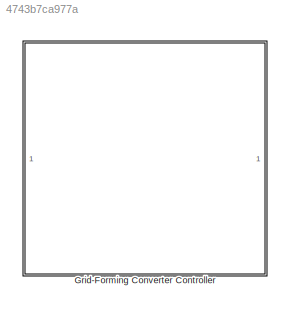
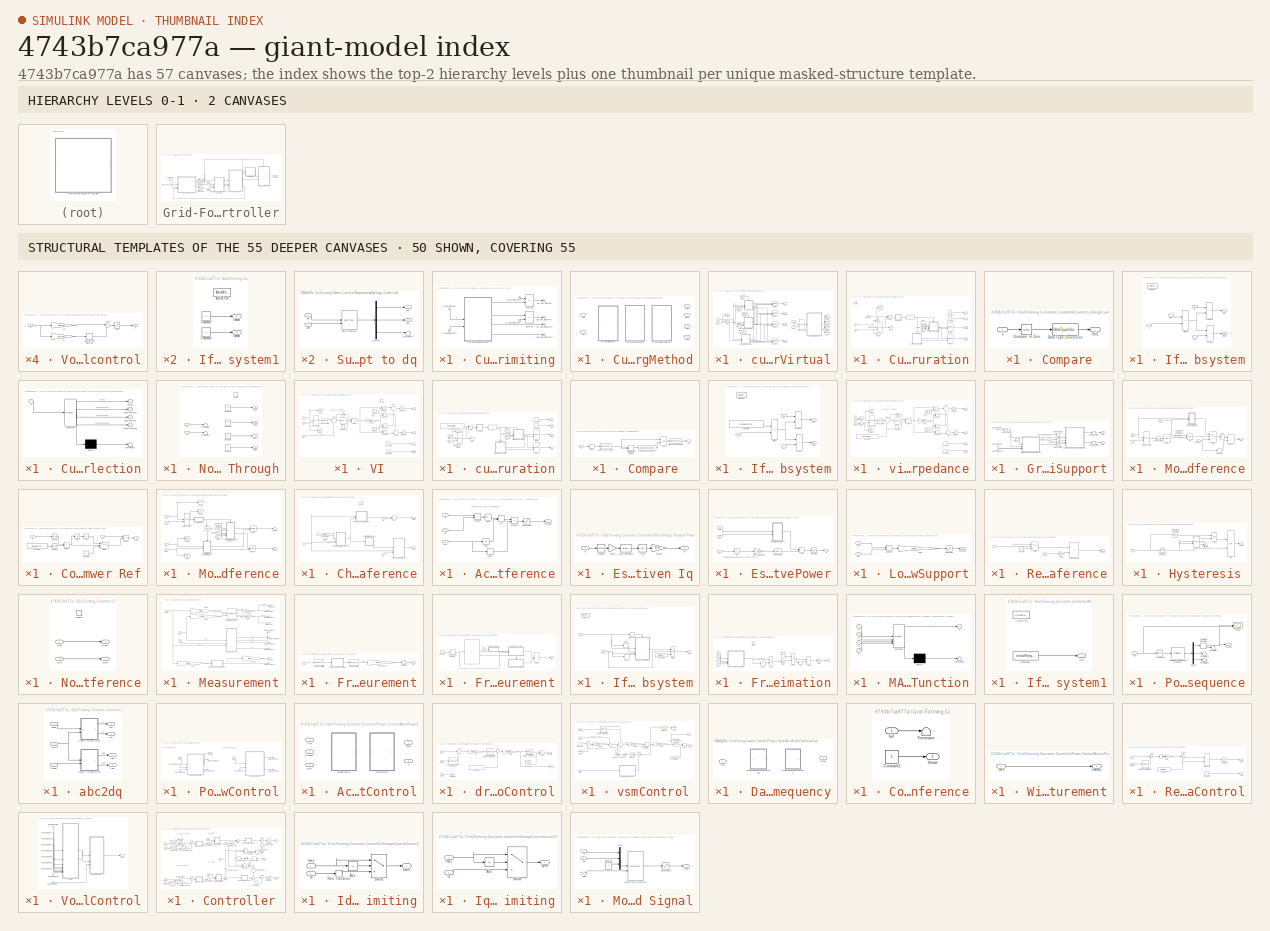
[diagram: thumbnail index - top-2 hierarchy levels (2 canvases) + 50 structural-template representatives of the remaining 55 canvases]
MODEL slx_4743b7ca977a
KIND library
CONFIG AbsTol = auto
CONFIG EnableMultiTasking = off
CONFIG FixedStep = auto
CONFIG MaxStep = auto
CONFIG MinStep = auto
CONFIG RelTol = 1e-3
CONFIG SampleTimeConstraint = Unconstrained
CONFIG SolverName = VariableStepAuto
CONFIG StartTime = 0.0
CONFIG StopTime = 10.0
BLOCK [SubSystem] Grid-Forming Converter Controller
  CopyFcn = set_param(gcbh,"LinkStatus","none");
BLOCK [SubSystem] Grid-Forming Converter Controller/Current Limiting
BLOCK [SubSystem] Grid-Forming Converter Controller/Current Limiting/CurrentLimitingMethod
  LabelModeActiveChoice = virimp
  Variant = on
  VariantControl = Choice
  VariantControlMode = label
BLOCK [Outport] Grid-Forming Converter Controller/Current Limiting/CurrentLimitingMethod/Idmax
  Port = 3
BLOCK [Inport] Grid-Forming Converter Controller/Current Limiting/CurrentLimitingMethod/Igd
BLOCK [Inport] Grid-Forming Converter Controller/Current Limiting/CurrentLimitingMethod/Igq
  Port = 2
BLOCK [Outport] Grid-Forming Converter Controller/Current Limiting/CurrentLimitingMethod/Iqmax
  Port = 4
BLOCK [SubSystem] Grid-Forming Converter Controller/Current Limiting/CurrentLimitingMethod/currentLimitAndVirtual
  VariantControl = both
BLOCK [SubSystem] Grid-Forming Converter Controller/Current Limiting/CurrentLimitingMethod/currentLimitAndVirtual/Current Saturation
BLOCK [SubSystem] Grid-Forming Converter Controller/Current Limiting/CurrentLimitingMethod/currentLimitAndVirtual/Current Saturation/Compare
BLOCK [Reference] Grid-Forming Converter Controller/Current Limiting/CurrentLimitingMethod/currentLimitAndVirtual/Current Saturation/Compare/Compare To Zero  REF=simulink/Logic and Bit
Operations/Compare
To Zero
  SourceBlock = simulink/Logic and Bit\nOperations/Compare\nTo Zero
  SourceType = Compare To Zero
BLOCK [DataTypeConversion] Grid-Forming Converter Controller/Current Limiting/CurrentLimitingMethod/currentLimitAndVirtual/Current Saturation/Compare/Data Type Conversion
  RndMeth = Floor
  SaturateOnIntegerOverflow = off
BLOCK [Outport] Grid-Forming Converter Controller/Current Limiting/CurrentLimitingMethod/currentLimitAndVirtual/Current Saturation/Compare/Out1
BLOCK [Inport] Grid-Forming Converter Controller/Current Limiting/CurrentLimitingMethod/currentLimitAndVirtual/Current Saturation/Compare/u
BLOCK [Constant] Grid-Forming Converter Controller/Current Limiting/CurrentLimitingMethod/currentLimitAndVirtual/Current Saturation/Constant1
  Value = 0
BLOCK [Constant] Grid-Forming Converter Controller/Current Limiting/CurrentLimitingMethod/currentLimitAndVirtual/Current Saturation/Constant2
  Value = 0
BLOCK [EnablePort] Grid-Forming Converter Controller/Current Limiting/CurrentLimitingMethod/currentLimitAndVirtual/Current Saturation/Enable
BLOCK [From] Grid-Forming Converter Controller/Current Limiting/CurrentLimitingMethod/currentLimitAndVirtual/Current Saturation/From
  GotoTag = Isd
BLOCK [From] Grid-Forming Converter Controller/Current Limiting/CurrentLimitingMethod/currentLimitAndVirtual/Current Saturation/From1
  GotoTag = Isq
BLOCK [From] Grid-Forming Converter Controller/Current Limiting/CurrentLimitingMethod/currentLimitAndVirtual/Current Saturation/From2
  GotoTag = Is
BLOCK [From] Grid-Forming Converter Controller/Current Limiting/CurrentLimitingMethod/currentLimitAndVirtual/Current Saturation/From3
  GotoTag = Imax
BLOCK [Goto] Grid-Forming Converter Controller/Current Limiting/CurrentLimitingMethod/currentLimitAndVirtual/Current Saturation/Goto
  GotoTag = Isd
BLOCK [Goto] Grid-Forming Converter Controller/Current Limiting/CurrentLimitingMethod/currentLimitAndVirtual/Current Saturation/Goto1
  GotoTag = Isq
BLOCK [Goto] Grid-Forming Converter Controller/Current Limiting/CurrentLimitingMethod/currentLimitAndVirtual/Current Saturation/Goto2
  GotoTag = Is
BLOCK [Goto] Grid-Forming Converter Controller/Current Limiting/CurrentLimitingMethod/currentLimitAndVirtual/Current Saturation/Goto3
  GotoTag = Imax
BLOCK [Inport] Grid-Forming Converter Controller/Current Limiting/CurrentLimitingMethod/currentLimitAndVirtual/Current Saturation/Id
BLOCK [If] Grid-Forming Converter Controller/Current Limiting/CurrentLimitingMethod/currentLimitAndVirtual/Current Saturation/If
BLOCK [SubSystem] Grid-Forming Converter Controller/Current Limiting/CurrentLimitingMethod/currentLimitAndVirtual/Current Saturation/If Action Subsystem
  TreatAsAtomicUnit = on
BLOCK [ActionPort] Grid-Forming Converter Controller/Current Limiting/CurrentLimitingMethod/currentLimitAndVirtual/Current Saturation/If Action Subsystem/Action Port
BLOCK [Product] Grid-Forming Converter Controller/Current Limiting/CurrentLimitingMethod/currentLimitAndVirtual/Current Saturation/If Action Subsystem/Divide
  Inputs = */
BLOCK [Outport] Grid-Forming Converter Controller/Current Limiting/CurrentLimitingMethod/currentLimitAndVirtual/Current Saturation/If Action Subsystem/Idmax
BLOCK [Outport] Grid-Forming Converter Controller/Current Limiting/CurrentLimitingMethod/currentLimitAndVirtual/Current Saturation/If Action Subsystem/Iqmax
  Port = 2
BLOCK [Inport] Grid-Forming Converter Controller/Current Limiting/CurrentLimitingMethod/currentLimitAndVirtual/Current Saturation/If Action Subsystem/Is
BLOCK [Inport] Grid-Forming Converter Controller/Current Limiting/CurrentLimitingMethod/currentLimitAndVirtual/Current Saturation/If Action Subsystem/Isd
  Port = 2
BLOCK [Inport] Grid-Forming Converter Controller/Current Limiting/CurrentLimitingMethod/currentLimitAndVirtual/Current Saturation/If Action Subsystem/Isq
  Port = 3
BLOCK [Product] Grid-Forming Converter Controller/Current Limiting/CurrentLimitingMethod/currentLimitAndVirtual/Current Saturation/If Action Subsystem/Product
BLOCK [Product] Grid-Forming Converter Controller/Current Limiting/CurrentLimitingMethod/currentLimitAndVirtual/Current Saturation/If Action Subsystem/Product1
BLOCK [Inport] Grid-Forming Converter Controller/Current Limiting/CurrentLimitingMethod/currentLimitAndVirtual/Current Saturation/If Action Subsystem/maxI
  Port = 4
BLOCK [SubSystem] Grid-Forming Converter Controller/Current Limiting/CurrentLimitingMethod/currentLimitAndVirtual/Current Saturation/If Action Subsystem1
  TreatAsAtomicUnit = on
BLOCK [ActionPort] Grid-Forming Converter Controller/Current Limiting/CurrentLimitingMethod/currentLimitAndVirtual/Current Saturation/If Action Subsystem1/Action Port
BLOCK [Constant] Grid-Forming Converter Controller/Current Limiting/CurrentLimitingMethod/currentLimitAndVirtual/Current Saturation/If Action Subsystem1/Constant3
  Value = 0
BLOCK [Constant] Grid-Forming Converter Controller/Current Limiting/CurrentLimitingMethod/currentLimitAndVirtual/Current Saturation/If Action Subsystem1/Constant4
  Value = 0
BLOCK [Outport] Grid-Forming Converter Controller/Current Limiting/CurrentLimitingMethod/currentLimitAndVirtual/Current Saturation/If Action Subsystem1/Idmax
BLOCK [Outport] Grid-Forming Converter Controller/Current Limiting/CurrentLimitingMethod/currentLimitAndVirtual/Current Saturation/If Action Subsystem1/Iqmax
  Port = 2
BLOCK [Inport] Grid-Forming Converter Controller/Current Limiting/CurrentLimitingMethod/currentLimitAndVirtual/Current Saturation/Imaxsat
  Port = 3
BLOCK [Inport] Grid-Forming Converter Controller/Current Limiting/CurrentLimitingMethod/currentLimitAndVirtual/Current Saturation/Iq
  Port = 2
BLOCK [Math] Grid-Forming Converter Controller/Current Limiting/CurrentLimitingMethod/currentLimitAndVirtual/Current Saturation/Math Function
  Operator = hypot
BLOCK [Merge] Grid-Forming Converter Controller/Current Limiting/CurrentLimitingMethod/currentLimitAndVirtual/Current Saturation/Merge
BLOCK [Merge] Grid-Forming Converter Controller/Current Limiting/CurrentLimitingMethod/currentLimitAndVirtual/Current Saturation/Merge1
BLOCK [Sum] Grid-Forming Converter Controller/Current Limiting/CurrentLimitingMethod/currentLimitAndVirtual/Current Saturation/Subtract
  IconShape = rectangular
  Inputs = +-
BLOCK [Outport] Grid-Forming Converter Controller/Current Limiting/CurrentLimitingMethod/currentLimitAndVirtual/Current Saturation/delVd
BLOCK [Outport] Grid-Forming Converter Controller/Current Limiting/CurrentLimitingMethod/currentLimitAndVirtual/Current Saturation/delVq
  Port = 2
BLOCK [Outport] Grid-Forming Converter Controller/Current Limiting/CurrentLimitingMethod/currentLimitAndVirtual/Current Saturation/idmax
  Port = 3
BLOCK [Outport] Grid-Forming Converter Controller/Current Limiting/CurrentLimitingMethod/currentLimitAndVirtual/Current Saturation/iqmax
  Port = 4
BLOCK [SubSystem] Grid-Forming Converter Controller/Current Limiting/CurrentLimitingMethod/currentLimitAndVirtual/CurrentLimitSelection
  ErrorFcn = Stateflow.Translate.translate
  PermitHierarchicalResolution = ExplicitOnly
  SFBlockType = Chart
  TreatAsAtomicUnit = on
BLOCK [Demux] Grid-Forming Converter Controller/Current Limiting/CurrentLimitingMethod/currentLimitAndVirtual/CurrentLimitSelection/ Demux 
  Outputs = 1
BLOCK [S-Function] Grid-Forming Converter Controller/Current Limiting/CurrentLimitingMethod/currentLimitAndVirtual/CurrentLimitSelection/ SFunction 
  EnableBusSupport = off
  FunctionName = sf_sfun
  Parameters = currentSatTime,maxSatCurrentLimit,maxVICurrentLimit,modeTransferTime,powerFreq
  PortCounts = [1 5]
  SFcnIsStateOwnerBlock = off
  SFunctionDeploymentMode = off
  Tag = Stateflow S-Function 3
BLOCK [Terminator] Grid-Forming Converter Controller/Current Limiting/CurrentLimitingMethod/currentLimitAndVirtual/CurrentLimitSelection/ Terminator 
BLOCK [Inport] Grid-Forming Converter Controller/Current Limiting/CurrentLimitingMethod/currentLimitAndVirtual/CurrentLimitSelection/Is
BLOCK [Outport] Grid-Forming Converter Controller/Current Limiting/CurrentLimitingMethod/currentLimitAndVirtual/CurrentLimitSelection/ismax
BLOCK [Outport] Grid-Forming Converter Controller/Current Limiting/CurrentLimitingMethod/currentLimitAndVirtual/CurrentLimitSelection/noCurrentLimit
  Port = 2
BLOCK [Outport] Grid-Forming Converter Controller/Current Limiting/CurrentLimitingMethod/currentLimitAndVirtual/CurrentLimitSelection/satCurrentLimit
  Port = 4
BLOCK [Outport] Grid-Forming Converter Controller/Current Limiting/CurrentLimitingMethod/currentLimitAndVirtual/CurrentLimitSelection/viCurrentLimit
  Port = 3
BLOCK [From] Grid-Forming Converter Controller/Current Limiting/CurrentLimitingMethod/currentLimitAndVirtual/From
  GotoTag = Id
BLOCK [From] Grid-Forming Converter Controller/Current Limiting/CurrentLimitingMethod/currentLimitAndVirtual/From1
  GotoTag = Iq
BLOCK [From] Grid-Forming Converter Controller/Current Limiting/CurrentLimitingMethod/currentLimitAndVirtual/From2
  GotoTag = viCtLt
BLOCK [From] Grid-Forming Converter Controller/Current Limiting/CurrentLimitingMethod/currentLimitAndVirtual/From3
  GotoTag = satCtLt
BLOCK [From] Grid-Forming Converter Controller/Current Limiting/CurrentLimitingMethod/currentLimitAndVirtual/From4
  GotoTag = noCtLt
BLOCK [From] Grid-Forming Converter Controller/Current Limiting/CurrentLimitingMethod/currentLimitAndVirtual/From5
  GotoTag = Imax
BLOCK [From] Grid-Forming Converter Controller/Current Limiting/CurrentLimitingMethod/currentLimitAndVirtual/From6
  GotoTag = Imax
BLOCK [Goto] Grid-Forming Converter Controller/Current Limiting/CurrentLimitingMethod/currentLimitAndVirtual/Goto
  GotoTag = Id
BLOCK [Goto] Grid-Forming Converter Controller/Current Limiting/CurrentLimitingMethod/currentLimitAndVirtual/Goto1
  GotoTag = Iq
BLOCK [Goto] Grid-Forming Converter Controller/Current Limiting/CurrentLimitingMethod/currentLimitAndVirtual/Goto2
  GotoTag = Imax
BLOCK [Goto] Grid-Forming Converter Controller/Current Limiting/CurrentLimitingMethod/currentLimitAndVirtual/Goto3
  GotoTag = noCtLt
BLOCK [Goto] Grid-Forming Converter Controller/Current Limiting/CurrentLimitingMethod/currentLimitAndVirtual/Goto4
  GotoTag = viCtLt
BLOCK [Goto] Grid-Forming Converter Controller/Current Limiting/CurrentLimitingMethod/currentLimitAndVirtual/Goto5
  GotoTag = satCtLt
BLOCK [Outport] Grid-Forming Converter Controller/Current Limiting/CurrentLimitingMethod/currentLimitAndVirtual/Idmax
  Port = 3
BLOCK [Inport] Grid-Forming Converter Controller/Current Limiting/CurrentLimitingMethod/currentLimitAndVirtual/Igd
BLOCK [Inport] Grid-Forming Converter Controller/Current Limiting/CurrentLimitingMethod/currentLimitAndVirtual/Igq
  Port = 2
BLOCK [Outport] Grid-Forming Converter Controller/Current Limiting/CurrentLimitingMethod/currentLimitAndVirtual/Iqmax
  Port = 4
BLOCK [Math] Grid-Forming Converter Controller/Current Limiting/CurrentLimitingMethod/currentLimitAndVirtual/Math Function
  Operator = hypot
BLOCK [Merge] Grid-Forming Converter Controller/Current Limiting/CurrentLimitingMethod/currentLimitAndVirtual/Merge
  Inputs = 3
BLOCK [Merge] Grid-Forming Converter Controller/Current Limiting/CurrentLimitingMethod/currentLimitAndVirtual/Merge1
  Inputs = 3
BLOCK [Merge] Grid-Forming Converter Controller/Current Limiting/CurrentLimitingMethod/currentLimitAndVirtual/Merge2
  Inputs = 3
BLOCK [Merge] Grid-Forming Converter Controller/Current Limiting/CurrentLimitingMethod/currentLimitAndVirtual/Merge3
  Inputs = 3
BLOCK [SubSystem] Grid-Forming Converter Controller/Current Limiting/CurrentLimitingMethod/currentLimitAndVirtual/No Fault Ride Through
BLOCK [Constant] Grid-Forming Converter Controller/Current Limiting/CurrentLimitingMethod/currentLimitAndVirtual/No Fault Ride Through/Constant1
  Value = 0
BLOCK [Constant] Grid-Forming Converter Controller/Current Limiting/CurrentLimitingMethod/currentLimitAndVirtual/No Fault Ride Through/Constant2
  Value = 0
BLOCK [Constant] Grid-Forming Converter Controller/Current Limiting/CurrentLimitingMethod/currentLimitAndVirtual/No Fault Ride Through/Constant3
  Value = 0
BLOCK [Constant] Grid-Forming Converter Controller/Current Limiting/CurrentLimitingMethod/currentLimitAndVirtual/No Fault Ride Through/Constant4
  Value = 0
BLOCK [EnablePort] Grid-Forming Converter Controller/Current Limiting/CurrentLimitingMethod/currentLimitAndVirtual/No Fault Ride Through/Enable
BLOCK [Inport] Grid-Forming Converter Controller/Current Limiting/CurrentLimitingMethod/currentLimitAndVirtual/No Fault Ride Through/Id
BLOCK [Inport] Grid-Forming Converter Controller/Current Limiting/CurrentLimitingMethod/currentLimitAndVirtual/No Fault Ride Through/Iq
  Port = 2
BLOCK [Terminator] Grid-Forming Converter Controller/Current Limiting/CurrentLimitingMethod/currentLimitAndVirtual/No Fault Ride Through/Terminator
BLOCK [Terminator] Grid-Forming Converter Controller/Current Limiting/CurrentLimitingMethod/currentLimitAndVirtual/No Fault Ride Through/Terminator1
BLOCK [Outport] Grid-Forming Converter Controller/Current Limiting/CurrentLimitingMethod/currentLimitAndVirtual/No Fault Ride Through/delVd
BLOCK [Outport] Grid-Forming Converter Controller/Current Limiting/CurrentLimitingMethod/currentLimitAndVirtual/No Fault Ride Through/delVq
  Port = 2
BLOCK [Outport] Grid-Forming Converter Controller/Current Limiting/CurrentLimitingMethod/currentLimitAndVirtual/No Fault Ride Through/idmax
  Port = 3
BLOCK [Outport] Grid-Forming Converter Controller/Current Limiting/CurrentLimitingMethod/currentLimitAndVirtual/No Fault Ride Through/iqmax
  Port = 4
BLOCK [SubSystem] Grid-Forming Converter Controller/Current Limiting/CurrentLimitingMethod/currentLimitAndVirtual/VI
BLOCK [Constant] Grid-Forming Converter Controller/Current Limiting/CurrentLimitingMethod/currentLimitAndVirtual/VI/Constant1
  Value = 0
BLOCK [Constant] Grid-Forming Converter Controller/Current Limiting/CurrentLimitingMethod/currentLimitAndVirtual/VI/Constant2
  Value = 0
BLOCK [Constant] Grid-Forming Converter Controller/Current Limiting/CurrentLimitingMethod/currentLimitAndVirtual/VI/Constant3
  Value = 0
BLOCK [EnablePort] Grid-Forming Converter Controller/Current Limiting/CurrentLimitingMethod/currentLimitAndVirtual/VI/Enable
BLOCK [From] Grid-Forming Converter Controller/Current Limiting/CurrentLimitingMethod/currentLimitAndVirtual/VI/From10
  GotoTag = Igd
BLOCK [From] Grid-Forming Converter Controller/Current Limiting/CurrentLimitingMethod/currentLimitAndVirtual/VI/From13
  GotoTag = Igq
BLOCK [Gain] Grid-Forming Converter Controller/Current Limiting/CurrentLimitingMethod/currentLimitAndVirtual/VI/Gain
  Gain = ctLimitVirtualImp
BLOCK [Gain] Grid-Forming Converter Controller/Current Limiting/CurrentLimitingMethod/currentLimitAndVirtual/VI/Gain1
  Gain = ctLimitXbyR
BLOCK [Goto] Grid-Forming Converter Controller/Current Limiting/CurrentLimitingMethod/currentLimitAndVirtual/VI/Goto
  GotoTag = Igd
BLOCK [Goto] Grid-Forming Converter Controller/Current Limiting/CurrentLimitingMethod/currentLimitAndVirtual/VI/Goto7
  GotoTag = Igq
BLOCK [Inport] Grid-Forming Converter Controller/Current Limiting/CurrentLimitingMethod/currentLimitAndVirtual/VI/Id
BLOCK [Inport] Grid-Forming Converter Controller/Current Limiting/CurrentLimitingMethod/currentLimitAndVirtual/VI/Imax
  Port = 3
BLOCK [Inport] Grid-Forming Converter Controller/Current Limiting/CurrentLimitingMethod/currentLimitAndVirtual/VI/Iq
  Port = 2
BLOCK [Reference] Grid-Forming Converter Controller/Current Limiting/CurrentLimitingMethod/currentLimitAndVirtual/VI/Low-Pass Filter  REF=eeGeneralControl/Low-Pass Filter
(Discrete or Continuous)
  LibrarySourceBlock = ee_sl_lib/General Control/Low-Pass Filter\n(Discrete or Continuous)
  SourceBlock = eeGeneralControl/Low-Pass Filter\n(Discrete or Continuous)
  SourceType = Low-Pass Filter (Discrete or Continuous)
BLOCK [Math] Grid-Forming Converter Controller/Current Limiting/CurrentLimitingMethod/currentLimitAndVirtual/VI/Math Function
  Operator = hypot
BLOCK [Product] Grid-Forming Converter Controller/Current Limiting/CurrentLimitingMethod/currentLimitAndVirtual/VI/Product
BLOCK [Product] Grid-Forming Converter Controller/Current Limiting/CurrentLimitingMethod/currentLimitAndVirtual/VI/Product1
BLOCK [Product] Grid-Forming Converter Controller/Current Limiting/CurrentLimitingMethod/currentLimitAndVirtual/VI/Product2
BLOCK [Product] Grid-Forming Converter Controller/Current Limiting/CurrentLimitingMethod/currentLimitAndVirtual/VI/Product3
BLOCK [Relay] Grid-Forming Converter Controller/Current Limiting/CurrentLimitingMethod/currentLimitAndVirtual/VI/Relay1
  OffSwitchValue = -0.1
  OnSwitchValue = 0.01
BLOCK [Saturate] Grid-Forming Converter Controller/Current Limiting/CurrentLimitingMethod/currentLimitAndVirtual/VI/Saturation
  LowerLimit = -1
  UpperLimit = 1
BLOCK [Saturate] Grid-Forming Converter Controller/Current Limiting/CurrentLimitingMethod/currentLimitAndVirtual/VI/Saturation1
  LowerLimit = -1
  UpperLimit = 1
BLOCK [Sum] Grid-Forming Converter Controller/Current Limiting/CurrentLimitingMethod/currentLimitAndVirtual/VI/Sum
  Inputs = |+-
BLOCK [Sum] Grid-Forming Converter Controller/Current Limiting/CurrentLimitingMethod/currentLimitAndVirtual/VI/Sum1
  Inputs = |+-
BLOCK [Sum] Grid-Forming Converter Controller/Current Limiting/CurrentLimitingMethod/currentLimitAndVirtual/VI/Sum2
  Inputs = ++|
BLOCK [Switch] Grid-Forming Converter Controller/Current Limiting/CurrentLimitingMethod/currentLimitAndVirtual/VI/Switch
  Criteria = u2 > Threshold
  InputSameDT = off
  SaturateOnIntegerOverflow = off
BLOCK [Outport] Grid-Forming Converter Controller/Current Limiting/CurrentLimitingMethod/currentLimitAndVirtual/VI/delVd
BLOCK [Outport] Grid-Forming Converter Controller/Current Limiting/CurrentLimitingMethod/currentLimitAndVirtual/VI/delVq
  Port = 2
BLOCK [Outport] Grid-Forming Converter Controller/Current Limiting/CurrentLimitingMethod/currentLimitAndVirtual/VI/idmax
  Port = 3
BLOCK [Outport] Grid-Forming Converter Controller/Current Limiting/CurrentLimitingMethod/currentLimitAndVirtual/VI/iqmax
  Port = 4
BLOCK [Outport] Grid-Forming Converter Controller/Current Limiting/CurrentLimitingMethod/currentLimitAndVirtual/delVd
BLOCK [Outport] Grid-Forming Converter Controller/Current Limiting/CurrentLimitingMethod/currentLimitAndVirtual/delVq
  Port = 2
BLOCK [SubSystem] Grid-Forming Converter Controller/Current Limiting/CurrentLimitingMethod/currentSaturation
  VariantControl = ctSat
BLOCK [SubSystem] Grid-Forming Converter Controller/Current Limiting/CurrentLimitingMethod/currentSaturation/Compare
BLOCK [Logic] Grid-Forming Converter Controller/Current Limiting/CurrentLimitingMethod/currentSaturation/Compare/AND
  AllPortsSameDT = off
  IconShape = distinctive
  OutDataTypeStr = boolean
BLOCK [Reference] Grid-Forming Converter Controller/Current Limiting/CurrentLimitingMethod/currentSaturation/Compare/Compare To Constant  REF=simulink/Logic and Bit
Operations/Compare
To Constant
  SourceBlock = simulink/Logic and Bit\nOperations/Compare\nTo Constant
  SourceType = Compare To Constant
BLOCK [DataTypeConversion] Grid-Forming Converter Controller/Current Limiting/CurrentLimitingMethod/currentSaturation/Compare/Data Type Conversion
  RndMeth = Floor
  SaturateOnIntegerOverflow = off
BLOCK [DataTypeConversion] Grid-Forming Converter Controller/Current Limiting/CurrentLimitingMethod/currentSaturation/Compare/Data Type Conversion1
  RndMeth = Floor
  SaturateOnIntegerOverflow = off
BLOCK [DiscreteIntegrator] Grid-Forming Converter Controller/Current Limiting/CurrentLimitingMethod/currentSaturation/Compare/Discrete-Time Integrator
  ExternalReset = falling
  ICPrevOutput = DiscIntNeverNeededParam
  ICPrevScaledInput = DiscIntNeverNeededParam
  InitialConditionSetting = Auto
  IntegratorMethod = Integration: Backward Euler
  LimitOutput = on
  LowerSaturationLimit = 0
  SampleTime = currentControlTs
  UpperSaturationLimit = ctLimitDelayTime*2
BLOCK [Outport] Grid-Forming Converter Controller/Current Limiting/CurrentLimitingMethod/currentSaturation/Compare/Out1
BLOCK [Relay] Grid-Forming Converter Controller/Current Limiting/CurrentLimitingMethod/currentSaturation/Compare/Relay
  OffSwitchValue = -1*0.02*maxSatCurrentLimit
  OnSwitchValue = 0.005*maxSatCurrentLimit
BLOCK [Inport] Grid-Forming Converter Controller/Current Limiting/CurrentLimitingMethod/currentSaturation/Compare/u
BLOCK [Constant] Grid-Forming Converter Controller/Current Limiting/CurrentLimitingMethod/currentSaturation/Constant
  Value = maxSatCurrentLimit
BLOCK [Constant] Grid-Forming Converter Controller/Current Limiting/CurrentLimitingMethod/currentSaturation/Constant1
  Value = 0
BLOCK [Constant] Grid-Forming Converter Controller/Current Limiting/CurrentLimitingMethod/currentSaturation/Constant2
  Value = 0
BLOCK [From] Grid-Forming Converter Controller/Current Limiting/CurrentLimitingMethod/currentSaturation/From
  GotoTag = Isd
BLOCK [From] Grid-Forming Converter Controller/Current Limiting/CurrentLimitingMethod/currentSaturation/From1
  GotoTag = Isq
BLOCK [From] Grid-Forming Converter Controller/Current Limiting/CurrentLimitingMethod/currentSaturation/From2
  GotoTag = Is
BLOCK [Goto] Grid-Forming Converter Controller/Current Limiting/CurrentLimitingMethod/currentSaturation/Goto
  GotoTag = Isd
BLOCK [Goto] Grid-Forming Converter Controller/Current Limiting/CurrentLimitingMethod/currentSaturation/Goto1
  GotoTag = Isq
BLOCK [Goto] Grid-Forming Converter Controller/Current Limiting/CurrentLimitingMethod/currentSaturation/Goto2
  GotoTag = Is
BLOCK [Outport] Grid-Forming Converter Controller/Current Limiting/CurrentLimitingMethod/currentSaturation/Idmax
  Port = 3
BLOCK [If] Grid-Forming Converter Controller/Current Limiting/CurrentLimitingMethod/currentSaturation/If
BLOCK [SubSystem] Grid-Forming Converter Controller/Current Limiting/CurrentLimitingMethod/currentSaturation/If Action Subsystem
  TreatAsAtomicUnit = on
BLOCK [ActionPort] Grid-Forming Converter Controller/Current Limiting/CurrentLimitingMethod/currentSaturation/If Action Subsystem/Action Port
BLOCK [Constant] Grid-Forming Converter Controller/Current Limiting/CurrentLimitingMethod/currentSaturation/If Action Subsystem/Constant
  Value = maxSatCurrentLimit
BLOCK [Product] Grid-Forming Converter Controller/Current Limiting/CurrentLimitingMethod/currentSaturation/If Action Subsystem/Divide
  Inputs = */
BLOCK [Outport] Grid-Forming Converter Controller/Current Limiting/CurrentLimitingMethod/currentSaturation/If Action Subsystem/Idmax
BLOCK [Outport] Grid-Forming Converter Controller/Current Limiting/CurrentLimitingMethod/currentSaturation/If Action Subsystem/Iqmax
  Port = 2
BLOCK [Inport] Grid-Forming Converter Controller/Current Limiting/CurrentLimitingMethod/currentSaturation/If Action Subsystem/Is
BLOCK [Inport] Grid-Forming Converter Controller/Current Limiting/CurrentLimitingMethod/currentSaturation/If Action Subsystem/Isd
  Port = 2
BLOCK [Inport] Grid-Forming Converter Controller/Current Limiting/CurrentLimitingMethod/currentSaturation/If Action Subsystem/Isq
  Port = 3
BLOCK [Product] Grid-Forming Converter Controller/Current Limiting/CurrentLimitingMethod/currentSaturation/If Action Subsystem/Product
BLOCK [Product] Grid-Forming Converter Controller/Current Limiting/CurrentLimitingMethod/currentSaturation/If Action Subsystem/Product1
BLOCK [SubSystem] Grid-Forming Converter Controller/Current Limiting/CurrentLimitingMethod/currentSaturation/If Action Subsystem1
  TreatAsAtomicUnit = on
BLOCK [ActionPort] Grid-Forming Converter Controller/Current Limiting/CurrentLimitingMethod/currentSaturation/If Action Subsystem1/Action Port
BLOCK [Constant] Grid-Forming Converter Controller/Current Limiting/CurrentLimitingMethod/currentSaturation/If Action Subsystem1/Constant3
  Value = 0
BLOCK [Constant] Grid-Forming Converter Controller/Current Limiting/CurrentLimitingMethod/currentSaturation/If Action Subsystem1/Constant4
  Value = 0
BLOCK [Outport] Grid-Forming Converter Controller/Current Limiting/CurrentLimitingMethod/currentSaturation/If Action Subsystem1/Idmax
BLOCK [Outport] Grid-Forming Converter Controller/Current Limiting/CurrentLimitingMethod/currentSaturation/If Action Subsystem1/Iqmax
  Port = 2
BLOCK [Inport] Grid-Forming Converter Controller/Current Limiting/CurrentLimitingMethod/currentSaturation/Igd
BLOCK [Inport] Grid-Forming Converter Controller/Current Limiting/CurrentLimitingMethod/currentSaturation/Igq
  Port = 2
BLOCK [Outport] Grid-Forming Converter Controller/Current Limiting/CurrentLimitingMethod/currentSaturation/Iqmax
  Port = 4
BLOCK [Math] Grid-Forming Converter Controller/Current Limiting/CurrentLimitingMethod/currentSaturation/Math Function
  Operator = hypot
BLOCK [Merge] Grid-Forming Converter Controller/Current Limiting/CurrentLimitingMethod/currentSaturation/Merge
BLOCK [Merge] Grid-Forming Converter Controller/Current Limiting/CurrentLimitingMethod/currentSaturation/Merge1
BLOCK [Sum] Grid-Forming Converter Controller/Current Limiting/CurrentLimitingMethod/currentSaturation/Subtract
  IconShape = rectangular
  Inputs = -+
BLOCK [Outport] Grid-Forming Converter Controller/Current Limiting/CurrentLimitingMethod/currentSaturation/delVd
BLOCK [Outport] Grid-Forming Converter Controller/Current Limiting/CurrentLimitingMethod/currentSaturation/delVq
  Port = 2
BLOCK [Outport] Grid-Forming Converter Controller/Current Limiting/CurrentLimitingMethod/delVd
BLOCK [Outport] Grid-Forming Converter Controller/Current Limiting/CurrentLimitingMethod/delVq
  Port = 2
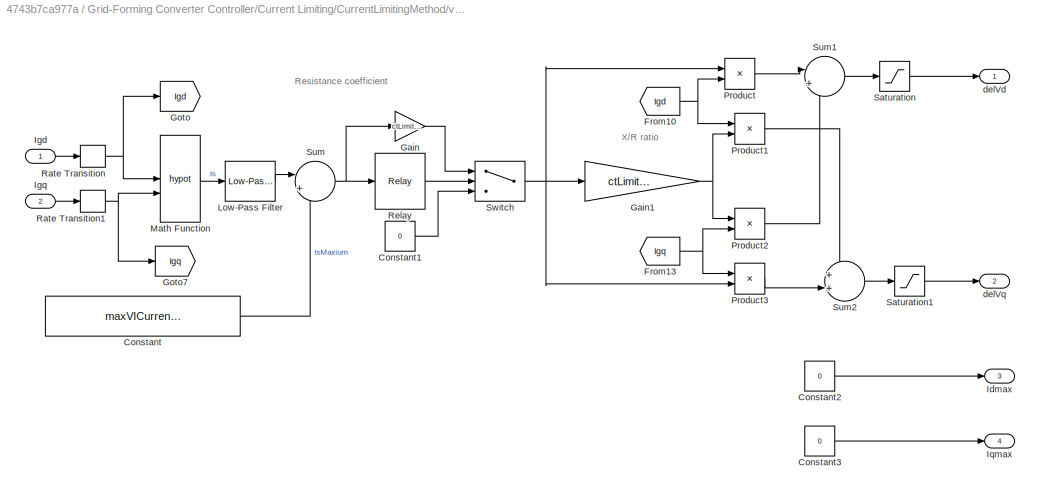
BLOCK [SubSystem] Grid-Forming Converter Controller/Current Limiting/CurrentLimitingMethod/virtualImpedance
  VariantControl = virimp
BLOCK [Constant] Grid-Forming Converter Controller/Current Limiting/CurrentLimitingMethod/virtualImpedance/Constant
  Value = maxVICurrentLimit
BLOCK [Constant] Grid-Forming Converter Controller/Current Limiting/CurrentLimitingMethod/virtualImpedance/Constant1
  Value = 0
BLOCK [Constant] Grid-Forming Converter Controller/Current Limiting/CurrentLimitingMethod/virtualImpedance/Constant2
  Value = 0
BLOCK [Constant] Grid-Forming Converter Controller/Current Limiting/CurrentLimitingMethod/virtualImpedance/Constant3
  Value = 0
BLOCK [From] Grid-Forming Converter Controller/Current Limiting/CurrentLimitingMethod/virtualImpedance/From10
  GotoTag = Igd
BLOCK [From] Grid-Forming Converter Controller/Current Limiting/CurrentLimitingMethod/virtualImpedance/From13
  GotoTag = Igq
BLOCK [Gain] Grid-Forming Converter Controller/Current Limiting/CurrentLimitingMethod/virtualImpedance/Gain
  Gain = ctLimitVirtualImp
BLOCK [Gain] Grid-Forming Converter Controller/Current Limiting/CurrentLimitingMethod/virtualImpedance/Gain1
  Gain = ctLimitXbyR
BLOCK [Goto] Grid-Forming Converter Controller/Current Limiting/CurrentLimitingMethod/virtualImpedance/Goto
  GotoTag = Igd
BLOCK [Goto] Grid-Forming Converter Controller/Current Limiting/CurrentLimitingMethod/virtualImpedance/Goto7
  GotoTag = Igq
BLOCK [Outport] Grid-Forming Converter Controller/Current Limiting/CurrentLimitingMethod/virtualImpedance/Idmax
  Port = 3
BLOCK [Inport] Grid-Forming Converter Controller/Current Limiting/CurrentLimitingMethod/virtualImpedance/Igd
BLOCK [Inport] Grid-Forming Converter Controller/Current Limiting/CurrentLimitingMethod/virtualImpedance/Igq
  Port = 2
BLOCK [Outport] Grid-Forming Converter Controller/Current Limiting/CurrentLimitingMethod/virtualImpedance/Iqmax
  Port = 4
BLOCK [Reference] Grid-Forming Converter Controller/Current Limiting/CurrentLimitingMethod/virtualImpedance/Low-Pass Filter  REF=eeGeneralControl/Low-Pass Filter
(Discrete or Continuous)
  LibrarySourceBlock = ee_sl_lib/General Control/Low-Pass Filter\n(Discrete or Continuous)
  SourceBlock = eeGeneralControl/Low-Pass Filter\n(Discrete or Continuous)
  SourceType = Low-Pass Filter (Discrete or Continuous)
BLOCK [Math] Grid-Forming Converter Controller/Current Limiting/CurrentLimitingMethod/virtualImpedance/Math Function
  Operator = hypot
BLOCK [Product] Grid-Forming Converter Controller/Current Limiting/CurrentLimitingMethod/virtualImpedance/Product
BLOCK [Product] Grid-Forming Converter Controller/Current Limiting/CurrentLimitingMethod/virtualImpedance/Product1
BLOCK [Product] Grid-Forming Converter Controller/Current Limiting/CurrentLimitingMethod/virtualImpedance/Product2
BLOCK [Product] Grid-Forming Converter Controller/Current Limiting/CurrentLimitingMethod/virtualImpedance/Product3
BLOCK [RateTransition] Grid-Forming Converter Controller/Current Limiting/CurrentLimitingMethod/virtualImpedance/Rate Transition
BLOCK [RateTransition] Grid-Forming Converter Controller/Current Limiting/CurrentLimitingMethod/virtualImpedance/Rate Transition1
BLOCK [Relay] Grid-Forming Converter Controller/Current Limiting/CurrentLimitingMethod/virtualImpedance/Relay
  OffSwitchValue = -0.05
  OnSwitchValue = 0.01
BLOCK [Saturate] Grid-Forming Converter Controller/Current Limiting/CurrentLimitingMethod/virtualImpedance/Saturation
  LowerLimit = -1
  UpperLimit = 1
BLOCK [Saturate] Grid-Forming Converter Controller/Current Limiting/CurrentLimitingMethod/virtualImpedance/Saturation1
  LowerLimit = -1
  UpperLimit = 1
BLOCK [Sum] Grid-Forming Converter Controller/Current Limiting/CurrentLimitingMethod/virtualImpedance/Sum
  Inputs = |+-
BLOCK [Sum] Grid-Forming Converter Controller/Current Limiting/CurrentLimitingMethod/virtualImpedance/Sum1
  Inputs = |+-
BLOCK [Sum] Grid-Forming Converter Controller/Current Limiting/CurrentLimitingMethod/virtualImpedance/Sum2
  Inputs = ++|
BLOCK [Switch] Grid-Forming Converter Controller/Current Limiting/CurrentLimitingMethod/virtualImpedance/Switch
  Criteria = u2 > Threshold
  InputSameDT = off
  SaturateOnIntegerOverflow = off
BLOCK [Outport] Grid-Forming Converter Controller/Current Limiting/CurrentLimitingMethod/virtualImpedance/delVd
BLOCK [Outport] Grid-Forming Converter Controller/Current Limiting/CurrentLimitingMethod/virtualImpedance/delVq
  Port = 2
BLOCK [Inport] Grid-Forming Converter Controller/Current Limiting/In Bus Element
BLOCK [Inport] Grid-Forming Converter Controller/Current Limiting/In Bus Element1
BLOCK [Inport] Grid-Forming Converter Controller/Current Limiting/In Bus Element2
  Port = 2
BLOCK [Inport] Grid-Forming Converter Controller/Current Limiting/In Bus Element4
  Port = 2
BLOCK [Outport] Grid-Forming Converter Controller/Current Limiting/Out Bus Element
BLOCK [Outport] Grid-Forming Converter Controller/Current Limiting/Out Bus Element1
BLOCK [Outport] Grid-Forming Converter Controller/Current Limiting/Out Bus Element2
BLOCK [Outport] Grid-Forming Converter Controller/Current Limiting/Out Bus Element3
BLOCK [Sum] Grid-Forming Converter Controller/Current Limiting/Subtract
  IconShape = rectangular
  Inputs = +-
BLOCK [Sum] Grid-Forming Converter Controller/Current Limiting/Subtract1
  IconShape = rectangular
  Inputs = -+
BLOCK [Outport] Grid-Forming Converter Controller/FmeasHz
  Port = 3
BLOCK [SubSystem] Grid-Forming Converter Controller/Grid Voltage Reactive Power Support
BLOCK [Inport] Grid-Forming Converter Controller/Grid Voltage Reactive Power Support/In Bus Element1
BLOCK [Inport] Grid-Forming Converter Controller/Grid Voltage Reactive Power Support/In Bus Element2
BLOCK [Inport] Grid-Forming Converter Controller/Grid Voltage Reactive Power Support/In Bus Element3
BLOCK [Inport] Grid-Forming Converter Controller/Grid Voltage Reactive Power Support/In Bus Element4
BLOCK [SubSystem] Grid-Forming Converter Controller/Grid Voltage Reactive Power Support/Modifying Active Power Reference
BLOCK [Logic] Grid-Forming Converter Controller/Grid Voltage Reactive Power Support/Modifying Active Power Reference/AND
  AllPortsSameDT = off
  IconShape = distinctive
  OutDataTypeStr = boolean
BLOCK [Abs] Grid-Forming Converter Controller/Grid Voltage Reactive Power Support/Modifying Active Power Reference/Abs
  SaturateOnIntegerOverflow = off
BLOCK [Reference] Grid-Forming Converter Controller/Grid Voltage Reactive Power Support/Modifying Active Power Reference/Compare To Constant  REF=simulink/Logic and Bit
Operations/Compare
To Constant
  SourceBlock = simulink/Logic and Bit\nOperations/Compare\nTo Constant
  SourceType = Compare To Constant
BLOCK [SubSystem] Grid-Forming Converter Controller/Grid Voltage Reactive Power Support/Modifying Active Power Reference/Computing New Active Power Ref
BLOCK [Abs] Grid-Forming Converter Controller/Grid Voltage Reactive Power Support/Modifying Active Power Reference/Computing New Active Power Ref/Abs
  SaturateOnIntegerOverflow = off
BLOCK [Constant] Grid-Forming Converter Controller/Grid Voltage Reactive Power Support/Modifying Active Power Reference/Computing New Active Power Ref/Constant
  Value = maxVICurrentLimit*0.96
BLOCK [Constant] Grid-Forming Converter Controller/Grid Voltage Reactive Power Support/Modifying Active Power Reference/Computing New Active Power Ref/Constant1
  Value = 0
BLOCK [Inport] Grid-Forming Converter Controller/Grid Voltage Reactive Power Support/Modifying Active Power Reference/Computing New Active Power Ref/Iq
BLOCK [Outport] Grid-Forming Converter Controller/Grid Voltage Reactive Power Support/Modifying Active Power Reference/Computing New Active Power Ref/Pref
BLOCK [Product] Grid-Forming Converter Controller/Grid Voltage Reactive Power Support/Modifying Active Power Reference/Computing New Active Power Ref/Product
BLOCK [Sqrt] Grid-Forming Converter Controller/Grid Voltage Reactive Power Support/Modifying Active Power Reference/Computing New Active Power Ref/Sqrt
BLOCK [Math] Grid-Forming Converter Controller/Grid Voltage Reactive Power Support/Modifying Active Power Reference/Computing New Active Power Ref/Square
  Operator = square
BLOCK [Math] Grid-Forming Converter Controller/Grid Voltage Reactive Power Support/Modifying Active Power Reference/Computing New Active Power Ref/Square1
  Operator = square
BLOCK [Sum] Grid-Forming Converter Controller/Grid Voltage Reactive Power Support/Modifying Active Power Reference/Computing New Active Power Ref/Subtract
  IconShape = rectangular
  Inputs = -+
BLOCK [Switch] Grid-Forming Converter Controller/Grid Voltage Reactive Power Support/Modifying Active Power Reference/Computing New Active Power Ref/Switch
  Criteria = u2 > Threshold
  InputSameDT = off
  SaturateOnIntegerOverflow = off
  Threshold = 1.15
BLOCK [Inport] Grid-Forming Converter Controller/Grid Voltage Reactive Power Support/Modifying Active Power Reference/Computing New Active Power Ref/Vd
  Port = 2
BLOCK [Inport] Grid-Forming Converter Controller/Grid Voltage Reactive Power Support/Modifying Active Power Reference/Igd
  Port = 3
BLOCK [Inport] Grid-Forming Converter Controller/Grid Voltage Reactive Power Support/Modifying Active Power Reference/Igq
  Port = 4
BLOCK [Math] Grid-Forming Converter Controller/Grid Voltage Reactive Power Support/Modifying Active Power Reference/Math Function1
  Operator = hypot
BLOCK [Signum] Grid-Forming Converter Controller/Grid Voltage Reactive Power Support/Modifying Active Power Reference/Power Sign
BLOCK [Outport] Grid-Forming Converter Controller/Grid Voltage Reactive Power Support/Modifying Active Power Reference/Pref
BLOCK [Inport] Grid-Forming Converter Controller/Grid Voltage Reactive Power Support/Modifying Active Power Reference/PrefInput
BLOCK [Product] Grid-Forming Converter Controller/Grid Voltage Reactive Power Support/Modifying Active Power Reference/Product
BLOCK [RateTransition] Grid-Forming Converter Controller/Grid Voltage Reactive Power Support/Modifying Active Power Reference/Rate Transition1
BLOCK [Relay] Grid-Forming Converter Controller/Grid Voltage Reactive Power Support/Modifying Active Power Reference/Relay
  OffSwitchValue = 1
  OnSwitchValue = maxVICurrentLimit*0.96
BLOCK [Switch] Grid-Forming Converter Controller/Grid Voltage Reactive Power Support/Modifying Active Power Reference/Switch
  Criteria = u2 > Threshold
  InputSameDT = off
  SaturateOnIntegerOverflow = off
BLOCK [Inport] Grid-Forming Converter Controller/Grid Voltage Reactive Power Support/Modifying Active Power Reference/Vd
  Port = 2
BLOCK [SubSystem] Grid-Forming Converter Controller/Grid Voltage Reactive Power Support/Modifying Reactive Power Reference
BLOCK [SubSystem] Grid-Forming Converter Controller/Grid Voltage Reactive Power Support/Modifying Reactive Power Reference/Changing the Power Reference
BLOCK [SubSystem] Grid-Forming Converter Controller/Grid Voltage Reactive Power Support/Modifying Reactive Power Reference/Changing the Power Reference/ActivePowerReference
BLOCK [Abs] Grid-Forming Converter Controller/Grid Voltage Reactive Power Support/Modifying Reactive Power Reference/Changing the Power Reference/ActivePowerReference/Abs1
  SaturateOnIntegerOverflow = off
BLOCK [Abs] Grid-Forming Converter Controller/Grid Voltage Reactive Power Support/Modifying Reactive Power Reference/Changing the Power Reference/ActivePowerReference/Abs2
  SaturateOnIntegerOverflow = off
BLOCK [Inport] Grid-Forming Converter Controller/Grid Voltage Reactive Power Support/Modifying Reactive Power Reference/Changing the Power Reference/ActivePowerReference/Id
BLOCK [MinMax] Grid-Forming Converter Controller/Grid Voltage Reactive Power Support/Modifying Reactive Power Reference/Changing the Power Reference/ActivePowerReference/Min
  Inputs = 2
BLOCK [Inport] Grid-Forming Converter Controller/Grid Voltage Reactive Power Support/Modifying Reactive Power Reference/Changing the Power Reference/ActivePowerReference/Pref
  Port = 3
BLOCK [Outport] Grid-Forming Converter Controller/Grid Voltage Reactive Power Support/Modifying Reactive Power Reference/Changing the Power Reference/ActivePowerReference/PrefNew
BLOCK [Product] Grid-Forming Converter Controller/Grid Voltage Reactive Power Support/Modifying Reactive Power Reference/Changing the Power Reference/ActivePowerReference/Product
BLOCK [Product] Grid-Forming Converter Controller/Grid Voltage Reactive Power Support/Modifying Reactive Power Reference/Changing the Power Reference/ActivePowerReference/Product2
BLOCK [Saturate] Grid-Forming Converter Controller/Grid Voltage Reactive Power Support/Modifying Reactive Power Reference/Changing the Power Reference/ActivePowerReference/Saturation
  LowerLimit = -1
  UpperLimit = 1
BLOCK [Signum] Grid-Forming Converter Controller/Grid Voltage Reactive Power Support/Modifying Reactive Power Reference/Changing the Power Reference/ActivePowerReference/Sign
BLOCK [Inport] Grid-Forming Converter Controller/Grid Voltage Reactive Power Support/Modifying Reactive Power Reference/Changing the Power Reference/ActivePowerReference/Vd
  Port = 2
BLOCK [Constant] Grid-Forming Converter Controller/Grid Voltage Reactive Power Support/Modifying Reactive Power Reference/Changing the Power Reference/Constant1
  Value = voltreference*0.96
BLOCK [EnablePort] Grid-Forming Converter Controller/Grid Voltage Reactive Power Support/Modifying Reactive Power Reference/Changing the Power Reference/Enable
BLOCK [SubSystem] Grid-Forming Converter Controller/Grid Voltage Reactive Power Support/Modifying Reactive Power Reference/Changing the Power Reference/Estimate Id for Given Iq
BLOCK [Bias] Grid-Forming Converter Controller/Grid Voltage Reactive Power Support/Modifying Reactive Power Reference/Changing the Power Reference/Estimate Id for Given Iq/Add Constant1
  Bias = 1
  SaturateOnIntegerOverflow = off
BLOCK [Gain] Grid-Forming Converter Controller/Grid Voltage Reactive Power Support/Modifying Reactive Power Reference/Changing the Power Reference/Estimate Id for Given Iq/Gain
  Gain = -1
BLOCK [Gain] Grid-Forming Converter Controller/Grid Voltage Reactive Power Support/Modifying Reactive Power Reference/Changing the Power Reference/Estimate Id for Given Iq/Gain3
  Gain = 0.9
BLOCK [Outport] Grid-Forming Converter Controller/Grid Voltage Reactive Power Support/Modifying Reactive Power Reference/Changing the Power Reference/Estimate Id for Given Iq/Id
BLOCK [Inport] Grid-Forming Converter Controller/Grid Voltage Reactive Power Support/Modifying Reactive Power Reference/Changing the Power Reference/Estimate Id for Given Iq/Iq
BLOCK [Sqrt] Grid-Forming Converter Controller/Grid Voltage Reactive Power Support/Modifying Reactive Power Reference/Changing the Power Reference/Estimate Id for Given Iq/Sqrt
BLOCK [Math] Grid-Forming Converter Controller/Grid Voltage Reactive Power Support/Modifying Reactive Power Reference/Changing the Power Reference/Estimate Id for Given Iq/Square
  Operator = square
BLOCK [SubSystem] Grid-Forming Converter Controller/Grid Voltage Reactive Power Support/Modifying Reactive Power Reference/Changing the Power Reference/EstimateIqForReactivePower
BLOCK [Abs] Grid-Forming Converter Controller/Grid Voltage Reactive Power Support/Modifying Reactive Power Reference/Changing the Power Reference/EstimateIqForReactivePower/Abs
  SaturateOnIntegerOverflow = off
BLOCK [Sum] Grid-Forming Converter Controller/Grid Voltage Reactive Power Support/Modifying Reactive Power Reference/Changing the Power Reference/EstimateIqForReactivePower/Add
  IconShape = rectangular
BLOCK [Bias] Grid-Forming Converter Controller/Grid Voltage Reactive Power Support/Modifying Reactive Power Reference/Changing the Power Reference/EstimateIqForReactivePower/Add Constant
  Bias = 1
  SaturateOnIntegerOverflow = off
BLOCK [Gain] Grid-Forming Converter Controller/Grid Voltage Reactive Power Support/Modifying Reactive Power Reference/Changing the Power Reference/EstimateIqForReactivePower/GC0137 line slope
  Gain = -1.4578
BLOCK [Outport] Grid-Forming Converter Controller/Grid Voltage Reactive Power Support/Modifying Reactive Power Reference/Changing the Power Reference/EstimateIqForReactivePower/Iq
BLOCK [SubSystem] Grid-Forming Converter Controller/Grid Voltage Reactive Power Support/Modifying Reactive Power Reference/Changing the Power Reference/EstimateIqForReactivePower/Low Voltage Support
BLOCK [Gain] Grid-Forming Converter Controller/Grid Voltage Reactive Power Support/Modifying Reactive Power Reference/Changing the Power Reference/EstimateIqForReactivePower/Low Voltage Support/Gain4
  Gain = lowVoltageSupportGain
BLOCK [Outport] Grid-Forming Converter Controller/Grid Voltage Reactive Power Support/Modifying Reactive Power Reference/Changing the Power Reference/EstimateIqForReactivePower/Low Voltage Support/Iqsupport
BLOCK [Saturate] Grid-Forming Converter Controller/Grid Voltage Reactive Power Support/Modifying Reactive Power Reference/Changing the Power Reference/EstimateIqForReactivePower/Low Voltage Support/Saturation1
  LowerLimit = -1
  UpperLimit = 1
BLOCK [Sum] Grid-Forming Converter Controller/Grid Voltage Reactive Power Support/Modifying Reactive Power Reference/Changing the Power Reference/EstimateIqForReactivePower/Low Voltage Support/Subtract
  IconShape = rectangular
  Inputs = +-
BLOCK [Inport] Grid-Forming Converter Controller/Grid Voltage Reactive Power Support/Modifying Reactive Power Reference/Changing the Power Reference/EstimateIqForReactivePower/Low Voltage Support/Vd
  Port = 2
BLOCK [Inport] Grid-Forming Converter Controller/Grid Voltage Reactive Power Support/Modifying Reactive Power Reference/Changing the Power Reference/EstimateIqForReactivePower/Low Voltage Support/Vin
BLOCK [Saturate] Grid-Forming Converter Controller/Grid Voltage Reactive Power Support/Modifying Reactive Power Reference/Changing the Power Reference/EstimateIqForReactivePower/Saturation
  LowerLimit = 0
  UpperLimit = 1
BLOCK [Inport] Grid-Forming Converter Controller/Grid Voltage Reactive Power Support/Modifying Reactive Power Reference/Changing the Power Reference/EstimateIqForReactivePower/Vd
  Port = 2
BLOCK [Inport] Grid-Forming Converter Controller/Grid Voltage Reactive Power Support/Modifying Reactive Power Reference/Changing the Power Reference/EstimateIqForReactivePower/Vmin
BLOCK [Inport] Grid-Forming Converter Controller/Grid Voltage Reactive Power Support/Modifying Reactive Power Reference/Changing the Power Reference/EstimateIqForReactivePower/Vs
  Port = 3
BLOCK [MinMax] Grid-Forming Converter Controller/Grid Voltage Reactive Power Support/Modifying Reactive Power Reference/Changing the Power Reference/Max
  Function = max
  Inputs = 2
BLOCK [Inport] Grid-Forming Converter Controller/Grid Voltage Reactive Power Support/Modifying Reactive Power Reference/Changing the Power Reference/Pref
  Port = 3
BLOCK [Outport] Grid-Forming Converter Controller/Grid Voltage Reactive Power Support/Modifying Reactive Power Reference/Changing the Power Reference/Prefv
BLOCK [Inport] Grid-Forming Converter Controller/Grid Voltage Reactive Power Support/Modifying Reactive Power Reference/Changing the Power Reference/Qref
  Port = 4
BLOCK [Outport] Grid-Forming Converter Controller/Grid Voltage Reactive Power Support/Modifying Reactive Power Reference/Changing the Power Reference/Qrefv
  Port = 2
BLOCK [SubSystem] Grid-Forming Converter Controller/Grid Voltage Reactive Power Support/Modifying Reactive Power Reference/Changing the Power Reference/ReactivePowerReference
BLOCK [Product] Grid-Forming Converter Controller/Grid Voltage Reactive Power Support/Modifying Reactive Power Reference/Changing the Power Reference/ReactivePowerReference/Compute Power
BLOCK [Constant] Grid-Forming Converter Controller/Grid Voltage Reactive Power Support/Modifying Reactive Power Reference/Changing the Power Reference/ReactivePowerReference/Constant
  Value = 0.3
BLOCK [Gain] Grid-Forming Converter Controller/Grid Voltage Reactive Power Support/Modifying Reactive Power Reference/Changing the Power Reference/ReactivePowerReference/Gain2
  Gain = 1.05
BLOCK [Inport] Grid-Forming Converter Controller/Grid Voltage Reactive Power Support/Modifying Reactive Power Reference/Changing the Power Reference/ReactivePowerReference/Iq
  Port = 2
BLOCK [Outport] Grid-Forming Converter Controller/Grid Voltage Reactive Power Support/Modifying Reactive Power Reference/Changing the Power Reference/ReactivePowerReference/QrefNew
BLOCK [Switch] Grid-Forming Converter Controller/Grid Voltage Reactive Power Support/Modifying Reactive Power Reference/Changing the Power Reference/ReactivePowerReference/Switch
  Criteria = u2 > Threshold
  InputSameDT = off
  SaturateOnIntegerOverflow = off
  Threshold = 0.3
BLOCK [Inport] Grid-Forming Converter Controller/Grid Voltage Reactive Power Support/Modifying Reactive Power Reference/Changing the Power Reference/ReactivePowerReference/Vd
BLOCK [Inport] Grid-Forming Converter Controller/Grid Voltage Reactive Power Support/Modifying Reactive Power Reference/Changing the Power Reference/Vd
  Port = 2
BLOCK [Inport] Grid-Forming Converter Controller/Grid Voltage Reactive Power Support/Modifying Reactive Power Reference/Changing the Power Reference/Vs
BLOCK [From] Grid-Forming Converter Controller/Grid Voltage Reactive Power Support/Modifying Reactive Power Reference/From
  GotoTag = Pref
BLOCK [From] Grid-Forming Converter Controller/Grid Voltage Reactive Power Support/Modifying Reactive Power Reference/From1
  GotoTag = Qref
BLOCK [From] Grid-Forming Converter Controller/Grid Voltage Reactive Power Support/Modifying Reactive Power Reference/From4
  GotoTag = Vs
BLOCK [From] Grid-Forming Converter Controller/Grid Voltage Reactive Power Support/Modifying Reactive Power Reference/From6
  GotoTag = Vd
BLOCK [Goto] Grid-Forming Converter Controller/Grid Voltage Reactive Power Support/Modifying Reactive Power Reference/Goto
  GotoTag = Qref
BLOCK [Goto] Grid-Forming Converter Controller/Grid Voltage Reactive Power Support/Modifying Reactive Power Reference/Goto1
  GotoTag = Pref
BLOCK [Goto] Grid-Forming Converter Controller/Grid Voltage Reactive Power Support/Modifying Reactive Power Reference/Goto2
  GotoTag = Vs
BLOCK [Goto] Grid-Forming Converter Controller/Grid Voltage Reactive Power Support/Modifying Reactive Power Reference/Goto3
  GotoTag = Vd
BLOCK [SubSystem] Grid-Forming Converter Controller/Grid Voltage Reactive Power Support/Modifying Reactive Power Reference/Hysteresis
BLOCK [Logic] Grid-Forming Converter Controller/Grid Voltage Reactive Power Support/Modifying Reactive Power Reference/Hysteresis/AND
  AllPortsSameDT = off
  IconShape = distinctive
  OutDataTypeStr = boolean
BLOCK [Reference] Grid-Forming Converter Controller/Grid Voltage Reactive Power Support/Modifying Reactive Power Reference/Hysteresis/Compare To Constant  REF=simulink/Logic and Bit
Operations/Compare
To Constant
  SourceBlock = simulink/Logic and Bit\nOperations/Compare\nTo Constant
  SourceType = Compare To Constant
BLOCK [Reference] Grid-Forming Converter Controller/Grid Voltage Reactive Power Support/Modifying Reactive Power Reference/Hysteresis/Compare To Constant1  REF=simulink/Logic and Bit
Operations/Compare
To Constant
  SourceBlock = simulink/Logic and Bit\nOperations/Compare\nTo Constant
  SourceType = Compare To Constant
BLOCK [Reference] Grid-Forming Converter Controller/Grid Voltage Reactive Power Support/Modifying Reactive Power Reference/Hysteresis/D Latch  REF=simulink_extras/Flip Flops/D Latch
  SourceBlock = simulink_extras/Flip Flops/D Latch
  SourceType = DLatch
BLOCK [Outport] Grid-Forming Converter Controller/Grid Voltage Reactive Power Support/Modifying Reactive Power Reference/Hysteresis/LVFlag
BLOCK [Logic] Grid-Forming Converter Controller/Grid Voltage Reactive Power Support/Modifying Reactive Power Reference/Hysteresis/OR
  AllPortsSameDT = off
  IconShape = distinctive
  Operator = OR
  OutDataTypeStr = boolean
BLOCK [Terminator] Grid-Forming Converter Controller/Grid Voltage Reactive Power Support/Modifying Reactive Power Reference/Hysteresis/Terminator
BLOCK [Inport] Grid-Forming Converter Controller/Grid Voltage Reactive Power Support/Modifying Reactive Power Reference/Hysteresis/Vs
BLOCK [Math] Grid-Forming Converter Controller/Grid Voltage Reactive Power Support/Modifying Reactive Power Reference/Math Function
  Operator = hypot
BLOCK [Merge] Grid-Forming Converter Controller/Grid Voltage Reactive Power Support/Modifying Reactive Power Reference/Merge
BLOCK [Merge] Grid-Forming Converter Controller/Grid Voltage Reactive Power Support/Modifying Reactive Power Reference/Merge1
BLOCK [Logic] Grid-Forming Converter Controller/Grid Voltage Reactive Power Support/Modifying Reactive Power Reference/NOT
  AllPortsSameDT = off
  IconShape = distinctive
  NameLocation = left
  Operator = NOT
  OutDataTypeStr = boolean
BLOCK [SubSystem] Grid-Forming Converter Controller/Grid Voltage Reactive Power Support/Modifying Reactive Power Reference/Not Altering the Power Reference
BLOCK [EnablePort] Grid-Forming Converter Controller/Grid Voltage Reactive Power Support/Modifying Reactive Power Reference/Not Altering the Power Reference/Enable
BLOCK [Inport] Grid-Forming Converter Controller/Grid Voltage Reactive Power Support/Modifying Reactive Power Reference/Not Altering the Power Reference/Pref
BLOCK [Outport] Grid-Forming Converter Controller/Grid Voltage Reactive Power Support/Modifying Reactive Power Reference/Not Altering the Power Reference/Prefv
BLOCK [Inport] Grid-Forming Converter Controller/Grid Voltage Reactive Power Support/Modifying Reactive Power Reference/Not Altering the Power Reference/Qref
  Port = 2
BLOCK [Outport] Grid-Forming Converter Controller/Grid Voltage Reactive Power Support/Modifying Reactive Power Reference/Not Altering the Power Reference/Qrefv
  Port = 2
BLOCK [Inport] Grid-Forming Converter Controller/Grid Voltage Reactive Power Support/Modifying Reactive Power Reference/Pref
  Port = 4
BLOCK [Outport] Grid-Forming Converter Controller/Grid Voltage Reactive Power Support/Modifying Reactive Power Reference/PrefNew
BLOCK [Inport] Grid-Forming Converter Controller/Grid Voltage Reactive Power Support/Modifying Reactive Power Reference/Qref
  Port = 3
BLOCK [Outport] Grid-Forming Converter Controller/Grid Voltage Reactive Power Support/Modifying Reactive Power Reference/QrefNew
  Port = 2
BLOCK [Inport] Grid-Forming Converter Controller/Grid Voltage Reactive Power Support/Modifying Reactive Power Reference/Vgd
BLOCK [Inport] Grid-Forming Converter Controller/Grid Voltage Reactive Power Support/Modifying Reactive Power Reference/Vgq
  Port = 2
BLOCK [Outport] Grid-Forming Converter Controller/Grid Voltage Reactive Power Support/Pref
BLOCK [Inport] Grid-Forming Converter Controller/Grid Voltage Reactive Power Support/PrefInput
  Port = 2
BLOCK [Outport] Grid-Forming Converter Controller/Grid Voltage Reactive Power Support/Qref
  Port = 2
BLOCK [Inport] Grid-Forming Converter Controller/Grid Voltage Reactive Power Support/QrefInput
  Port = 3
BLOCK [RateTransition] Grid-Forming Converter Controller/Grid Voltage Reactive Power Support/Rate Transition
BLOCK [RateTransition] Grid-Forming Converter Controller/Grid Voltage Reactive Power Support/Rate Transition1
BLOCK [RateTransition] Grid-Forming Converter Controller/Grid Voltage Reactive Power Support/Rate Transition2
BLOCK [RateTransition] Grid-Forming Converter Controller/Grid Voltage Reactive Power Support/Rate Transition3
BLOCK [RateTransition] Grid-Forming Converter Controller/Grid Voltage Reactive Power Support/Rate Transition4
BLOCK [RateTransition] Grid-Forming Converter Controller/Grid Voltage Reactive Power Support/Rate Transition5
BLOCK [Inport] Grid-Forming Converter Controller/IgabcPU
  Port = 3
BLOCK [SubSystem] Grid-Forming Converter Controller/Measurement
BLOCK [Inport] Grid-Forming Converter Controller/Measurement/Angle
  Port = 3
BLOCK [Outport] Grid-Forming Converter Controller/Measurement/FmeasHz
  Port = 4
BLOCK [SubSystem] Grid-Forming Converter Controller/Measurement/Frequency Measurement
BLOCK [Gain] Grid-Forming Converter Controller/Measurement/Frequency Measurement/Convert To PU
  Gain = 1/powerFreq
BLOCK [SubSystem] Grid-Forming Converter Controller/Measurement/Frequency Measurement/Frequency Measurement
  SystemSampleTime = sampleTime
  TreatAsAtomicUnit = on
BLOCK [Constant] Grid-Forming Converter Controller/Measurement/Frequency Measurement/Frequency Measurement/Constant
BLOCK [DiscreteIntegrator] Grid-Forming Converter Controller/Measurement/Frequency Measurement/Frequency Measurement/Discrete-Time Integrator
  ICPrevOutput = DiscIntNeverNeededParam
  ICPrevScaledInput = DiscIntNeverNeededParam
  InitialConditionSetting = Auto
  LimitOutput = on
  SampleTime = sampleTime
BLOCK [Outport] Grid-Forming Converter Controller/Measurement/Frequency Measurement/Frequency Measurement/Freq
BLOCK [If] Grid-Forming Converter Controller/Measurement/Frequency Measurement/Frequency Measurement/If
  IfExpression = u1 > 0.9
BLOCK [SubSystem] Grid-Forming Converter Controller/Measurement/Frequency Measurement/Frequency Measurement/If Action Subsystem
  TreatAsAtomicUnit = on
BLOCK [ActionPort] Grid-Forming Converter Controller/Measurement/Frequency Measurement/Frequency Measurement/If Action Subsystem/Action Port
BLOCK [Constant] Grid-Forming Converter Controller/Measurement/Frequency Measurement/Frequency Measurement/If Action Subsystem/Constant1
  Value = initialFrequency
BLOCK [Delay] Grid-Forming Converter Controller/Measurement/Frequency Measurement/Frequency Measurement/If Action Subsystem/Delay
  DelayLength = 1
  InputPortMap = u0
BLOCK [Delay] Grid-Forming Converter Controller/Measurement/Frequency Measurement/Frequency Measurement/If Action Subsystem/Delay1
  DelayLength = 1
  InputPortMap = u0
BLOCK [Outport] Grid-Forming Converter Controller/Measurement/Frequency Measurement/Frequency Measurement/If Action Subsystem/Freq
BLOCK [SubSystem] Grid-Forming Converter Controller/Measurement/Frequency Measurement/Frequency Measurement/If Action Subsystem/Frequency estimation
  TreatAsAtomicUnit = on
BLOCK [Sum] Grid-Forming Converter Controller/Measurement/Frequency Measurement/Frequency Measurement/If Action Subsystem/Frequency estimation/Add1
  AccumDataTypeStr = double
  IconShape = rectangular
  Inputs = +-
  OutDataTypeStr = double
  RndMeth = Convergent
BLOCK [Sum] Grid-Forming Converter Controller/Measurement/Frequency Measurement/Frequency Measurement/If Action Subsystem/Frequency estimation/Add2
  IconShape = rectangular
BLOCK [Constant] Grid-Forming Converter Controller/Measurement/Frequency Measurement/Frequency Measurement/If Action Subsystem/Frequency estimation/Constant
BLOCK [Delay] Grid-Forming Converter Controller/Measurement/Frequency Measurement/Frequency Measurement/If Action Subsystem/Frequency estimation/Delay
  DelayLength = 1
  InputPortMap = u0
BLOCK [Delay] Grid-Forming Converter Controller/Measurement/Frequency Measurement/Frequency Measurement/If Action Subsystem/Frequency estimation/Delay1
  DelayLength = 1
  InputPortMap = u0
BLOCK [Product] Grid-Forming Converter Controller/Measurement/Frequency Measurement/Frequency Measurement/If Action Subsystem/Frequency estimation/Divide
  Inputs = */
  RndMeth = Ceiling
BLOCK [Gain] Grid-Forming Converter Controller/Measurement/Frequency Measurement/Frequency Measurement/If Action Subsystem/Frequency estimation/Gain
  Gain = 2
  ParamDataTypeStr = double
  RndMeth = Convergent
BLOCK [Gain] Grid-Forming Converter Controller/Measurement/Frequency Measurement/Frequency Measurement/If Action Subsystem/Frequency estimation/Gain2
  Gain = 0.5
BLOCK [SubSystem] Grid-Forming Converter Controller/Measurement/Frequency Measurement/Frequency Measurement/If Action Subsystem/Frequency estimation/MATLAB Function
  ErrorFcn = Stateflow.Translate.translate
  LibrarySourceBlock = simulink/User-Defined\nFunctions/MATLAB Function
  PermitHierarchicalResolution = ExplicitOnly
  SFBlockType = MATLAB Function
  TreatAsAtomicUnit = on
BLOCK [Demux] Grid-Forming Converter Controller/Measurement/Frequency Measurement/Frequency Measurement/If Action Subsystem/Frequency estimation/MATLAB Function/ Demux 
  Outputs = 1
BLOCK [S-Function] Grid-Forming Converter Controller/Measurement/Frequency Measurement/Frequency Measurement/If Action Subsystem/Frequency estimation/MATLAB Function/ SFunction 
  EnableBusSupport = off
  FunctionName = sf_sfun
  PortCounts = [4 2]
  SFcnIsStateOwnerBlock = off
  SFunctionDeploymentMode = off
  Tag = Stateflow S-Function 2
BLOCK [Terminator] Grid-Forming Converter Controller/Measurement/Frequency Measurement/Frequency Measurement/If Action Subsystem/Frequency estimation/MATLAB Function/ Terminator 
BLOCK [Outport] Grid-Forming Converter Controller/Measurement/Frequency Measurement/Frequency Measurement/If Action Subsystem/Frequency estimation/MATLAB Function/x
BLOCK [Inport] Grid-Forming Converter Controller/Measurement/Frequency Measurement/Frequency Measurement/If Action Subsystem/Frequency estimation/MATLAB Function/x1
  Port = 3
BLOCK [Inport] Grid-Forming Converter Controller/Measurement/Frequency Measurement/Frequency Measurement/If Action Subsystem/Frequency estimation/MATLAB Function/x2
  Port = 4
BLOCK [Inport] Grid-Forming Converter Controller/Measurement/Frequency Measurement/Frequency Measurement/If Action Subsystem/Frequency estimation/MATLAB Function/y1
BLOCK [Inport] Grid-Forming Converter Controller/Measurement/Frequency Measurement/Frequency Measurement/If Action Subsystem/Frequency estimation/MATLAB Function/y2
  Port = 2
BLOCK [TriggerPort] Grid-Forming Converter Controller/Measurement/Frequency Measurement/Frequency Measurement/If Action Subsystem/Frequency estimation/Trigger
  InitialTriggerSignalState = positive
  StatesWhenEnabling = held
  VariantControl = (inherit)
BLOCK [Outport] Grid-Forming Converter Controller/Measurement/Frequency Measurement/Frequency Measurement/If Action Subsystem/Frequency estimation/f
BLOCK [Inport] Grid-Forming Converter Controller/Measurement/Frequency Measurement/Frequency Measurement/If Action Subsystem/Frequency estimation/k
  Port = 3
BLOCK [Inport] Grid-Forming Converter Controller/Measurement/Frequency Measurement/Frequency Measurement/If Action Subsystem/Frequency estimation/k-1
  Port = 4
BLOCK [Inport] Grid-Forming Converter Controller/Measurement/Frequency Measurement/Frequency Measurement/If Action Subsystem/Frequency estimation/sk
BLOCK [Inport] Grid-Forming Converter Controller/Measurement/Frequency Measurement/Frequency Measurement/If Action Subsystem/Frequency estimation/sk-1
  Port = 2
BLOCK [HitCross] Grid-Forming Converter Controller/Measurement/Frequency Measurement/Frequency Measurement/If Action Subsystem/Hit Crossing
BLOCK [Switch] Grid-Forming Converter Controller/Measurement/Frequency Measurement/Frequency Measurement/If Action Subsystem/Switch
  Criteria = u2 > Threshold
  InputSameDT = off
  SaturateOnIntegerOverflow = off
  Threshold = 1
BLOCK [Inport] Grid-Forming Converter Controller/Measurement/Frequency Measurement/Frequency Measurement/If Action Subsystem/Time
  Port = 2
BLOCK [Inport] Grid-Forming Converter Controller/Measurement/Frequency Measurement/Frequency Measurement/If Action Subsystem/V
BLOCK [SubSystem] Grid-Forming Converter Controller/Measurement/Frequency Measurement/Frequency Measurement/If Action Subsystem1
  TreatAsAtomicUnit = on
BLOCK [ActionPort] Grid-Forming Converter Controller/Measurement/Frequency Measurement/Frequency Measurement/If Action Subsystem1/Action Port
BLOCK [Constant] Grid-Forming Converter Controller/Measurement/Frequency Measurement/Frequency Measurement/If Action Subsystem1/Constant1
  Value = initialFrequency
BLOCK [Outport] Grid-Forming Converter Controller/Measurement/Frequency Measurement/Frequency Measurement/If Action Subsystem1/Out1
BLOCK [Merge] Grid-Forming Converter Controller/Measurement/Frequency Measurement/Frequency Measurement/Merge
BLOCK [SubSystem] Grid-Forming Converter Controller/Measurement/Frequency Measurement/Frequency Measurement/Postive Sequence
BLOCK [ComplexToRealImag] Grid-Forming Converter Controller/Measurement/Frequency Measurement/Frequency Measurement/Postive Sequence/Complex to Real-Imag
BLOCK [Demux] Grid-Forming Converter Controller/Measurement/Frequency Measurement/Frequency Measurement/Postive Sequence/Demux
  Outputs = 3
BLOCK [Scope] Grid-Forming Converter Controller/Measurement/Frequency Measurement/Frequency Measurement/Postive Sequence/Scope
  ActiveDisplayYMaximum = 261.42404
  ActiveDisplayYMinimum = -269.77909
  DataLoggingVariableName = ScopeData8
  Floating = off
  GraphicalSettings = {"GraphicalSettings":{"LegacySettings":true,"Style":{"Style":{"AxesColor":"[0 0 0]","ChannelNames":["",""],"ColorOrder":"[1 0.909803921568627 0.392156862745098;0.149019607843137 0.549019607843137 0.866666666666667;0.96078431372549 0.466666666666667 0.16078431372549;0.286274509803922 0.858823529411765 0.250980392156863;0.752941176470588 0.36078431372549 0.984313725490196;0.423529411764706 0.9568627...<+463ch>
  LayoutDimensionsString = [2 1]
  MultipleDisplayCache = [{"MaxYLimMag":269.77909,"MaxYLimReal":261.42404,"MinYLimMag":0,"MinYLimReal":-269.77909,"PlotAsMagnitudePhase":false,"ShowGrid":true,"ShowLegend":false,"Title":"%<SignalLabel>","YLabel":""},{"MaxYLimMag":10,"MaxYLimReal":543.08791,"MinYLimMag":0,"MinYLimReal":-542.97149,"PlotAsMagnitudePhase":false,"ShowGrid":true,"ShowLegend":false,"Title":"%<SignalLabel>","YLabel":""}]
  NumInputPorts = 2
  WasSavedAsWebScope = on
BLOCK [Reference] Grid-Forming Converter Controller/Measurement/Frequency Measurement/Frequency Measurement/Postive Sequence/Symmetrical-Components Transform  REF=eeTransforms/Symmetrical-Components
Transform
  LibrarySourceBlock = ee_sl_lib/Mathematical\nTransforms/Symmetrical-Components\nTransform
  SourceBlock = eeTransforms/Symmetrical-Components\nTransform
  SourceType = Symmetrical-Components Transform
BLOCK [Terminator] Grid-Forming Converter Controller/Measurement/Frequency Measurement/Frequency Measurement/Postive Sequence/Terminator
BLOCK [Terminator] Grid-Forming Converter Controller/Measurement/Frequency Measurement/Frequency Measurement/Postive Sequence/Terminator1
BLOCK [Terminator] Grid-Forming Converter Controller/Measurement/Frequency Measurement/Frequency Measurement/Postive Sequence/Terminator2
BLOCK [Math] Grid-Forming Converter Controller/Measurement/Frequency Measurement/Frequency Measurement/Postive Sequence/Transpose
  Operator = transpose
BLOCK [Inport] Grid-Forming Converter Controller/Measurement/Frequency Measurement/Frequency Measurement/Postive Sequence/abc
BLOCK [Outport] Grid-Forming Converter Controller/Measurement/Frequency Measurement/Frequency Measurement/Postive Sequence/posSeq
BLOCK [Inport] Grid-Forming Converter Controller/Measurement/Frequency Measurement/Frequency Measurement/abc
BLOCK [Reference] Grid-Forming Converter Controller/Measurement/Frequency Measurement/Low-Pass Filter  REF=eeGeneralControl/Low-Pass Filter
(Discrete or Continuous)
  LibrarySourceBlock = ee_sl_lib/General Control/Low-Pass Filter\n(Discrete or Continuous)
  SourceBlock = eeGeneralControl/Low-Pass Filter\n(Discrete or Continuous)
  SourceType = Low-Pass Filter (Discrete or Continuous)
BLOCK [Reference] Grid-Forming Converter Controller/Measurement/Frequency Measurement/Low-Pass Filter1  REF=eeGeneralControl/Low-Pass Filter
(Discrete or Continuous)
  LibrarySourceBlock = ee_sl_lib/General Control/Low-Pass Filter\n(Discrete or Continuous)
  SourceBlock = eeGeneralControl/Low-Pass Filter\n(Discrete or Continuous)
  SourceType = Low-Pass Filter (Discrete or Continuous)
BLOCK [Saturate] Grid-Forming Converter Controller/Measurement/Frequency Measurement/Saturation
  LowerLimit = 0.9
  UpperLimit = 1.1
BLOCK [Inport] Grid-Forming Converter Controller/Measurement/Frequency Measurement/Vabc
BLOCK [Outport] Grid-Forming Converter Controller/Measurement/Frequency Measurement/freq
BLOCK [Gain] Grid-Forming Converter Controller/Measurement/Gain1
  Gain = 1/power
BLOCK [Gain] Grid-Forming Converter Controller/Measurement/Gain2
  Gain = 1/power
BLOCK [Gain] Grid-Forming Converter Controller/Measurement/Gain3
  Gain = gridLineVoltage*sqrt(2/3)
BLOCK [Gain] Grid-Forming Converter Controller/Measurement/Gain4
  Gain = gridLineVoltage*sqrt(2/3)
BLOCK [Gain] Grid-Forming Converter Controller/Measurement/Gain5
  Gain = power/(sqrt(3)*gridLineVoltage)*sqrt(2)
BLOCK [Inport] Grid-Forming Converter Controller/Measurement/Igabc
  Port = 2
BLOCK [Outport] Grid-Forming Converter Controller/Measurement/Out Bus Element
BLOCK [Outport] Grid-Forming Converter Controller/Measurement/Out Bus Element1
BLOCK [Outport] Grid-Forming Converter Controller/Measurement/Out Bus Element2
BLOCK [Outport] Grid-Forming Converter Controller/Measurement/Out Bus Element3
BLOCK [Outport] Grid-Forming Converter Controller/Measurement/Out Bus Element4
BLOCK [Outport] Grid-Forming Converter Controller/Measurement/Out Bus Element5
BLOCK [Outport] Grid-Forming Converter Controller/Measurement/Out Bus Element6
BLOCK [Gain] Grid-Forming Converter Controller/Measurement/PU2Hz
  Gain = gridInverter.frequency
BLOCK [Outport] Grid-Forming Converter Controller/Measurement/PmeasPU
  Port = 2
BLOCK [Reference] Grid-Forming Converter Controller/Measurement/Power Measurement (Three-Phase)1  REF=eePowerMeasurement/Power Measurement
(Three-Phase)
  LibrarySourceBlock = ee_sl_lib/Measurements/Power Measurement\n(Three-Phase)
  SourceBlock = eePowerMeasurement/Power Measurement\n(Three-Phase)
  SourceType = Power Measurement (Three-Phase)
BLOCK [Outport] Grid-Forming Converter Controller/Measurement/QmeasPU
  Port = 3
BLOCK [Inport] Grid-Forming Converter Controller/Measurement/Vgabcc
BLOCK [SubSystem] Grid-Forming Converter Controller/Measurement/abc2dq
BLOCK [Inport] Grid-Forming Converter Controller/Measurement/abc2dq/Angle
  Port = 2
BLOCK [Inport] Grid-Forming Converter Controller/Measurement/abc2dq/Igabc
BLOCK [Outport] Grid-Forming Converter Controller/Measurement/abc2dq/Igd
  Port = 3
BLOCK [Outport] Grid-Forming Converter Controller/Measurement/abc2dq/Igq
  Port = 4
BLOCK [SubSystem] Grid-Forming Converter Controller/Measurement/abc2dq/Supply Current to dq
BLOCK [Inport] Grid-Forming Converter Controller/Measurement/abc2dq/Supply Current to dq/Angle
  Port = 2
BLOCK [Demux] Grid-Forming Converter Controller/Measurement/abc2dq/Supply Current to dq/Demux
  Outputs = 3
BLOCK [Outport] Grid-Forming Converter Controller/Measurement/abc2dq/Supply Current to dq/Igd
  VectorParamsAs1DForOutWhenUnconnected = off
BLOCK [Outport] Grid-Forming Converter Controller/Measurement/abc2dq/Supply Current to dq/Igq
  Port = 2
  VectorParamsAs1DForOutWhenUnconnected = off
BLOCK [Reference] Grid-Forming Converter Controller/Measurement/abc2dq/Supply Current to dq/Park Transform  REF=eeTransforms/Park Transform
  SourceBlock = eeTransforms/Park Transform
  SourceType = Park Transform
BLOCK [Terminator] Grid-Forming Converter Controller/Measurement/abc2dq/Supply Current to dq/Terminator
BLOCK [Inport] Grid-Forming Converter Controller/Measurement/abc2dq/Supply Current to dq/abc
BLOCK [SubSystem] Grid-Forming Converter Controller/Measurement/abc2dq/Supply Voltage  to dq
BLOCK [Inport] Grid-Forming Converter Controller/Measurement/abc2dq/Supply Voltage  to dq/Angle
BLOCK [Demux] Grid-Forming Converter Controller/Measurement/abc2dq/Supply Voltage  to dq/Demux
  Outputs = 3
BLOCK [Reference] Grid-Forming Converter Controller/Measurement/abc2dq/Supply Voltage  to dq/Park Transform  REF=eeTransforms/Park Transform
  SourceBlock = eeTransforms/Park Transform
  SourceType = Park Transform
BLOCK [Terminator] Grid-Forming Converter Controller/Measurement/abc2dq/Supply Voltage  to dq/Terminator
BLOCK [Outport] Grid-Forming Converter Controller/Measurement/abc2dq/Supply Voltage  to dq/Vgd
  VectorParamsAs1DForOutWhenUnconnected = off
BLOCK [Outport] Grid-Forming Converter Controller/Measurement/abc2dq/Supply Voltage  to dq/Vgq
  Port = 2
  VectorParamsAs1DForOutWhenUnconnected = off
BLOCK [Inport] Grid-Forming Converter Controller/Measurement/abc2dq/Supply Voltage  to dq/abc
  Port = 2
BLOCK [Inport] Grid-Forming Converter Controller/Measurement/abc2dq/Vgabc
  Port = 3
BLOCK [Outport] Grid-Forming Converter Controller/Measurement/abc2dq/Vgd
BLOCK [Outport] Grid-Forming Converter Controller/Measurement/abc2dq/Vgq
  Port = 2
BLOCK [Outport] Grid-Forming Converter Controller/PmeasPU
BLOCK [SubSystem] Grid-Forming Converter Controller/Power Control
BLOCK [SubSystem] Grid-Forming Converter Controller/Power Control/ActivePowerControl
  LabelModeActiveChoice = vsm
  Variant = on
  VariantControl = Choice
  VariantControlMode = label
BLOCK [Inport] Grid-Forming Converter Controller/Power Control/ActivePowerControl/Pmeas
  Port = 2
BLOCK [Inport] Grid-Forming Converter Controller/Power Control/ActivePowerControl/Pref
BLOCK [Outport] Grid-Forming Converter Controller/Power Control/ActivePowerControl/Theta
BLOCK [SubSystem] Grid-Forming Converter Controller/Power Control/ActivePowerControl/droopControl
  VariantControl = droop
BLOCK [Sum] Grid-Forming Converter Controller/Power Control/ActivePowerControl/droopControl/Add
  IconShape = rectangular
  Inputs = +-
BLOCK [Constant] Grid-Forming Converter Controller/Power Control/ActivePowerControl/droopControl/Constant
BLOCK [Constant] Grid-Forming Converter Controller/Power Control/ActivePowerControl/droopControl/Constant5
  Value = pi/2
BLOCK [Gain] Grid-Forming Converter Controller/Power Control/ActivePowerControl/droopControl/Gain
  Gain = powerFreq*2*pi
BLOCK [Reference] Grid-Forming Converter Controller/Power Control/ActivePowerControl/droopControl/Integrator with Wrapped State (Discrete or Continuous)  REF=eeGeneralControl/Integrator with
Wrapped State
(Discrete or Continuous)
  LibrarySourceBlock = ee_sl_lib/General Control/Integrator with\nWrapped State\n(Discrete or Continuous)
  SourceBlock = eeGeneralControl/Integrator with\nWrapped State\n(Discrete or Continuous)
  SourceType = Integrator with Wrapped State (Discrete or Continuous)
BLOCK [Reference] Grid-Forming Converter Controller/Power Control/ActivePowerControl/droopControl/Lead-Lag (Discrete or Continuous)  REF=eeGeneralControl/Lead-Lag
(Discrete or Continuous)
  LibrarySourceBlock = ee_sl_lib/General Control/Lead-Lag\n(Discrete or Continuous)
  SourceBlock = eeGeneralControl/Lead-Lag\n(Discrete or Continuous)
  SourceType = Lead-Lag (Discrete or Continuous)
BLOCK [Reference] Grid-Forming Converter Controller/Power Control/ActivePowerControl/droopControl/Low-Pass Filter (Discrete or Continuous)  REF=eeGeneralControl/Low-Pass Filter
(Discrete or Continuous)
  SourceBlock = eeGeneralControl/Low-Pass Filter\n(Discrete or Continuous)
  SourceType = Low-Pass Filter (Discrete or Continuous)
BLOCK [Inport] Grid-Forming Converter Controller/Power Control/ActivePowerControl/droopControl/Pmeas
  Port = 2
BLOCK [Inport] Grid-Forming Converter Controller/Power Control/ActivePowerControl/droopControl/Pref
BLOCK [Sum] Grid-Forming Converter Controller/Power Control/ActivePowerControl/droopControl/Sum
  Inputs = |-+
BLOCK [Sum] Grid-Forming Converter Controller/Power Control/ActivePowerControl/droopControl/Sum1
  Inputs = |-+
BLOCK [Terminator] Grid-Forming Converter Controller/Power Control/ActivePowerControl/droopControl/Terminator
BLOCK [Outport] Grid-Forming Converter Controller/Power Control/ActivePowerControl/droopControl/Theta
BLOCK [Inport] Grid-Forming Converter Controller/Power Control/ActivePowerControl/droopControl/fgrid
  Port = 3
BLOCK [Gain] Grid-Forming Converter Controller/Power Control/ActivePowerControl/droopControl/mp
  Gain = droopSlope
BLOCK [Outport] Grid-Forming Converter Controller/Power Control/ActivePowerControl/droopControl/w
  Port = 2
BLOCK [Inport] Grid-Forming Converter Controller/Power Control/ActivePowerControl/fgrid
  Port = 3
BLOCK [SubSystem] Grid-Forming Converter Controller/Power Control/ActivePowerControl/vsmControl
  VariantControl = vsm
BLOCK [Sum] Grid-Forming Converter Controller/Power Control/ActivePowerControl/vsmControl/Add
  IconShape = rectangular
  Inputs = +-
BLOCK [Constant] Grid-Forming Converter Controller/Power Control/ActivePowerControl/vsmControl/Constant
BLOCK [Constant] Grid-Forming Converter Controller/Power Control/ActivePowerControl/vsmControl/Constant2
  Value = pi/2
BLOCK [SubSystem] Grid-Forming Converter Controller/Power Control/ActivePowerControl/vsmControl/Damping Frequency
  LabelModeActiveChoice = freqMeas
  Variant = on
  VariantControl = Choice
  VariantControlMode = label
BLOCK [SubSystem] Grid-Forming Converter Controller/Power Control/ActivePowerControl/vsmControl/Damping Frequency/ConstantFreqReference
  VariantControl = constFreq
BLOCK [Constant] Grid-Forming Converter Controller/Power Control/ActivePowerControl/vsmControl/Damping Frequency/ConstantFreqReference/Constant1
BLOCK [Terminator] Grid-Forming Converter Controller/Power Control/ActivePowerControl/vsmControl/Damping Frequency/ConstantFreqReference/Terminator
BLOCK [Outport] Grid-Forming Converter Controller/Power Control/ActivePowerControl/vsmControl/Damping Frequency/ConstantFreqReference/fmeas
BLOCK [Inport] Grid-Forming Converter Controller/Power Control/ActivePowerControl/vsmControl/Damping Frequency/ConstantFreqReference/fref
BLOCK [SubSystem] Grid-Forming Converter Controller/Power Control/ActivePowerControl/vsmControl/Damping Frequency/WithFrequencyMeasurement
  VariantControl = freqMeas
BLOCK [Outport] Grid-Forming Converter Controller/Power Control/ActivePowerControl/vsmControl/Damping Frequency/WithFrequencyMeasurement/fmeas
BLOCK [Inport] Grid-Forming Converter Controller/Power Control/ActivePowerControl/vsmControl/Damping Frequency/WithFrequencyMeasurement/fref
BLOCK [Outport] Grid-Forming Converter Controller/Power Control/ActivePowerControl/vsmControl/Damping Frequency/fmeas
BLOCK [Inport] Grid-Forming Converter Controller/Power Control/ActivePowerControl/vsmControl/Damping Frequency/fref
BLOCK [DiscreteIntegrator] Grid-Forming Converter Controller/Power Control/ActivePowerControl/vsmControl/Discrete-Time Integrator
  ICPrevOutput = DiscIntNeverNeededParam
  ICPrevScaledInput = DiscIntNeverNeededParam
  InitialCondition = 1
  InitialConditionSetting = Auto
  IntegratorMethod = Integration: Backward Euler
  LimitOutput = on
  LowerSaturationLimit = 0.9
  SampleTime = activePowerSampleTime
  UpperSaturationLimit = 1.1
BLOCK [From] Grid-Forming Converter Controller/Power Control/ActivePowerControl/vsmControl/From
  GotoTag = Wsm
BLOCK [Gain] Grid-Forming Converter Controller/Power Control/ActivePowerControl/vsmControl/Gain
  Gain = powerFreq*2*pi
BLOCK [Gain] Grid-Forming Converter Controller/Power Control/ActivePowerControl/vsmControl/Gain1
  Gain = 1/vsmInertiaTC
BLOCK [Gain] Grid-Forming Converter Controller/Power Control/ActivePowerControl/vsmControl/Gain2
  Gain = vsmDampingConst*powerFreq
  NameLocation = top
BLOCK [Gain] Grid-Forming Converter Controller/Power Control/ActivePowerControl/vsmControl/Gain6
  Gain = vsmFreqDroop
BLOCK [Goto] Grid-Forming Converter Controller/Power Control/ActivePowerControl/vsmControl/Goto
  GotoTag = Wsm
BLOCK [Reference] Grid-Forming Converter Controller/Power Control/ActivePowerControl/vsmControl/Integrator with Wrapped State (Discrete or Continuous)  REF=eeGeneralControl/Integrator with
Wrapped State
(Discrete or Continuous)
  LibrarySourceBlock = ee_sl_lib/General Control/Integrator with\nWrapped State\n(Discrete or Continuous)
  SourceBlock = eeGeneralControl/Integrator with\nWrapped State\n(Discrete or Continuous)
  SourceType = Integrator with Wrapped State (Discrete or Continuous)
BLOCK [Reference] Grid-Forming Converter Controller/Power Control/ActivePowerControl/vsmControl/Low-Pass Filter (Discrete or Continuous)  REF=eeGeneralControl/Low-Pass Filter
(Discrete or Continuous)
  SourceBlock = eeGeneralControl/Low-Pass Filter\n(Discrete or Continuous)
  SourceType = Low-Pass Filter (Discrete or Continuous)
BLOCK [Inport] Grid-Forming Converter Controller/Power Control/ActivePowerControl/vsmControl/Pmeas
  Port = 2
BLOCK [Inport] Grid-Forming Converter Controller/Power Control/ActivePowerControl/vsmControl/Pref
BLOCK [Saturate] Grid-Forming Converter Controller/Power Control/ActivePowerControl/vsmControl/Saturation
  LowerLimit = dampingPowerMinLimit
  NameLocation = right
  UpperLimit = dampingPowerMaxLimit
BLOCK [Sum] Grid-Forming Converter Controller/Power Control/ActivePowerControl/vsmControl/Sum
  Inputs = |+-
BLOCK [Sum] Grid-Forming Converter Controller/Power Control/ActivePowerControl/vsmControl/Sum1
  Inputs = -+-|
BLOCK [Sum] Grid-Forming Converter Controller/Power Control/ActivePowerControl/vsmControl/Sum2
  Inputs = |+-
BLOCK [Sum] Grid-Forming Converter Controller/Power Control/ActivePowerControl/vsmControl/Sum3
  Inputs = ++|
BLOCK [Outport] Grid-Forming Converter Controller/Power Control/ActivePowerControl/vsmControl/Theta
BLOCK [UnitDelay] Grid-Forming Converter Controller/Power Control/ActivePowerControl/vsmControl/Unit Delay
  HasFrameUpgradeWarning = on
  SampleTime = -1
BLOCK [UnitDelay] Grid-Forming Converter Controller/Power Control/ActivePowerControl/vsmControl/Unit Delay1
  HasFrameUpgradeWarning = on
  NameLocation = top
  SampleTime = -1
BLOCK [Inport] Grid-Forming Converter Controller/Power Control/ActivePowerControl/vsmControl/fgrid
  Port = 3
BLOCK [Outport] Grid-Forming Converter Controller/Power Control/ActivePowerControl/vsmControl/w
  Port = 2
BLOCK [Outport] Grid-Forming Converter Controller/Power Control/ActivePowerControl/w
  Port = 2
BLOCK [Inport] Grid-Forming Converter Controller/Power Control/In Bus Element1
BLOCK [Inport] Grid-Forming Converter Controller/Power Control/In Bus Element2
BLOCK [Inport] Grid-Forming Converter Controller/Power Control/In Bus Element3
BLOCK [Outport] Grid-Forming Converter Controller/Power Control/Out Bus Element
BLOCK [Outport] Grid-Forming Converter Controller/Power Control/Out Bus Element1
BLOCK [Outport] Grid-Forming Converter Controller/Power Control/Out Bus Element4
  Port = 2
BLOCK [Outport] Grid-Forming Converter Controller/Power Control/Out Bus Element6
  Port = 2
BLOCK [Inport] Grid-Forming Converter Controller/Power Control/Pref
  Port = 2
BLOCK [Inport] Grid-Forming Converter Controller/Power Control/Qref
  Port = 3
BLOCK [SubSystem] Grid-Forming Converter Controller/Power Control/ReactiveControl
BLOCK [Constant] Grid-Forming Converter Controller/Power Control/ReactiveControl/Constant
  Value = voltreference
BLOCK [Constant] Grid-Forming Converter Controller/Power Control/ReactiveControl/Constant2
  Value = 0
BLOCK [Gain] Grid-Forming Converter Controller/Power Control/ReactiveControl/Gain
  Gain = QVoltDroop
BLOCK [Reference] Grid-Forming Converter Controller/Power Control/ReactiveControl/Low-Pass Filter (Discrete or Continuous)  REF=eeGeneralControl/Low-Pass Filter
(Discrete or Continuous)
  SourceBlock = eeGeneralControl/Low-Pass Filter\n(Discrete or Continuous)
  SourceType = Low-Pass Filter (Discrete or Continuous)
BLOCK [Product] Grid-Forming Converter Controller/Power Control/ReactiveControl/Product1
BLOCK [Inport] Grid-Forming Converter Controller/Power Control/ReactiveControl/Qmeas
  Port = 2
BLOCK [Inport] Grid-Forming Converter Controller/Power Control/ReactiveControl/Qref
BLOCK [Saturate] Grid-Forming Converter Controller/Power Control/ReactiveControl/Saturation1
  LowerLimit = -(dcBusVoltage/2)/(sqrt(2/3)*gridLineVoltage)
  UpperLimit = (dcBusVoltage/2)/(sqrt(2/3)*gridLineVoltage)
BLOCK [Sum] Grid-Forming Converter Controller/Power Control/ReactiveControl/Sum
  Inputs = |+-
BLOCK [Sum] Grid-Forming Converter Controller/Power Control/ReactiveControl/Sum1
  Inputs = |++
BLOCK [Outport] Grid-Forming Converter Controller/Power Control/ReactiveControl/Vmd
BLOCK [Outport] Grid-Forming Converter Controller/Power Control/ReactiveControl/Vmq
  Port = 2
BLOCK [Outport] Grid-Forming Converter Controller/Power Control/angle
  Port = 3
BLOCK [Inport] Grid-Forming Converter Controller/PrefPU
BLOCK [Outport] Grid-Forming Converter Controller/QmeasPU
  Port = 2
BLOCK [Inport] Grid-Forming Converter Controller/QrefPU
  Port = 2
BLOCK [RateTransition] Grid-Forming Converter Controller/Rate Transition3
BLOCK [Inport] Grid-Forming Converter Controller/VgabcPU
  Port = 4
BLOCK [SubSystem] Grid-Forming Converter Controller/VoltageCurrentControl
  PortSchema = {"entries":[{"content":{"sides":[{"content":{"connectorIds":["In1","In2"]},"type":"ConnectorPlacement.EquallySpacedRectSide","uuid":"0bf15a12-7bc0-47e4-89bd-435769673763"},{"content":{"connectorIds":["Out1"],"side":"RIGHT"},"type":"ConnectorPlacement.EquallySpacedRectSide","uuid":"44a15d74-8878-4ec6-abe4-be0b1b609519"},{"content":{"connectorIds":["In3"],"side":"TOP"},"type":"ConnectorPlacement.Equ...<+251ch>
BLOCK [Inport] Grid-Forming Converter Controller/VoltageCurrentControl/Bus Element In1
  Port = 2
BLOCK [Inport] Grid-Forming Converter Controller/VoltageCurrentControl/Bus Element In6
  Port = 2
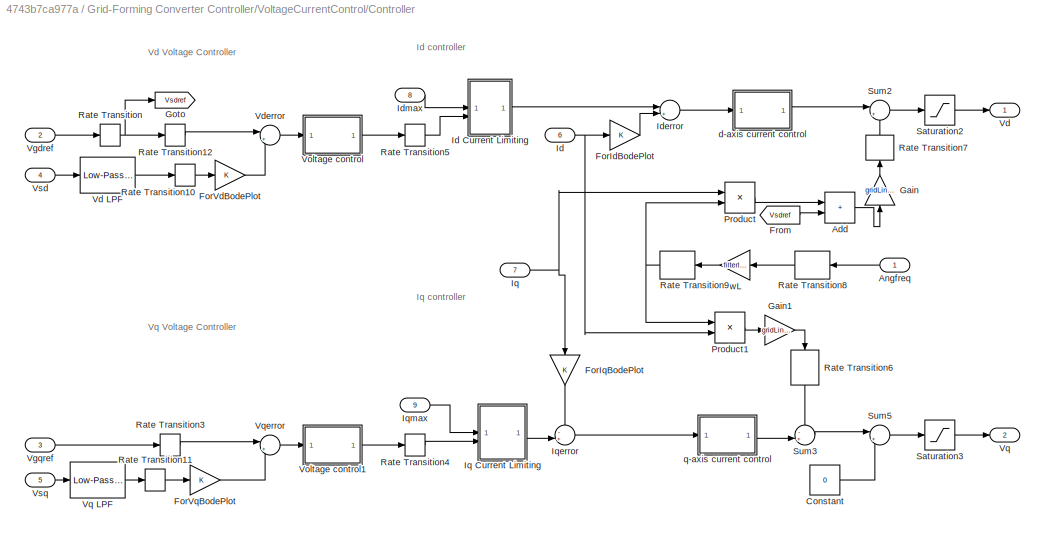
BLOCK [SubSystem] Grid-Forming Converter Controller/VoltageCurrentControl/Controller
BLOCK [Sum] Grid-Forming Converter Controller/VoltageCurrentControl/Controller/Add
  IconShape = rectangular
BLOCK [Inport] Grid-Forming Converter Controller/VoltageCurrentControl/Controller/Angfreq
  NameLocation = top
BLOCK [Constant] Grid-Forming Converter Controller/VoltageCurrentControl/Controller/Constant
  SampleTime = currentControlTs
  Value = 0
BLOCK [Gain] Grid-Forming Converter Controller/VoltageCurrentControl/Controller/ForIdBodePlot
BLOCK [Gain] Grid-Forming Converter Controller/VoltageCurrentControl/Controller/ForIqBodePlot
  NameLocation = left
BLOCK [Gain] Grid-Forming Converter Controller/VoltageCurrentControl/Controller/ForVdBodePlot
BLOCK [Gain] Grid-Forming Converter Controller/VoltageCurrentControl/Controller/ForVqBodePlot
BLOCK [From] Grid-Forming Converter Controller/VoltageCurrentControl/Controller/From
  GotoTag = Vsdref
BLOCK [Gain] Grid-Forming Converter Controller/VoltageCurrentControl/Controller/Gain
  Gain = gridLineVoltage*sqrt(2/3)/(dcBusVoltage/2)
  NameLocation = right
BLOCK [Gain] Grid-Forming Converter Controller/VoltageCurrentControl/Controller/Gain1
  Gain = gridLineVoltage*sqrt(2/3)/(dcBusVoltage/2)
BLOCK [Goto] Grid-Forming Converter Controller/VoltageCurrentControl/Controller/Goto
  GotoTag = Vsdref
BLOCK [Inport] Grid-Forming Converter Controller/VoltageCurrentControl/Controller/Id
  Port = 6
BLOCK [SubSystem] Grid-Forming Converter Controller/VoltageCurrentControl/Controller/Id Current Limiting
BLOCK [Abs] Grid-Forming Converter Controller/VoltageCurrentControl/Controller/Id Current Limiting/Abs
  SaturateOnIntegerOverflow = off
BLOCK [Inport] Grid-Forming Converter Controller/VoltageCurrentControl/Controller/Id Current Limiting/Id
  Port = 2
BLOCK [Outport] Grid-Forming Converter Controller/VoltageCurrentControl/Controller/Id Current Limiting/Idref
BLOCK [Inport] Grid-Forming Converter Controller/VoltageCurrentControl/Controller/Id Current Limiting/Imax
BLOCK [RateTransition] Grid-Forming Converter Controller/VoltageCurrentControl/Controller/Id Current Limiting/Rate Transition
BLOCK [Switch] Grid-Forming Converter Controller/VoltageCurrentControl/Controller/Id Current Limiting/Switch
  Criteria = u2 > Threshold
  InputSameDT = off
  SaturateOnIntegerOverflow = off
BLOCK [Sum] Grid-Forming Converter Controller/VoltageCurrentControl/Controller/Iderror
  Inputs = |+-
BLOCK [Inport] Grid-Forming Converter Controller/VoltageCurrentControl/Controller/Idmax
  Port = 8
BLOCK [Inport] Grid-Forming Converter Controller/VoltageCurrentControl/Controller/Iq
  Port = 7
BLOCK [SubSystem] Grid-Forming Converter Controller/VoltageCurrentControl/Controller/Iq Current Limiting
BLOCK [Abs] Grid-Forming Converter Controller/VoltageCurrentControl/Controller/Iq Current Limiting/Abs
  SaturateOnIntegerOverflow = off
BLOCK [Inport] Grid-Forming Converter Controller/VoltageCurrentControl/Controller/Iq Current Limiting/Imax
BLOCK [Inport] Grid-Forming Converter Controller/VoltageCurrentControl/Controller/Iq Current Limiting/Iq
  Port = 2
BLOCK [Outport] Grid-Forming Converter Controller/VoltageCurrentControl/Controller/Iq Current Limiting/Iqref
BLOCK [Switch] Grid-Forming Converter Controller/VoltageCurrentControl/Controller/Iq Current Limiting/Switch
  Criteria = u2 > Threshold
  InputSameDT = off
  SaturateOnIntegerOverflow = off
BLOCK [Sum] Grid-Forming Converter Controller/VoltageCurrentControl/Controller/Iqerror
  Inputs = -+|
  NameLocation = top
BLOCK [Inport] Grid-Forming Converter Controller/VoltageCurrentControl/Controller/Iqmax
  Port = 9
BLOCK [Product] Grid-Forming Converter Controller/VoltageCurrentControl/Controller/Product
BLOCK [Product] Grid-Forming Converter Controller/VoltageCurrentControl/Controller/Product1
BLOCK [RateTransition] Grid-Forming Converter Controller/VoltageCurrentControl/Controller/Rate Transition
BLOCK [RateTransition] Grid-Forming Converter Controller/VoltageCurrentControl/Controller/Rate Transition10
BLOCK [RateTransition] Grid-Forming Converter Controller/VoltageCurrentControl/Controller/Rate Transition11
BLOCK [RateTransition] Grid-Forming Converter Controller/VoltageCurrentControl/Controller/Rate Transition12
BLOCK [RateTransition] Grid-Forming Converter Controller/VoltageCurrentControl/Controller/Rate Transition3
BLOCK [RateTransition] Grid-Forming Converter Controller/VoltageCurrentControl/Controller/Rate Transition4
BLOCK [RateTransition] Grid-Forming Converter Controller/VoltageCurrentControl/Controller/Rate Transition5
BLOCK [RateTransition] Grid-Forming Converter Controller/VoltageCurrentControl/Controller/Rate Transition6
  NameLocation = left
BLOCK [RateTransition] Grid-Forming Converter Controller/VoltageCurrentControl/Controller/Rate Transition7
  NameLocation = right
BLOCK [RateTransition] Grid-Forming Converter Controller/VoltageCurrentControl/Controller/Rate Transition8
  NameLocation = top
BLOCK [RateTransition] Grid-Forming Converter Controller/VoltageCurrentControl/Controller/Rate Transition9
  NameLocation = top
BLOCK [Saturate] Grid-Forming Converter Controller/VoltageCurrentControl/Controller/Saturation2
  LowerLimit = -3
  UpperLimit = 4
BLOCK [Saturate] Grid-Forming Converter Controller/VoltageCurrentControl/Controller/Saturation3
  LowerLimit = -3
  UpperLimit = 3
BLOCK [Sum] Grid-Forming Converter Controller/VoltageCurrentControl/Controller/Sum2
  Inputs = |++
BLOCK [Sum] Grid-Forming Converter Controller/VoltageCurrentControl/Controller/Sum3
  Inputs = -+|
BLOCK [Sum] Grid-Forming Converter Controller/VoltageCurrentControl/Controller/Sum5
  Inputs = |++
BLOCK [Outport] Grid-Forming Converter Controller/VoltageCurrentControl/Controller/Vd
  VectorParamsAs1DForOutWhenUnconnected = off
BLOCK [Reference] Grid-Forming Converter Controller/VoltageCurrentControl/Controller/Vd LPF  REF=eeGeneralControl/Low-Pass Filter
(Discrete or Continuous)
  LibrarySourceBlock = ee_sl_lib/General Control/Low-Pass Filter\n(Discrete or Continuous)
  SourceBlock = eeGeneralControl/Low-Pass Filter\n(Discrete or Continuous)
  SourceType = Low-Pass Filter (Discrete or Continuous)
BLOCK [Sum] Grid-Forming Converter Controller/VoltageCurrentControl/Controller/Vderror
  Inputs = |+-
  NameLocation = top
BLOCK [Inport] Grid-Forming Converter Controller/VoltageCurrentControl/Controller/Vgdref
  Port = 2
BLOCK [Inport] Grid-Forming Converter Controller/VoltageCurrentControl/Controller/Vgqref
  Port = 3
BLOCK [SubSystem] Grid-Forming Converter Controller/VoltageCurrentControl/Controller/Voltage control
BLOCK [DiscreteIntegrator] Grid-Forming Converter Controller/VoltageCurrentControl/Controller/Voltage control/Discrete-Time Integrator
  ICPrevOutput = DiscIntNeverNeededParam
  ICPrevScaledInput = DiscIntNeverNeededParam
  InitialConditionSetting = Auto
  IntegratorMethod = Integration: Backward Euler
  LimitOutput = on
  LowerSaturationLimit = VdMinCt
  SampleTime = voltControlTs
  UpperSaturationLimit = VdMaxCt
BLOCK [Gain] Grid-Forming Converter Controller/VoltageCurrentControl/Controller/Voltage control/Ki
  Gain = VdIGain
BLOCK [Gain] Grid-Forming Converter Controller/VoltageCurrentControl/Controller/Voltage control/Kp
  Gain = vdPGain
BLOCK [Saturate] Grid-Forming Converter Controller/VoltageCurrentControl/Controller/Voltage control/Limit
  LowerLimit = VdMinCt
  UpperLimit = VdMaxCt
BLOCK [Sum] Grid-Forming Converter Controller/VoltageCurrentControl/Controller/Voltage control/Sum7
  Inputs = |++
BLOCK [Inport] Grid-Forming Converter Controller/VoltageCurrentControl/Controller/Voltage control/e
BLOCK [Outport] Grid-Forming Converter Controller/VoltageCurrentControl/Controller/Voltage control/u
  VectorParamsAs1DForOutWhenUnconnected = off
BLOCK [SubSystem] Grid-Forming Converter Controller/VoltageCurrentControl/Controller/Voltage control1
BLOCK [DiscreteIntegrator] Grid-Forming Converter Controller/VoltageCurrentControl/Controller/Voltage control1/Discrete-Time Integrator
  ICPrevOutput = DiscIntNeverNeededParam
  ICPrevScaledInput = DiscIntNeverNeededParam
  InitialConditionSetting = Auto
  IntegratorMethod = Integration: Backward Euler
  LimitOutput = on
  LowerSaturationLimit = VqMinCt
  SampleTime = voltControlTs
  UpperSaturationLimit = VqMaxCt
BLOCK [Gain] Grid-Forming Converter Controller/VoltageCurrentControl/Controller/Voltage control1/Ki
  Gain = VqIGain
BLOCK [Gain] Grid-Forming Converter Controller/VoltageCurrentControl/Controller/Voltage control1/Kp
  Gain = VqPGain
BLOCK [Saturate] Grid-Forming Converter Controller/VoltageCurrentControl/Controller/Voltage control1/Limit
  LowerLimit = VqMinCt
  UpperLimit = VqMaxCt
BLOCK [Sum] Grid-Forming Converter Controller/VoltageCurrentControl/Controller/Voltage control1/Sum7
  Inputs = |++
BLOCK [Inport] Grid-Forming Converter Controller/VoltageCurrentControl/Controller/Voltage control1/e
BLOCK [Outport] Grid-Forming Converter Controller/VoltageCurrentControl/Controller/Voltage control1/u
  VectorParamsAs1DForOutWhenUnconnected = off
BLOCK [Outport] Grid-Forming Converter Controller/VoltageCurrentControl/Controller/Vq
  Port = 2
  VectorParamsAs1DForOutWhenUnconnected = off
BLOCK [Reference] Grid-Forming Converter Controller/VoltageCurrentControl/Controller/Vq LPF  REF=eeGeneralControl/Low-Pass Filter
(Discrete or Continuous)
  LibrarySourceBlock = ee_sl_lib/General Control/Low-Pass Filter\n(Discrete or Continuous)
  SourceBlock = eeGeneralControl/Low-Pass Filter\n(Discrete or Continuous)
  SourceType = Low-Pass Filter (Discrete or Continuous)
BLOCK [Sum] Grid-Forming Converter Controller/VoltageCurrentControl/Controller/Vqerror
  Inputs = |+-
BLOCK [Inport] Grid-Forming Converter Controller/VoltageCurrentControl/Controller/Vsd
  Port = 4
BLOCK [Inport] Grid-Forming Converter Controller/VoltageCurrentControl/Controller/Vsq
  Port = 5
BLOCK [SubSystem] Grid-Forming Converter Controller/VoltageCurrentControl/Controller/d-axis current control
BLOCK [DiscreteIntegrator] Grid-Forming Converter Controller/VoltageCurrentControl/Controller/d-axis current control/Discrete-Time Integrator
  ICPrevOutput = DiscIntNeverNeededParam
  ICPrevScaledInput = DiscIntNeverNeededParam
  InitialConditionSetting = Auto
  IntegratorMethod = Integration: Backward Euler
  LimitOutput = on
  LowerSaturationLimit = -4
  SampleTime = currentControlTs
  UpperSaturationLimit = 4
BLOCK [Gain] Grid-Forming Converter Controller/VoltageCurrentControl/Controller/d-axis current control/Ki
  Gain = IdIGain
BLOCK [Gain] Grid-Forming Converter Controller/VoltageCurrentControl/Controller/d-axis current control/Kp
  Gain = IdPGain
BLOCK [Saturate] Grid-Forming Converter Controller/VoltageCurrentControl/Controller/d-axis current control/Limit
  LowerLimit = -4
  UpperLimit = 4
BLOCK [Sum] Grid-Forming Converter Controller/VoltageCurrentControl/Controller/d-axis current control/Sum7
  Inputs = |++
BLOCK [Inport] Grid-Forming Converter Controller/VoltageCurrentControl/Controller/d-axis current control/e
BLOCK [Outport] Grid-Forming Converter Controller/VoltageCurrentControl/Controller/d-axis current control/u
  VectorParamsAs1DForOutWhenUnconnected = off
BLOCK [SubSystem] Grid-Forming Converter Controller/VoltageCurrentControl/Controller/q-axis current control
BLOCK [DiscreteIntegrator] Grid-Forming Converter Controller/VoltageCurrentControl/Controller/q-axis current control/Discrete-Time Integrator
  ICPrevOutput = DiscIntNeverNeededParam
  ICPrevScaledInput = DiscIntNeverNeededParam
  InitialConditionSetting = Auto
  IntegratorMethod = Integration: Backward Euler
  LimitOutput = on
  LowerSaturationLimit = -3
  SampleTime = currentControlTs
  UpperSaturationLimit = 3
BLOCK [Gain] Grid-Forming Converter Controller/VoltageCurrentControl/Controller/q-axis current control/Ki
  Gain = IqIGain
BLOCK [Gain] Grid-Forming Converter Controller/VoltageCurrentControl/Controller/q-axis current control/Kp
  Gain = IqPGain
BLOCK [Saturate] Grid-Forming Converter Controller/VoltageCurrentControl/Controller/q-axis current control/Limit
  LowerLimit = -3
  UpperLimit = 3
BLOCK [Sum] Grid-Forming Converter Controller/VoltageCurrentControl/Controller/q-axis current control/Sum7
  Inputs = |++
BLOCK [Inport] Grid-Forming Converter Controller/VoltageCurrentControl/Controller/q-axis current control/e
BLOCK [Outport] Grid-Forming Converter Controller/VoltageCurrentControl/Controller/q-axis current control/u
  VectorParamsAs1DForOutWhenUnconnected = off
BLOCK [Gain] Grid-Forming Converter Controller/VoltageCurrentControl/Controller/wL
  Gain = filterInductance*power/(gridLineVoltage^2)
  NameLocation = top
BLOCK [Inport] Grid-Forming Converter Controller/VoltageCurrentControl/In Bus Element
BLOCK [Inport] Grid-Forming Converter Controller/VoltageCurrentControl/In Bus Element1
BLOCK [Inport] Grid-Forming Converter Controller/VoltageCurrentControl/In Bus Element2
  Port = 3
BLOCK [Inport] Grid-Forming Converter Controller/VoltageCurrentControl/In Bus Element3
  Port = 3
BLOCK [Inport] Grid-Forming Converter Controller/VoltageCurrentControl/In Bus Element4
  Port = 3
BLOCK [Inport] Grid-Forming Converter Controller/VoltageCurrentControl/In Bus Element5
  Port = 3
BLOCK [Inport] Grid-Forming Converter Controller/VoltageCurrentControl/In Bus Element6
BLOCK [Inport] Grid-Forming Converter Controller/VoltageCurrentControl/In Bus Element7
BLOCK [SubSystem] Grid-Forming Converter Controller/VoltageCurrentControl/Modulation Signal
BLOCK [Inport] Grid-Forming Converter Controller/VoltageCurrentControl/Modulation Signal/Angle
  NameLocation = left
  Port = 3
BLOCK [Constant] Grid-Forming Converter Controller/VoltageCurrentControl/Modulation Signal/Constant
  Value = 0
BLOCK [Reference] Grid-Forming Converter Controller/VoltageCurrentControl/Modulation Signal/Inverse Park Transform  REF=eeTransforms/Inverse
Park Transform
  SourceBlock = eeTransforms/Inverse\nPark Transform
  SourceType = Inverse Park Transform
BLOCK [Mux] Grid-Forming Converter Controller/VoltageCurrentControl/Modulation Signal/Mux1
  DisplayOption = bar
  Inputs = 3
BLOCK [Saturate] Grid-Forming Converter Controller/VoltageCurrentControl/Modulation Signal/Saturation2
  LowerLimit = -1
  UpperLimit = 1
BLOCK [Inport] Grid-Forming Converter Controller/VoltageCurrentControl/Modulation Signal/Vd
  NameLocation = left
BLOCK [Inport] Grid-Forming Converter Controller/VoltageCurrentControl/Modulation Signal/Vq
  NameLocation = left
  Port = 2
BLOCK [Outport] Grid-Forming Converter Controller/VoltageCurrentControl/Modulation Signal/mabc
  VectorParamsAs1DForOutWhenUnconnected = off
BLOCK [Outport] Grid-Forming Converter Controller/VoltageCurrentControl/mabc
BLOCK [Outport] Grid-Forming Converter Controller/mabc
  Port = 4
ANNOTATION Grid-Forming Converter Controller/Current Limiting/CurrentLimitingMethod/currentLimitAndVirtual/Current Saturation: Vs-delV
ANNOTATION Grid-Forming Converter Controller/Current Limiting/CurrentLimitingMethod/currentLimitAndVirtual/VI: Resistance coefficient
ANNOTATION Grid-Forming Converter Controller/Current Limiting/CurrentLimitingMethod/currentLimitAndVirtual/VI: X/R ratio
ANNOTATION Grid-Forming Converter Controller/Current Limiting/CurrentLimitingMethod/currentSaturation: Vs-delV
ANNOTATION Grid-Forming Converter Controller/Current Limiting/CurrentLimitingMethod/virtualImpedance: Resistance coefficient
ANNOTATION Grid-Forming Converter Controller/Current Limiting/CurrentLimitingMethod/virtualImpedance: X/R ratio
ANNOTATION Grid-Forming Converter Controller/Grid Voltage Reactive Power Support/Modifying Reactive Power Reference/Changing the Power Reference/ActivePowerReference: Ensure Pref sign is maintained
ANNOTATION Grid-Forming Converter Controller/Grid Voltage Reactive Power Support/Modifying Reactive Power Reference/Changing the Power Reference/EstimateIqForReactivePower: Computing minimum reactive current as per GC0137
ANNOTATION Grid-Forming Converter Controller/Power Control: Active Power Control
ANNOTATION Grid-Forming Converter Controller/Power Control: Reactive Power Control
ANNOTATION Grid-Forming Converter Controller/Power Control/ActivePowerControl/vsmControl: Damping power input
ANNOTATION Grid-Forming Converter Controller/Power Control/ActivePowerControl/vsmControl: Frequency difference power
ANNOTATION Grid-Forming Converter Controller/Power Control/ActivePowerControl/vsmControl: Measured power
ANNOTATION Grid-Forming Converter Controller/Power Control/ReactiveControl: Vs-delV
ANNOTATION Grid-Forming Converter Controller/VoltageCurrentControl/Controller: Id controller
ANNOTATION Grid-Forming Converter Controller/VoltageCurrentControl/Controller: Iq controller
ANNOTATION Grid-Forming Converter Controller/VoltageCurrentControl/Controller: Vd Voltage Controller
ANNOTATION Grid-Forming Converter Controller/VoltageCurrentControl/Controller: Vq Voltage Controller
LINE Grid-Forming Converter Controller/Current Limiting/CurrentLimitingMethod/currentLimitAndVirtual/Current Saturation/Compare/Compare To Zero:1 -> Grid-Forming Converter Controller/Current Limiting/CurrentLimitingMethod/currentLimitAndVirtual/Current Saturation/Compare/Data Type Conversion:1
LINE Grid-Forming Converter Controller/Current Limiting/CurrentLimitingMethod/currentLimitAndVirtual/Current Saturation/Compare/Data Type Conversion:1 -> Grid-Forming Converter Controller/Current Limiting/CurrentLimitingMethod/currentLimitAndVirtual/Current Saturation/Compare/Out1:1
LINE Grid-Forming Converter Controller/Current Limiting/CurrentLimitingMethod/currentLimitAndVirtual/Current Saturation/Compare/u:1 -> Grid-Forming Converter Controller/Current Limiting/CurrentLimitingMethod/currentLimitAndVirtual/Current Saturation/Compare/Compare To Zero:1
LINE Grid-Forming Converter Controller/Current Limiting/CurrentLimitingMethod/currentLimitAndVirtual/Current Saturation/Compare:1 -> Grid-Forming Converter Controller/Current Limiting/CurrentLimitingMethod/currentLimitAndVirtual/Current Saturation/If:1
LINE Grid-Forming Converter Controller/Current Limiting/CurrentLimitingMethod/currentLimitAndVirtual/Current Saturation/Constant1:1 -> Grid-Forming Converter Controller/Current Limiting/CurrentLimitingMethod/currentLimitAndVirtual/Current Saturation/delVd:1
LINE Grid-Forming Converter Controller/Current Limiting/CurrentLimitingMethod/currentLimitAndVirtual/Current Saturation/Constant2:1 -> Grid-Forming Converter Controller/Current Limiting/CurrentLimitingMethod/currentLimitAndVirtual/Current Saturation/delVq:1
LINE Grid-Forming Converter Controller/Current Limiting/CurrentLimitingMethod/currentLimitAndVirtual/Current Saturation/From1:1 -> Grid-Forming Converter Controller/Current Limiting/CurrentLimitingMethod/currentLimitAndVirtual/Current Saturation/If Action Subsystem:3
LINE Grid-Forming Converter Controller/Current Limiting/CurrentLimitingMethod/currentLimitAndVirtual/Current Saturation/From2:1 -> Grid-Forming Converter Controller/Current Limiting/CurrentLimitingMethod/currentLimitAndVirtual/Current Saturation/If Action Subsystem:1
LINE Grid-Forming Converter Controller/Current Limiting/CurrentLimitingMethod/currentLimitAndVirtual/Current Saturation/From3:1 -> Grid-Forming Converter Controller/Current Limiting/CurrentLimitingMethod/currentLimitAndVirtual/Current Saturation/If Action Subsystem:4
LINE Grid-Forming Converter Controller/Current Limiting/CurrentLimitingMethod/currentLimitAndVirtual/Current Saturation/From:1 -> Grid-Forming Converter Controller/Current Limiting/CurrentLimitingMethod/currentLimitAndVirtual/Current Saturation/If Action Subsystem:2
NET Grid-Forming Converter Controller/Current Limiting/CurrentLimitingMethod/currentLimitAndVirtual/Current Saturation/Id:1 -> Grid-Forming Converter Controller/Current Limiting/CurrentLimitingMethod/currentLimitAndVirtual/Current Saturation/Goto:1, Grid-Forming Converter Controller/Current Limiting/CurrentLimitingMethod/currentLimitAndVirtual/Current Saturation/Math Function:1
NET Grid-Forming Converter Controller/Current Limiting/CurrentLimitingMethod/currentLimitAndVirtual/Current Saturation/If Action Subsystem/Divide:1 -> Grid-Forming Converter Controller/Current Limiting/CurrentLimitingMethod/currentLimitAndVirtual/Current Saturation/If Action Subsystem/Product1:2, Grid-Forming Converter Controller/Current Limiting/CurrentLimitingMethod/currentLimitAndVirtual/Current Saturation/If Action Subsystem/Product:1
LINE Grid-Forming Converter Controller/Current Limiting/CurrentLimitingMethod/currentLimitAndVirtual/Current Saturation/If Action Subsystem/Is:1 -> Grid-Forming Converter Controller/Current Limiting/CurrentLimitingMethod/currentLimitAndVirtual/Current Saturation/If Action Subsystem/Divide:2
LINE Grid-Forming Converter Controller/Current Limiting/CurrentLimitingMethod/currentLimitAndVirtual/Current Saturation/If Action Subsystem/Isd:1 -> Grid-Forming Converter Controller/Current Limiting/CurrentLimitingMethod/currentLimitAndVirtual/Current Saturation/If Action Subsystem/Product1:1
LINE Grid-Forming Converter Controller/Current Limiting/CurrentLimitingMethod/currentLimitAndVirtual/Current Saturation/If Action Subsystem/Isq:1 -> Grid-Forming Converter Controller/Current Limiting/CurrentLimitingMethod/currentLimitAndVirtual/Current Saturation/If Action Subsystem/Product:2
LINE Grid-Forming Converter Controller/Current Limiting/CurrentLimitingMethod/currentLimitAndVirtual/Current Saturation/If Action Subsystem/Product1:1 -> Grid-Forming Converter Controller/Current Limiting/CurrentLimitingMethod/currentLimitAndVirtual/Current Saturation/If Action Subsystem/Idmax:1
LINE Grid-Forming Converter Controller/Current Limiting/CurrentLimitingMethod/currentLimitAndVirtual/Current Saturation/If Action Subsystem/Product:1 -> Grid-Forming Converter Controller/Current Limiting/CurrentLimitingMethod/currentLimitAndVirtual/Current Saturation/If Action Subsystem/Iqmax:1
LINE Grid-Forming Converter Controller/Current Limiting/CurrentLimitingMethod/currentLimitAndVirtual/Current Saturation/If Action Subsystem/maxI:1 -> Grid-Forming Converter Controller/Current Limiting/CurrentLimitingMethod/currentLimitAndVirtual/Current Saturation/If Action Subsystem/Divide:1
LINE Grid-Forming Converter Controller/Current Limiting/CurrentLimitingMethod/currentLimitAndVirtual/Current Saturation/If Action Subsystem1/Constant3:1 -> Grid-Forming Converter Controller/Current Limiting/CurrentLimitingMethod/currentLimitAndVirtual/Current Saturation/If Action Subsystem1/Idmax:1
LINE Grid-Forming Converter Controller/Current Limiting/CurrentLimitingMethod/currentLimitAndVirtual/Current Saturation/If Action Subsystem1/Constant4:1 -> Grid-Forming Converter Controller/Current Limiting/CurrentLimitingMethod/currentLimitAndVirtual/Current Saturation/If Action Subsystem1/Iqmax:1
LINE Grid-Forming Converter Controller/Current Limiting/CurrentLimitingMethod/currentLimitAndVirtual/Current Saturation/If Action Subsystem1:1 -> Grid-Forming Converter Controller/Current Limiting/CurrentLimitingMethod/currentLimitAndVirtual/Current Saturation/Merge:2
LINE Grid-Forming Converter Controller/Current Limiting/CurrentLimitingMethod/currentLimitAndVirtual/Current Saturation/If Action Subsystem1:2 -> Grid-Forming Converter Controller/Current Limiting/CurrentLimitingMethod/currentLimitAndVirtual/Current Saturation/Merge1:2
LINE Grid-Forming Converter Controller/Current Limiting/CurrentLimitingMethod/currentLimitAndVirtual/Current Saturation/If Action Subsystem:1 -> Grid-Forming Converter Controller/Current Limiting/CurrentLimitingMethod/currentLimitAndVirtual/Current Saturation/Merge:1
LINE Grid-Forming Converter Controller/Current Limiting/CurrentLimitingMethod/currentLimitAndVirtual/Current Saturation/If Action Subsystem:2 -> Grid-Forming Converter Controller/Current Limiting/CurrentLimitingMethod/currentLimitAndVirtual/Current Saturation/Merge1:1
LINE Grid-Forming Converter Controller/Current Limiting/CurrentLimitingMethod/currentLimitAndVirtual/Current Saturation/If:1 -> Grid-Forming Converter Controller/Current Limiting/CurrentLimitingMethod/currentLimitAndVirtual/Current Saturation/If Action Subsystem:ifaction
LINE Grid-Forming Converter Controller/Current Limiting/CurrentLimitingMethod/currentLimitAndVirtual/Current Saturation/If:2 -> Grid-Forming Converter Controller/Current Limiting/CurrentLimitingMethod/currentLimitAndVirtual/Current Saturation/If Action Subsystem1:ifaction
NET Grid-Forming Converter Controller/Current Limiting/CurrentLimitingMethod/currentLimitAndVirtual/Current Saturation/Imaxsat:1 -> Grid-Forming Converter Controller/Current Limiting/CurrentLimitingMethod/currentLimitAndVirtual/Current Saturation/Goto3:1, Grid-Forming Converter Controller/Current Limiting/CurrentLimitingMethod/currentLimitAndVirtual/Current Saturation/Subtract:1
NET Grid-Forming Converter Controller/Current Limiting/CurrentLimitingMethod/currentLimitAndVirtual/Current Saturation/Iq:1 -> Grid-Forming Converter Controller/Current Limiting/CurrentLimitingMethod/currentLimitAndVirtual/Current Saturation/Goto1:1, Grid-Forming Converter Controller/Current Limiting/CurrentLimitingMethod/currentLimitAndVirtual/Current Saturation/Math Function:2
NET Grid-Forming Converter Controller/Current Limiting/CurrentLimitingMethod/currentLimitAndVirtual/Current Saturation/Math Function:1 -> Grid-Forming Converter Controller/Current Limiting/CurrentLimitingMethod/currentLimitAndVirtual/Current Saturation/Goto2:1, Grid-Forming Converter Controller/Current Limiting/CurrentLimitingMethod/currentLimitAndVirtual/Current Saturation/Subtract:2
LINE Grid-Forming Converter Controller/Current Limiting/CurrentLimitingMethod/currentLimitAndVirtual/Current Saturation/Merge1:1 -> Grid-Forming Converter Controller/Current Limiting/CurrentLimitingMethod/currentLimitAndVirtual/Current Saturation/iqmax:1
LINE Grid-Forming Converter Controller/Current Limiting/CurrentLimitingMethod/currentLimitAndVirtual/Current Saturation/Merge:1 -> Grid-Forming Converter Controller/Current Limiting/CurrentLimitingMethod/currentLimitAndVirtual/Current Saturation/idmax:1
LINE Grid-Forming Converter Controller/Current Limiting/CurrentLimitingMethod/currentLimitAndVirtual/Current Saturation/Subtract:1 -> Grid-Forming Converter Controller/Current Limiting/CurrentLimitingMethod/currentLimitAndVirtual/Current Saturation/Compare:1
LINE Grid-Forming Converter Controller/Current Limiting/CurrentLimitingMethod/currentLimitAndVirtual/Current Saturation:1 -> Grid-Forming Converter Controller/Current Limiting/CurrentLimitingMethod/currentLimitAndVirtual/Merge:2
LINE Grid-Forming Converter Controller/Current Limiting/CurrentLimitingMethod/currentLimitAndVirtual/Current Saturation:2 -> Grid-Forming Converter Controller/Current Limiting/CurrentLimitingMethod/currentLimitAndVirtual/Merge1:2
LINE Grid-Forming Converter Controller/Current Limiting/CurrentLimitingMethod/currentLimitAndVirtual/Current Saturation:3 -> Grid-Forming Converter Controller/Current Limiting/CurrentLimitingMethod/currentLimitAndVirtual/Merge2:2
LINE Grid-Forming Converter Controller/Current Limiting/CurrentLimitingMethod/currentLimitAndVirtual/Current Saturation:4 -> Grid-Forming Converter Controller/Current Limiting/CurrentLimitingMethod/currentLimitAndVirtual/Merge3:2
LINE Grid-Forming Converter Controller/Current Limiting/CurrentLimitingMethod/currentLimitAndVirtual/CurrentLimitSelection:1 -> Grid-Forming Converter Controller/Current Limiting/CurrentLimitingMethod/currentLimitAndVirtual/Goto2:1
LINE Grid-Forming Converter Controller/Current Limiting/CurrentLimitingMethod/currentLimitAndVirtual/CurrentLimitSelection:2 -> Grid-Forming Converter Controller/Current Limiting/CurrentLimitingMethod/currentLimitAndVirtual/Goto3:1
LINE Grid-Forming Converter Controller/Current Limiting/CurrentLimitingMethod/currentLimitAndVirtual/CurrentLimitSelection:3 -> Grid-Forming Converter Controller/Current Limiting/CurrentLimitingMethod/currentLimitAndVirtual/Goto4:1
LINE Grid-Forming Converter Controller/Current Limiting/CurrentLimitingMethod/currentLimitAndVirtual/CurrentLimitSelection:4 -> Grid-Forming Converter Controller/Current Limiting/CurrentLimitingMethod/currentLimitAndVirtual/Goto5:1
LINE Grid-Forming Converter Controller/Current Limiting/CurrentLimitingMethod/currentLimitAndVirtual/From1:1 -> Grid-Forming Converter Controller/Current Limiting/CurrentLimitingMethod/currentLimitAndVirtual/Math Function:2
LINE Grid-Forming Converter Controller/Current Limiting/CurrentLimitingMethod/currentLimitAndVirtual/From2:1 -> Grid-Forming Converter Controller/Current Limiting/CurrentLimitingMethod/currentLimitAndVirtual/VI:enable
LINE Grid-Forming Converter Controller/Current Limiting/CurrentLimitingMethod/currentLimitAndVirtual/From3:1 -> Grid-Forming Converter Controller/Current Limiting/CurrentLimitingMethod/currentLimitAndVirtual/Current Saturation:enable
LINE Grid-Forming Converter Controller/Current Limiting/CurrentLimitingMethod/currentLimitAndVirtual/From4:1 -> Grid-Forming Converter Controller/Current Limiting/CurrentLimitingMethod/currentLimitAndVirtual/No Fault Ride Through:enable
LINE Grid-Forming Converter Controller/Current Limiting/CurrentLimitingMethod/currentLimitAndVirtual/From5:1 -> Grid-Forming Converter Controller/Current Limiting/CurrentLimitingMethod/currentLimitAndVirtual/Current Saturation:3
LINE Grid-Forming Converter Controller/Current Limiting/CurrentLimitingMethod/currentLimitAndVirtual/From6:1 -> Grid-Forming Converter Controller/Current Limiting/CurrentLimitingMethod/currentLimitAndVirtual/VI:3
LINE Grid-Forming Converter Controller/Current Limiting/CurrentLimitingMethod/currentLimitAndVirtual/From:1 -> Grid-Forming Converter Controller/Current Limiting/CurrentLimitingMethod/currentLimitAndVirtual/Math Function:1
NET Grid-Forming Converter Controller/Current Limiting/CurrentLimitingMethod/currentLimitAndVirtual/Igd:1 -> Grid-Forming Converter Controller/Current Limiting/CurrentLimitingMethod/currentLimitAndVirtual/Current Saturation:1, Grid-Forming Converter Controller/Current Limiting/CurrentLimitingMethod/currentLimitAndVirtual/Goto:1, Grid-Forming Converter Controller/Current Limiting/CurrentLimitingMethod/currentLimitAndVirtual/No Fault Ride Through:1, Grid-Forming Converter Controller/Current Limiting/CurrentLimitingMethod/currentLimitAndVirtual/VI:1
NET Grid-Forming Converter Controller/Current Limiting/CurrentLimitingMethod/currentLimitAndVirtual/Igq:1 -> Grid-Forming Converter Controller/Current Limiting/CurrentLimitingMethod/currentLimitAndVirtual/Current Saturation:2, Grid-Forming Converter Controller/Current Limiting/CurrentLimitingMethod/currentLimitAndVirtual/Goto1:1, Grid-Forming Converter Controller/Current Limiting/CurrentLimitingMethod/currentLimitAndVirtual/No Fault Ride Through:2, Grid-Forming Converter Controller/Current Limiting/CurrentLimitingMethod/currentLimitAndVirtual/VI:2
LINE Grid-Forming Converter Controller/Current Limiting/CurrentLimitingMethod/currentLimitAndVirtual/Math Function:1 -> Grid-Forming Converter Controller/Current Limiting/CurrentLimitingMethod/currentLimitAndVirtual/CurrentLimitSelection:1
LINE Grid-Forming Converter Controller/Current Limiting/CurrentLimitingMethod/currentLimitAndVirtual/Merge1:1 -> Grid-Forming Converter Controller/Current Limiting/CurrentLimitingMethod/currentLimitAndVirtual/delVq:1
LINE Grid-Forming Converter Controller/Current Limiting/CurrentLimitingMethod/currentLimitAndVirtual/Merge2:1 -> Grid-Forming Converter Controller/Current Limiting/CurrentLimitingMethod/currentLimitAndVirtual/Idmax:1
LINE Grid-Forming Converter Controller/Current Limiting/CurrentLimitingMethod/currentLimitAndVirtual/Merge3:1 -> Grid-Forming Converter Controller/Current Limiting/CurrentLimitingMethod/currentLimitAndVirtual/Iqmax:1
LINE Grid-Forming Converter Controller/Current Limiting/CurrentLimitingMethod/currentLimitAndVirtual/Merge:1 -> Grid-Forming Converter Controller/Current Limiting/CurrentLimitingMethod/currentLimitAndVirtual/delVd:1
LINE Grid-Forming Converter Controller/Current Limiting/CurrentLimitingMethod/currentLimitAndVirtual/No Fault Ride Through/Constant1:1 -> Grid-Forming Converter Controller/Current Limiting/CurrentLimitingMethod/currentLimitAndVirtual/No Fault Ride Through/delVd:1
LINE Grid-Forming Converter Controller/Current Limiting/CurrentLimitingMethod/currentLimitAndVirtual/No Fault Ride Through/Constant2:1 -> Grid-Forming Converter Controller/Current Limiting/CurrentLimitingMethod/currentLimitAndVirtual/No Fault Ride Through/idmax:1
LINE Grid-Forming Converter Controller/Current Limiting/CurrentLimitingMethod/currentLimitAndVirtual/No Fault Ride Through/Constant3:1 -> Grid-Forming Converter Controller/Current Limiting/CurrentLimitingMethod/currentLimitAndVirtual/No Fault Ride Through/iqmax:1
LINE Grid-Forming Converter Controller/Current Limiting/CurrentLimitingMethod/currentLimitAndVirtual/No Fault Ride Through/Constant4:1 -> Grid-Forming Converter Controller/Current Limiting/CurrentLimitingMethod/currentLimitAndVirtual/No Fault Ride Through/delVq:1
LINE Grid-Forming Converter Controller/Current Limiting/CurrentLimitingMethod/currentLimitAndVirtual/No Fault Ride Through/Id:1 -> Grid-Forming Converter Controller/Current Limiting/CurrentLimitingMethod/currentLimitAndVirtual/No Fault Ride Through/Terminator:1
LINE Grid-Forming Converter Controller/Current Limiting/CurrentLimitingMethod/currentLimitAndVirtual/No Fault Ride Through/Iq:1 -> Grid-Forming Converter Controller/Current Limiting/CurrentLimitingMethod/currentLimitAndVirtual/No Fault Ride Through/Terminator1:1
LINE Grid-Forming Converter Controller/Current Limiting/CurrentLimitingMethod/currentLimitAndVirtual/No Fault Ride Through:1 -> Grid-Forming Converter Controller/Current Limiting/CurrentLimitingMethod/currentLimitAndVirtual/Merge:3
LINE Grid-Forming Converter Controller/Current Limiting/CurrentLimitingMethod/currentLimitAndVirtual/No Fault Ride Through:2 -> Grid-Forming Converter Controller/Current Limiting/CurrentLimitingMethod/currentLimitAndVirtual/Merge1:3
LINE Grid-Forming Converter Controller/Current Limiting/CurrentLimitingMethod/currentLimitAndVirtual/No Fault Ride Through:3 -> Grid-Forming Converter Controller/Current Limiting/CurrentLimitingMethod/currentLimitAndVirtual/Merge2:3
LINE Grid-Forming Converter Controller/Current Limiting/CurrentLimitingMethod/currentLimitAndVirtual/No Fault Ride Through:4 -> Grid-Forming Converter Controller/Current Limiting/CurrentLimitingMethod/currentLimitAndVirtual/Merge3:3
LINE Grid-Forming Converter Controller/Current Limiting/CurrentLimitingMethod/currentLimitAndVirtual/VI/Constant1:1 -> Grid-Forming Converter Controller/Current Limiting/CurrentLimitingMethod/currentLimitAndVirtual/VI/Switch:3
LINE Grid-Forming Converter Controller/Current Limiting/CurrentLimitingMethod/currentLimitAndVirtual/VI/Constant2:1 -> Grid-Forming Converter Controller/Current Limiting/CurrentLimitingMethod/currentLimitAndVirtual/VI/idmax:1
LINE Grid-Forming Converter Controller/Current Limiting/CurrentLimitingMethod/currentLimitAndVirtual/VI/Constant3:1 -> Grid-Forming Converter Controller/Current Limiting/CurrentLimitingMethod/currentLimitAndVirtual/VI/iqmax:1
NET Grid-Forming Converter Controller/Current Limiting/CurrentLimitingMethod/currentLimitAndVirtual/VI/From10:1 -> Grid-Forming Converter Controller/Current Limiting/CurrentLimitingMethod/currentLimitAndVirtual/VI/Product1:1, Grid-Forming Converter Controller/Current Limiting/CurrentLimitingMethod/currentLimitAndVirtual/VI/Product:2
NET Grid-Forming Converter Controller/Current Limiting/CurrentLimitingMethod/currentLimitAndVirtual/VI/From13:1 -> Grid-Forming Converter Controller/Current Limiting/CurrentLimitingMethod/currentLimitAndVirtual/VI/Product2:2, Grid-Forming Converter Controller/Current Limiting/CurrentLimitingMethod/currentLimitAndVirtual/VI/Product3:1
NET Grid-Forming Converter Controller/Current Limiting/CurrentLimitingMethod/currentLimitAndVirtual/VI/Gain1:1 -> Grid-Forming Converter Controller/Current Limiting/CurrentLimitingMethod/currentLimitAndVirtual/VI/Product1:2, Grid-Forming Converter Controller/Current Limiting/CurrentLimitingMethod/currentLimitAndVirtual/VI/Product2:1
LINE Grid-Forming Converter Controller/Current Limiting/CurrentLimitingMethod/currentLimitAndVirtual/VI/Gain:1 -> Grid-Forming Converter Controller/Current Limiting/CurrentLimitingMethod/currentLimitAndVirtual/VI/Switch:1
NET Grid-Forming Converter Controller/Current Limiting/CurrentLimitingMethod/currentLimitAndVirtual/VI/Id:1 -> Grid-Forming Converter Controller/Current Limiting/CurrentLimitingMethod/currentLimitAndVirtual/VI/Goto:1, Grid-Forming Converter Controller/Current Limiting/CurrentLimitingMethod/currentLimitAndVirtual/VI/Math Function:1
LINE Grid-Forming Converter Controller/Current Limiting/CurrentLimitingMethod/currentLimitAndVirtual/VI/Imax:1 -> Grid-Forming Converter Controller/Current Limiting/CurrentLimitingMethod/currentLimitAndVirtual/VI/Sum:2
NET Grid-Forming Converter Controller/Current Limiting/CurrentLimitingMethod/currentLimitAndVirtual/VI/Iq:1 -> Grid-Forming Converter Controller/Current Limiting/CurrentLimitingMethod/currentLimitAndVirtual/VI/Goto7:1, Grid-Forming Converter Controller/Current Limiting/CurrentLimitingMethod/currentLimitAndVirtual/VI/Math Function:2
LINE Grid-Forming Converter Controller/Current Limiting/CurrentLimitingMethod/currentLimitAndVirtual/VI/Low-Pass Filter:1 -> Grid-Forming Converter Controller/Current Limiting/CurrentLimitingMethod/currentLimitAndVirtual/VI/Sum:1
LINE Grid-Forming Converter Controller/Current Limiting/CurrentLimitingMethod/currentLimitAndVirtual/VI/Math Function:1 -> Grid-Forming Converter Controller/Current Limiting/CurrentLimitingMethod/currentLimitAndVirtual/VI/Low-Pass Filter:1
LINE Grid-Forming Converter Controller/Current Limiting/CurrentLimitingMethod/currentLimitAndVirtual/VI/Product1:1 -> Grid-Forming Converter Controller/Current Limiting/CurrentLimitingMethod/currentLimitAndVirtual/VI/Sum2:1
LINE Grid-Forming Converter Controller/Current Limiting/CurrentLimitingMethod/currentLimitAndVirtual/VI/Product2:1 -> Grid-Forming Converter Controller/Current Limiting/CurrentLimitingMethod/currentLimitAndVirtual/VI/Sum1:2
LINE Grid-Forming Converter Controller/Current Limiting/CurrentLimitingMethod/currentLimitAndVirtual/VI/Product3:1 -> Grid-Forming Converter Controller/Current Limiting/CurrentLimitingMethod/currentLimitAndVirtual/VI/Sum2:2
LINE Grid-Forming Converter Controller/Current Limiting/CurrentLimitingMethod/currentLimitAndVirtual/VI/Product:1 -> Grid-Forming Converter Controller/Current Limiting/CurrentLimitingMethod/currentLimitAndVirtual/VI/Sum1:1
LINE Grid-Forming Converter Controller/Current Limiting/CurrentLimitingMethod/currentLimitAndVirtual/VI/Relay1:1 -> Grid-Forming Converter Controller/Current Limiting/CurrentLimitingMethod/currentLimitAndVirtual/VI/Switch:2
LINE Grid-Forming Converter Controller/Current Limiting/CurrentLimitingMethod/currentLimitAndVirtual/VI/Saturation1:1 -> Grid-Forming Converter Controller/Current Limiting/CurrentLimitingMethod/currentLimitAndVirtual/VI/delVq:1
LINE Grid-Forming Converter Controller/Current Limiting/CurrentLimitingMethod/currentLimitAndVirtual/VI/Saturation:1 -> Grid-Forming Converter Controller/Current Limiting/CurrentLimitingMethod/currentLimitAndVirtual/VI/delVd:1
LINE Grid-Forming Converter Controller/Current Limiting/CurrentLimitingMethod/currentLimitAndVirtual/VI/Sum1:1 -> Grid-Forming Converter Controller/Current Limiting/CurrentLimitingMethod/currentLimitAndVirtual/VI/Saturation:1
LINE Grid-Forming Converter Controller/Current Limiting/CurrentLimitingMethod/currentLimitAndVirtual/VI/Sum2:1 -> Grid-Forming Converter Controller/Current Limiting/CurrentLimitingMethod/currentLimitAndVirtual/VI/Saturation1:1
NET Grid-Forming Converter Controller/Current Limiting/CurrentLimitingMethod/currentLimitAndVirtual/VI/Sum:1 -> Grid-Forming Converter Controller/Current Limiting/CurrentLimitingMethod/currentLimitAndVirtual/VI/Gain:1, Grid-Forming Converter Controller/Current Limiting/CurrentLimitingMethod/currentLimitAndVirtual/VI/Relay1:1
NET Grid-Forming Converter Controller/Current Limiting/CurrentLimitingMethod/currentLimitAndVirtual/VI/Switch:1 -> Grid-Forming Converter Controller/Current Limiting/CurrentLimitingMethod/currentLimitAndVirtual/VI/Gain1:1, Grid-Forming Converter Controller/Current Limiting/CurrentLimitingMethod/currentLimitAndVirtual/VI/Product3:2, Grid-Forming Converter Controller/Current Limiting/CurrentLimitingMethod/currentLimitAndVirtual/VI/Product:1
LINE Grid-Forming Converter Controller/Current Limiting/CurrentLimitingMethod/currentLimitAndVirtual/VI:1 -> Grid-Forming Converter Controller/Current Limiting/CurrentLimitingMethod/currentLimitAndVirtual/Merge:1
LINE Grid-Forming Converter Controller/Current Limiting/CurrentLimitingMethod/currentLimitAndVirtual/VI:2 -> Grid-Forming Converter Controller/Current Limiting/CurrentLimitingMethod/currentLimitAndVirtual/Merge1:1
LINE Grid-Forming Converter Controller/Current Limiting/CurrentLimitingMethod/currentLimitAndVirtual/VI:3 -> Grid-Forming Converter Controller/Current Limiting/CurrentLimitingMethod/currentLimitAndVirtual/Merge2:1
LINE Grid-Forming Converter Controller/Current Limiting/CurrentLimitingMethod/currentLimitAndVirtual/VI:4 -> Grid-Forming Converter Controller/Current Limiting/CurrentLimitingMethod/currentLimitAndVirtual/Merge3:1
LINE Grid-Forming Converter Controller/Current Limiting/CurrentLimitingMethod/currentSaturation/Compare/AND:1 -> Grid-Forming Converter Controller/Current Limiting/CurrentLimitingMethod/currentSaturation/Compare/Data Type Conversion:1
LINE Grid-Forming Converter Controller/Current Limiting/CurrentLimitingMethod/currentSaturation/Compare/Compare To Constant:1 -> Grid-Forming Converter Controller/Current Limiting/CurrentLimitingMethod/currentSaturation/Compare/AND:2
NET Grid-Forming Converter Controller/Current Limiting/CurrentLimitingMethod/currentSaturation/Compare/Data Type Conversion1:1 -> Grid-Forming Converter Controller/Current Limiting/CurrentLimitingMethod/currentSaturation/Compare/AND:1, Grid-Forming Converter Controller/Current Limiting/CurrentLimitingMethod/currentSaturation/Compare/Discrete-Time Integrator:1, Grid-Forming Converter Controller/Current Limiting/CurrentLimitingMethod/currentSaturation/Compare/Discrete-Time Integrator:2
LINE Grid-Forming Converter Controller/Current Limiting/CurrentLimitingMethod/currentSaturation/Compare/Data Type Conversion:1 -> Grid-Forming Converter Controller/Current Limiting/CurrentLimitingMethod/currentSaturation/Compare/Out1:1
LINE Grid-Forming Converter Controller/Current Limiting/CurrentLimitingMethod/currentSaturation/Compare/Discrete-Time Integrator:1 -> Grid-Forming Converter Controller/Current Limiting/CurrentLimitingMethod/currentSaturation/Compare/Compare To Constant:1
LINE Grid-Forming Converter Controller/Current Limiting/CurrentLimitingMethod/currentSaturation/Compare/Relay:1 -> Grid-Forming Converter Controller/Current Limiting/CurrentLimitingMethod/currentSaturation/Compare/Data Type Conversion1:1
LINE Grid-Forming Converter Controller/Current Limiting/CurrentLimitingMethod/currentSaturation/Compare/u:1 -> Grid-Forming Converter Controller/Current Limiting/CurrentLimitingMethod/currentSaturation/Compare/Relay:1
LINE Grid-Forming Converter Controller/Current Limiting/CurrentLimitingMethod/currentSaturation/Compare:1 -> Grid-Forming Converter Controller/Current Limiting/CurrentLimitingMethod/currentSaturation/If:1
LINE Grid-Forming Converter Controller/Current Limiting/CurrentLimitingMethod/currentSaturation/Constant1:1 -> Grid-Forming Converter Controller/Current Limiting/CurrentLimitingMethod/currentSaturation/delVd:1
LINE Grid-Forming Converter Controller/Current Limiting/CurrentLimitingMethod/currentSaturation/Constant2:1 -> Grid-Forming Converter Controller/Current Limiting/CurrentLimitingMethod/currentSaturation/delVq:1
LINE Grid-Forming Converter Controller/Current Limiting/CurrentLimitingMethod/currentSaturation/Constant:1 -> Grid-Forming Converter Controller/Current Limiting/CurrentLimitingMethod/currentSaturation/Subtract:1
LINE Grid-Forming Converter Controller/Current Limiting/CurrentLimitingMethod/currentSaturation/From1:1 -> Grid-Forming Converter Controller/Current Limiting/CurrentLimitingMethod/currentSaturation/If Action Subsystem:3
LINE Grid-Forming Converter Controller/Current Limiting/CurrentLimitingMethod/currentSaturation/From2:1 -> Grid-Forming Converter Controller/Current Limiting/CurrentLimitingMethod/currentSaturation/If Action Subsystem:1
LINE Grid-Forming Converter Controller/Current Limiting/CurrentLimitingMethod/currentSaturation/From:1 -> Grid-Forming Converter Controller/Current Limiting/CurrentLimitingMethod/currentSaturation/If Action Subsystem:2
LINE Grid-Forming Converter Controller/Current Limiting/CurrentLimitingMethod/currentSaturation/If Action Subsystem/Constant:1 -> Grid-Forming Converter Controller/Current Limiting/CurrentLimitingMethod/currentSaturation/If Action Subsystem/Divide:1
NET Grid-Forming Converter Controller/Current Limiting/CurrentLimitingMethod/currentSaturation/If Action Subsystem/Divide:1 -> Grid-Forming Converter Controller/Current Limiting/CurrentLimitingMethod/currentSaturation/If Action Subsystem/Product1:2, Grid-Forming Converter Controller/Current Limiting/CurrentLimitingMethod/currentSaturation/If Action Subsystem/Product:1
LINE Grid-Forming Converter Controller/Current Limiting/CurrentLimitingMethod/currentSaturation/If Action Subsystem/Is:1 -> Grid-Forming Converter Controller/Current Limiting/CurrentLimitingMethod/currentSaturation/If Action Subsystem/Divide:2
LINE Grid-Forming Converter Controller/Current Limiting/CurrentLimitingMethod/currentSaturation/If Action Subsystem/Isd:1 -> Grid-Forming Converter Controller/Current Limiting/CurrentLimitingMethod/currentSaturation/If Action Subsystem/Product1:1
LINE Grid-Forming Converter Controller/Current Limiting/CurrentLimitingMethod/currentSaturation/If Action Subsystem/Isq:1 -> Grid-Forming Converter Controller/Current Limiting/CurrentLimitingMethod/currentSaturation/If Action Subsystem/Product:2
LINE Grid-Forming Converter Controller/Current Limiting/CurrentLimitingMethod/currentSaturation/If Action Subsystem/Product1:1 -> Grid-Forming Converter Controller/Current Limiting/CurrentLimitingMethod/currentSaturation/If Action Subsystem/Idmax:1
LINE Grid-Forming Converter Controller/Current Limiting/CurrentLimitingMethod/currentSaturation/If Action Subsystem/Product:1 -> Grid-Forming Converter Controller/Current Limiting/CurrentLimitingMethod/currentSaturation/If Action Subsystem/Iqmax:1
LINE Grid-Forming Converter Controller/Current Limiting/CurrentLimitingMethod/currentSaturation/If Action Subsystem1/Constant3:1 -> Grid-Forming Converter Controller/Current Limiting/CurrentLimitingMethod/currentSaturation/If Action Subsystem1/Idmax:1
LINE Grid-Forming Converter Controller/Current Limiting/CurrentLimitingMethod/currentSaturation/If Action Subsystem1/Constant4:1 -> Grid-Forming Converter Controller/Current Limiting/CurrentLimitingMethod/currentSaturation/If Action Subsystem1/Iqmax:1
LINE Grid-Forming Converter Controller/Current Limiting/CurrentLimitingMethod/currentSaturation/If Action Subsystem1:1 -> Grid-Forming Converter Controller/Current Limiting/CurrentLimitingMethod/currentSaturation/Merge:2
LINE Grid-Forming Converter Controller/Current Limiting/CurrentLimitingMethod/currentSaturation/If Action Subsystem1:2 -> Grid-Forming Converter Controller/Current Limiting/CurrentLimitingMethod/currentSaturation/Merge1:2
LINE Grid-Forming Converter Controller/Current Limiting/CurrentLimitingMethod/currentSaturation/If Action Subsystem:1 -> Grid-Forming Converter Controller/Current Limiting/CurrentLimitingMethod/currentSaturation/Merge:1
LINE Grid-Forming Converter Controller/Current Limiting/CurrentLimitingMethod/currentSaturation/If Action Subsystem:2 -> Grid-Forming Converter Controller/Current Limiting/CurrentLimitingMethod/currentSaturation/Merge1:1
LINE Grid-Forming Converter Controller/Current Limiting/CurrentLimitingMethod/currentSaturation/If:1 -> Grid-Forming Converter Controller/Current Limiting/CurrentLimitingMethod/currentSaturation/If Action Subsystem:ifaction
LINE Grid-Forming Converter Controller/Current Limiting/CurrentLimitingMethod/currentSaturation/If:2 -> Grid-Forming Converter Controller/Current Limiting/CurrentLimitingMethod/currentSaturation/If Action Subsystem1:ifaction
NET Grid-Forming Converter Controller/Current Limiting/CurrentLimitingMethod/currentSaturation/Igd:1 -> Grid-Forming Converter Controller/Current Limiting/CurrentLimitingMethod/currentSaturation/Goto:1, Grid-Forming Converter Controller/Current Limiting/CurrentLimitingMethod/currentSaturation/Math Function:1
NET Grid-Forming Converter Controller/Current Limiting/CurrentLimitingMethod/currentSaturation/Igq:1 -> Grid-Forming Converter Controller/Current Limiting/CurrentLimitingMethod/currentSaturation/Goto1:1, Grid-Forming Converter Controller/Current Limiting/CurrentLimitingMethod/currentSaturation/Math Function:2
NET Grid-Forming Converter Controller/Current Limiting/CurrentLimitingMethod/currentSaturation/Math Function:1 -> Grid-Forming Converter Controller/Current Limiting/CurrentLimitingMethod/currentSaturation/Goto2:1, Grid-Forming Converter Controller/Current Limiting/CurrentLimitingMethod/currentSaturation/Subtract:2
LINE Grid-Forming Converter Controller/Current Limiting/CurrentLimitingMethod/currentSaturation/Merge1:1 -> Grid-Forming Converter Controller/Current Limiting/CurrentLimitingMethod/currentSaturation/Iqmax:1
LINE Grid-Forming Converter Controller/Current Limiting/CurrentLimitingMethod/currentSaturation/Merge:1 -> Grid-Forming Converter Controller/Current Limiting/CurrentLimitingMethod/currentSaturation/Idmax:1
LINE Grid-Forming Converter Controller/Current Limiting/CurrentLimitingMethod/currentSaturation/Subtract:1 -> Grid-Forming Converter Controller/Current Limiting/CurrentLimitingMethod/currentSaturation/Compare:1
LINE Grid-Forming Converter Controller/Current Limiting/CurrentLimitingMethod/virtualImpedance/Constant1:1 -> Grid-Forming Converter Controller/Current Limiting/CurrentLimitingMethod/virtualImpedance/Switch:3
LINE Grid-Forming Converter Controller/Current Limiting/CurrentLimitingMethod/virtualImpedance/Constant2:1 -> Grid-Forming Converter Controller/Current Limiting/CurrentLimitingMethod/virtualImpedance/Idmax:1
LINE Grid-Forming Converter Controller/Current Limiting/CurrentLimitingMethod/virtualImpedance/Constant3:1 -> Grid-Forming Converter Controller/Current Limiting/CurrentLimitingMethod/virtualImpedance/Iqmax:1
LINE Grid-Forming Converter Controller/Current Limiting/CurrentLimitingMethod/virtualImpedance/Constant:1 -> Grid-Forming Converter Controller/Current Limiting/CurrentLimitingMethod/virtualImpedance/Sum:2
NET Grid-Forming Converter Controller/Current Limiting/CurrentLimitingMethod/virtualImpedance/From10:1 -> Grid-Forming Converter Controller/Current Limiting/CurrentLimitingMethod/virtualImpedance/Product1:1, Grid-Forming Converter Controller/Current Limiting/CurrentLimitingMethod/virtualImpedance/Product:2
NET Grid-Forming Converter Controller/Current Limiting/CurrentLimitingMethod/virtualImpedance/From13:1 -> Grid-Forming Converter Controller/Current Limiting/CurrentLimitingMethod/virtualImpedance/Product2:2, Grid-Forming Converter Controller/Current Limiting/CurrentLimitingMethod/virtualImpedance/Product3:1
NET Grid-Forming Converter Controller/Current Limiting/CurrentLimitingMethod/virtualImpedance/Gain1:1 -> Grid-Forming Converter Controller/Current Limiting/CurrentLimitingMethod/virtualImpedance/Product1:2, Grid-Forming Converter Controller/Current Limiting/CurrentLimitingMethod/virtualImpedance/Product2:1
LINE Grid-Forming Converter Controller/Current Limiting/CurrentLimitingMethod/virtualImpedance/Gain:1 -> Grid-Forming Converter Controller/Current Limiting/CurrentLimitingMethod/virtualImpedance/Switch:1
LINE Grid-Forming Converter Controller/Current Limiting/CurrentLimitingMethod/virtualImpedance/Igd:1 -> Grid-Forming Converter Controller/Current Limiting/CurrentLimitingMethod/virtualImpedance/Rate Transition:1
LINE Grid-Forming Converter Controller/Current Limiting/CurrentLimitingMethod/virtualImpedance/Igq:1 -> Grid-Forming Converter Controller/Current Limiting/CurrentLimitingMethod/virtualImpedance/Rate Transition1:1
LINE Grid-Forming Converter Controller/Current Limiting/CurrentLimitingMethod/virtualImpedance/Low-Pass Filter:1 -> Grid-Forming Converter Controller/Current Limiting/CurrentLimitingMethod/virtualImpedance/Sum:1
LINE Grid-Forming Converter Controller/Current Limiting/CurrentLimitingMethod/virtualImpedance/Math Function:1 -> Grid-Forming Converter Controller/Current Limiting/CurrentLimitingMethod/virtualImpedance/Low-Pass Filter:1
LINE Grid-Forming Converter Controller/Current Limiting/CurrentLimitingMethod/virtualImpedance/Product1:1 -> Grid-Forming Converter Controller/Current Limiting/CurrentLimitingMethod/virtualImpedance/Sum2:1
LINE Grid-Forming Converter Controller/Current Limiting/CurrentLimitingMethod/virtualImpedance/Product2:1 -> Grid-Forming Converter Controller/Current Limiting/CurrentLimitingMethod/virtualImpedance/Sum1:2
LINE Grid-Forming Converter Controller/Current Limiting/CurrentLimitingMethod/virtualImpedance/Product3:1 -> Grid-Forming Converter Controller/Current Limiting/CurrentLimitingMethod/virtualImpedance/Sum2:2
LINE Grid-Forming Converter Controller/Current Limiting/CurrentLimitingMethod/virtualImpedance/Product:1 -> Grid-Forming Converter Controller/Current Limiting/CurrentLimitingMethod/virtualImpedance/Sum1:1
NET Grid-Forming Converter Controller/Current Limiting/CurrentLimitingMethod/virtualImpedance/Rate Transition1:1 -> Grid-Forming Converter Controller/Current Limiting/CurrentLimitingMethod/virtualImpedance/Goto7:1, Grid-Forming Converter Controller/Current Limiting/CurrentLimitingMethod/virtualImpedance/Math Function:2
NET Grid-Forming Converter Controller/Current Limiting/CurrentLimitingMethod/virtualImpedance/Rate Transition:1 -> Grid-Forming Converter Controller/Current Limiting/CurrentLimitingMethod/virtualImpedance/Goto:1, Grid-Forming Converter Controller/Current Limiting/CurrentLimitingMethod/virtualImpedance/Math Function:1
LINE Grid-Forming Converter Controller/Current Limiting/CurrentLimitingMethod/virtualImpedance/Relay:1 -> Grid-Forming Converter Controller/Current Limiting/CurrentLimitingMethod/virtualImpedance/Switch:2
LINE Grid-Forming Converter Controller/Current Limiting/CurrentLimitingMethod/virtualImpedance/Saturation1:1 -> Grid-Forming Converter Controller/Current Limiting/CurrentLimitingMethod/virtualImpedance/delVq:1
LINE Grid-Forming Converter Controller/Current Limiting/CurrentLimitingMethod/virtualImpedance/Saturation:1 -> Grid-Forming Converter Controller/Current Limiting/CurrentLimitingMethod/virtualImpedance/delVd:1
LINE Grid-Forming Converter Controller/Current Limiting/CurrentLimitingMethod/virtualImpedance/Sum1:1 -> Grid-Forming Converter Controller/Current Limiting/CurrentLimitingMethod/virtualImpedance/Saturation:1
LINE Grid-Forming Converter Controller/Current Limiting/CurrentLimitingMethod/virtualImpedance/Sum2:1 -> Grid-Forming Converter Controller/Current Limiting/CurrentLimitingMethod/virtualImpedance/Saturation1:1
NET Grid-Forming Converter Controller/Current Limiting/CurrentLimitingMethod/virtualImpedance/Sum:1 -> Grid-Forming Converter Controller/Current Limiting/CurrentLimitingMethod/virtualImpedance/Gain:1, Grid-Forming Converter Controller/Current Limiting/CurrentLimitingMethod/virtualImpedance/Relay:1
NET Grid-Forming Converter Controller/Current Limiting/CurrentLimitingMethod/virtualImpedance/Switch:1 -> Grid-Forming Converter Controller/Current Limiting/CurrentLimitingMethod/virtualImpedance/Gain1:1, Grid-Forming Converter Controller/Current Limiting/CurrentLimitingMethod/virtualImpedance/Product3:2, Grid-Forming Converter Controller/Current Limiting/CurrentLimitingMethod/virtualImpedance/Product:1
LINE Grid-Forming Converter Controller/Current Limiting/CurrentLimitingMethod:1 -> Grid-Forming Converter Controller/Current Limiting/Subtract:2
LINE Grid-Forming Converter Controller/Current Limiting/CurrentLimitingMethod:2 -> Grid-Forming Converter Controller/Current Limiting/Subtract1:1
LINE Grid-Forming Converter Controller/Current Limiting/CurrentLimitingMethod:3 -> Grid-Forming Converter Controller/Current Limiting/Out Bus Element2:1
LINE Grid-Forming Converter Controller/Current Limiting/CurrentLimitingMethod:4 -> Grid-Forming Converter Controller/Current Limiting/Out Bus Element3:1
LINE Grid-Forming Converter Controller/Current Limiting/In Bus Element1:1 -> Grid-Forming Converter Controller/Current Limiting/CurrentLimitingMethod:2
LINE Grid-Forming Converter Controller/Current Limiting/In Bus Element2:1 -> Grid-Forming Converter Controller/Current Limiting/Subtract:1
LINE Grid-Forming Converter Controller/Current Limiting/In Bus Element4:1 -> Grid-Forming Converter Controller/Current Limiting/Subtract1:2
LINE Grid-Forming Converter Controller/Current Limiting/In Bus Element:1 -> Grid-Forming Converter Controller/Current Limiting/CurrentLimitingMethod:1
LINE Grid-Forming Converter Controller/Current Limiting/Subtract1:1 -> Grid-Forming Converter Controller/Current Limiting/Out Bus Element1:1
LINE Grid-Forming Converter Controller/Current Limiting/Subtract:1 -> Grid-Forming Converter Controller/Current Limiting/Out Bus Element:1
LINE Grid-Forming Converter Controller/Current Limiting:1 -> Grid-Forming Converter Controller/VoltageCurrentControl:1
LINE Grid-Forming Converter Controller/Grid Voltage Reactive Power Support/In Bus Element1:1 -> Grid-Forming Converter Controller/Grid Voltage Reactive Power Support/Rate Transition:1
LINE Grid-Forming Converter Controller/Grid Voltage Reactive Power Support/In Bus Element2:1 -> Grid-Forming Converter Controller/Grid Voltage Reactive Power Support/Modifying Active Power Reference:3
LINE Grid-Forming Converter Controller/Grid Voltage Reactive Power Support/In Bus Element3:1 -> Grid-Forming Converter Controller/Grid Voltage Reactive Power Support/Rate Transition2:1
LINE Grid-Forming Converter Controller/Grid Voltage Reactive Power Support/In Bus Element4:1 -> Grid-Forming Converter Controller/Grid Voltage Reactive Power Support/Modifying Active Power Reference:4
LINE Grid-Forming Converter Controller/Grid Voltage Reactive Power Support/Modifying Active Power Reference/AND:1 -> Grid-Forming Converter Controller/Grid Voltage Reactive Power Support/Modifying Active Power Reference/Switch:2
LINE Grid-Forming Converter Controller/Grid Voltage Reactive Power Support/Modifying Active Power Reference/Abs:1 -> Grid-Forming Converter Controller/Grid Voltage Reactive Power Support/Modifying Active Power Reference/Product:1
LINE Grid-Forming Converter Controller/Grid Voltage Reactive Power Support/Modifying Active Power Reference/Compare To Constant:1 -> Grid-Forming Converter Controller/Grid Voltage Reactive Power Support/Modifying Active Power Reference/AND:1
LINE Grid-Forming Converter Controller/Grid Voltage Reactive Power Support/Modifying Active Power Reference/Computing New Active Power Ref/Abs:1 -> Grid-Forming Converter Controller/Grid Voltage Reactive Power Support/Modifying Active Power Reference/Computing New Active Power Ref/Switch:1
LINE Grid-Forming Converter Controller/Grid Voltage Reactive Power Support/Modifying Active Power Reference/Computing New Active Power Ref/Constant1:1 -> Grid-Forming Converter Controller/Grid Voltage Reactive Power Support/Modifying Active Power Reference/Computing New Active Power Ref/Switch:3
LINE Grid-Forming Converter Controller/Grid Voltage Reactive Power Support/Modifying Active Power Reference/Computing New Active Power Ref/Constant:1 -> Grid-Forming Converter Controller/Grid Voltage Reactive Power Support/Modifying Active Power Reference/Computing New Active Power Ref/Square1:1
LINE Grid-Forming Converter Controller/Grid Voltage Reactive Power Support/Modifying Active Power Reference/Computing New Active Power Ref/Iq:1 -> Grid-Forming Converter Controller/Grid Voltage Reactive Power Support/Modifying Active Power Reference/Computing New Active Power Ref/Square:1
LINE Grid-Forming Converter Controller/Grid Voltage Reactive Power Support/Modifying Active Power Reference/Computing New Active Power Ref/Product:1 -> Grid-Forming Converter Controller/Grid Voltage Reactive Power Support/Modifying Active Power Reference/Computing New Active Power Ref/Pref:1
LINE Grid-Forming Converter Controller/Grid Voltage Reactive Power Support/Modifying Active Power Reference/Computing New Active Power Ref/Sqrt:1 -> Grid-Forming Converter Controller/Grid Voltage Reactive Power Support/Modifying Active Power Reference/Computing New Active Power Ref/Abs:1
LINE Grid-Forming Converter Controller/Grid Voltage Reactive Power Support/Modifying Active Power Reference/Computing New Active Power Ref/Square1:1 -> Grid-Forming Converter Controller/Grid Voltage Reactive Power Support/Modifying Active Power Reference/Computing New Active Power Ref/Subtract:2
LINE Grid-Forming Converter Controller/Grid Voltage Reactive Power Support/Modifying Active Power Reference/Computing New Active Power Ref/Square:1 -> Grid-Forming Converter Controller/Grid Voltage Reactive Power Support/Modifying Active Power Reference/Computing New Active Power Ref/Subtract:1
NET Grid-Forming Converter Controller/Grid Voltage Reactive Power Support/Modifying Active Power Reference/Computing New Active Power Ref/Subtract:1 -> Grid-Forming Converter Controller/Grid Voltage Reactive Power Support/Modifying Active Power Reference/Computing New Active Power Ref/Sqrt:1, Grid-Forming Converter Controller/Grid Voltage Reactive Power Support/Modifying Active Power Reference/Computing New Active Power Ref/Switch:2
LINE Grid-Forming Converter Controller/Grid Voltage Reactive Power Support/Modifying Active Power Reference/Computing New Active Power Ref/Switch:1 -> Grid-Forming Converter Controller/Grid Voltage Reactive Power Support/Modifying Active Power Reference/Computing New Active Power Ref/Product:2
LINE Grid-Forming Converter Controller/Grid Voltage Reactive Power Support/Modifying Active Power Reference/Computing New Active Power Ref/Vd:1 -> Grid-Forming Converter Controller/Grid Voltage Reactive Power Support/Modifying Active Power Reference/Computing New Active Power Ref/Product:1
LINE Grid-Forming Converter Controller/Grid Voltage Reactive Power Support/Modifying Active Power Reference/Computing New Active Power Ref:1 -> Grid-Forming Converter Controller/Grid Voltage Reactive Power Support/Modifying Active Power Reference/Switch:1
LINE Grid-Forming Converter Controller/Grid Voltage Reactive Power Support/Modifying Active Power Reference/Igd:1 -> Grid-Forming Converter Controller/Grid Voltage Reactive Power Support/Modifying Active Power Reference/Math Function1:2
NET Grid-Forming Converter Controller/Grid Voltage Reactive Power Support/Modifying Active Power Reference/Igq:1 -> Grid-Forming Converter Controller/Grid Voltage Reactive Power Support/Modifying Active Power Reference/Computing New Active Power Ref:1, Grid-Forming Converter Controller/Grid Voltage Reactive Power Support/Modifying Active Power Reference/Math Function1:1
LINE Grid-Forming Converter Controller/Grid Voltage Reactive Power Support/Modifying Active Power Reference/Math Function1:1 -> Grid-Forming Converter Controller/Grid Voltage Reactive Power Support/Modifying Active Power Reference/Rate Transition1:1
LINE Grid-Forming Converter Controller/Grid Voltage Reactive Power Support/Modifying Active Power Reference/Power Sign:1 -> Grid-Forming Converter Controller/Grid Voltage Reactive Power Support/Modifying Active Power Reference/Product:2
NET Grid-Forming Converter Controller/Grid Voltage Reactive Power Support/Modifying Active Power Reference/PrefInput:1 -> Grid-Forming Converter Controller/Grid Voltage Reactive Power Support/Modifying Active Power Reference/Power Sign:1, Grid-Forming Converter Controller/Grid Voltage Reactive Power Support/Modifying Active Power Reference/Switch:3
LINE Grid-Forming Converter Controller/Grid Voltage Reactive Power Support/Modifying Active Power Reference/Product:1 -> Grid-Forming Converter Controller/Grid Voltage Reactive Power Support/Modifying Active Power Reference/Pref:1
LINE Grid-Forming Converter Controller/Grid Voltage Reactive Power Support/Modifying Active Power Reference/Rate Transition1:1 -> Grid-Forming Converter Controller/Grid Voltage Reactive Power Support/Modifying Active Power Reference/Relay:1
LINE Grid-Forming Converter Controller/Grid Voltage Reactive Power Support/Modifying Active Power Reference/Relay:1 -> Grid-Forming Converter Controller/Grid Voltage Reactive Power Support/Modifying Active Power Reference/AND:2
LINE Grid-Forming Converter Controller/Grid Voltage Reactive Power Support/Modifying Active Power Reference/Switch:1 -> Grid-Forming Converter Controller/Grid Voltage Reactive Power Support/Modifying Active Power Reference/Abs:1
NET Grid-Forming Converter Controller/Grid Voltage Reactive Power Support/Modifying Active Power Reference/Vd:1 -> Grid-Forming Converter Controller/Grid Voltage Reactive Power Support/Modifying Active Power Reference/Compare To Constant:1, Grid-Forming Converter Controller/Grid Voltage Reactive Power Support/Modifying Active Power Reference/Computing New Active Power Ref:2
LINE Grid-Forming Converter Controller/Grid Voltage Reactive Power Support/Modifying Active Power Reference:1 -> Grid-Forming Converter Controller/Grid Voltage Reactive Power Support/Rate Transition1:1
LINE Grid-Forming Converter Controller/Grid Voltage Reactive Power Support/Modifying Reactive Power Reference/Changing the Power Reference/ActivePowerReference/Abs1:1 -> Grid-Forming Converter Controller/Grid Voltage Reactive Power Support/Modifying Reactive Power Reference/Changing the Power Reference/ActivePowerReference/Min:2
LINE Grid-Forming Converter Controller/Grid Voltage Reactive Power Support/Modifying Reactive Power Reference/Changing the Power Reference/ActivePowerReference/Abs2:1 -> Grid-Forming Converter Controller/Grid Voltage Reactive Power Support/Modifying Reactive Power Reference/Changing the Power Reference/ActivePowerReference/Min:1
LINE Grid-Forming Converter Controller/Grid Voltage Reactive Power Support/Modifying Reactive Power Reference/Changing the Power Reference/ActivePowerReference/Id:1 -> Grid-Forming Converter Controller/Grid Voltage Reactive Power Support/Modifying Reactive Power Reference/Changing the Power Reference/ActivePowerReference/Product:1
LINE Grid-Forming Converter Controller/Grid Voltage Reactive Power Support/Modifying Reactive Power Reference/Changing the Power Reference/ActivePowerReference/Min:1 -> Grid-Forming Converter Controller/Grid Voltage Reactive Power Support/Modifying Reactive Power Reference/Changing the Power Reference/ActivePowerReference/Product2:1
NET Grid-Forming Converter Controller/Grid Voltage Reactive Power Support/Modifying Reactive Power Reference/Changing the Power Reference/ActivePowerReference/Pref:1 -> Grid-Forming Converter Controller/Grid Voltage Reactive Power Support/Modifying Reactive Power Reference/Changing the Power Reference/ActivePowerReference/Abs1:1, Grid-Forming Converter Controller/Grid Voltage Reactive Power Support/Modifying Reactive Power Reference/Changing the Power Reference/ActivePowerReference/Sign:1
LINE Grid-Forming Converter Controller/Grid Voltage Reactive Power Support/Modifying Reactive Power Reference/Changing the Power Reference/ActivePowerReference/Product2:1 -> Grid-Forming Converter Controller/Grid Voltage Reactive Power Support/Modifying Reactive Power Reference/Changing the Power Reference/ActivePowerReference/Saturation:1
LINE Grid-Forming Converter Controller/Grid Voltage Reactive Power Support/Modifying Reactive Power Reference/Changing the Power Reference/ActivePowerReference/Product:1 -> Grid-Forming Converter Controller/Grid Voltage Reactive Power Support/Modifying Reactive Power Reference/Changing the Power Reference/ActivePowerReference/Abs2:1
LINE Grid-Forming Converter Controller/Grid Voltage Reactive Power Support/Modifying Reactive Power Reference/Changing the Power Reference/ActivePowerReference/Saturation:1 -> Grid-Forming Converter Controller/Grid Voltage Reactive Power Support/Modifying Reactive Power Reference/Changing the Power Reference/ActivePowerReference/PrefNew:1
LINE Grid-Forming Converter Controller/Grid Voltage Reactive Power Support/Modifying Reactive Power Reference/Changing the Power Reference/ActivePowerReference/Sign:1 -> Grid-Forming Converter Controller/Grid Voltage Reactive Power Support/Modifying Reactive Power Reference/Changing the Power Reference/ActivePowerReference/Product2:2
LINE Grid-Forming Converter Controller/Grid Voltage Reactive Power Support/Modifying Reactive Power Reference/Changing the Power Reference/ActivePowerReference/Vd:1 -> Grid-Forming Converter Controller/Grid Voltage Reactive Power Support/Modifying Reactive Power Reference/Changing the Power Reference/ActivePowerReference/Product:2
LINE Grid-Forming Converter Controller/Grid Voltage Reactive Power Support/Modifying Reactive Power Reference/Changing the Power Reference/ActivePowerReference:1 -> Grid-Forming Converter Controller/Grid Voltage Reactive Power Support/Modifying Reactive Power Reference/Changing the Power Reference/Prefv:1
LINE Grid-Forming Converter Controller/Grid Voltage Reactive Power Support/Modifying Reactive Power Reference/Changing the Power Reference/Constant1:1 -> Grid-Forming Converter Controller/Grid Voltage Reactive Power Support/Modifying Reactive Power Reference/Changing the Power Reference/EstimateIqForReactivePower:1
LINE Grid-Forming Converter Controller/Grid Voltage Reactive Power Support/Modifying Reactive Power Reference/Changing the Power Reference/Estimate Id for Given Iq/Add Constant1:1 -> Grid-Forming Converter Controller/Grid Voltage Reactive Power Support/Modifying Reactive Power Reference/Changing the Power Reference/Estimate Id for Given Iq/Sqrt:1
LINE Grid-Forming Converter Controller/Grid Voltage Reactive Power Support/Modifying Reactive Power Reference/Changing the Power Reference/Estimate Id for Given Iq/Gain3:1 -> Grid-Forming Converter Controller/Grid Voltage Reactive Power Support/Modifying Reactive Power Reference/Changing the Power Reference/Estimate Id for Given Iq/Id:1
LINE Grid-Forming Converter Controller/Grid Voltage Reactive Power Support/Modifying Reactive Power Reference/Changing the Power Reference/Estimate Id for Given Iq/Gain:1 -> Grid-Forming Converter Controller/Grid Voltage Reactive Power Support/Modifying Reactive Power Reference/Changing the Power Reference/Estimate Id for Given Iq/Add Constant1:1
LINE Grid-Forming Converter Controller/Grid Voltage Reactive Power Support/Modifying Reactive Power Reference/Changing the Power Reference/Estimate Id for Given Iq/Iq:1 -> Grid-Forming Converter Controller/Grid Voltage Reactive Power Support/Modifying Reactive Power Reference/Changing the Power Reference/Estimate Id for Given Iq/Square:1
LINE Grid-Forming Converter Controller/Grid Voltage Reactive Power Support/Modifying Reactive Power Reference/Changing the Power Reference/Estimate Id for Given Iq/Sqrt:1 -> Grid-Forming Converter Controller/Grid Voltage Reactive Power Support/Modifying Reactive Power Reference/Changing the Power Reference/Estimate Id for Given Iq/Gain3:1
LINE Grid-Forming Converter Controller/Grid Voltage Reactive Power Support/Modifying Reactive Power Reference/Changing the Power Reference/Estimate Id for Given Iq/Square:1 -> Grid-Forming Converter Controller/Grid Voltage Reactive Power Support/Modifying Reactive Power Reference/Changing the Power Reference/Estimate Id for Given Iq/Gain:1
LINE Grid-Forming Converter Controller/Grid Voltage Reactive Power Support/Modifying Reactive Power Reference/Changing the Power Reference/Estimate Id for Given Iq:1 -> Grid-Forming Converter Controller/Grid Voltage Reactive Power Support/Modifying Reactive Power Reference/Changing the Power Reference/ActivePowerReference:1
LINE Grid-Forming Converter Controller/Grid Voltage Reactive Power Support/Modifying Reactive Power Reference/Changing the Power Reference/EstimateIqForReactivePower/Abs:1 -> Grid-Forming Converter Controller/Grid Voltage Reactive Power Support/Modifying Reactive Power Reference/Changing the Power Reference/EstimateIqForReactivePower/GC0137 line slope:1
LINE Grid-Forming Converter Controller/Grid Voltage Reactive Power Support/Modifying Reactive Power Reference/Changing the Power Reference/EstimateIqForReactivePower/Add Constant:1 -> Grid-Forming Converter Controller/Grid Voltage Reactive Power Support/Modifying Reactive Power Reference/Changing the Power Reference/EstimateIqForReactivePower/Add:2
LINE Grid-Forming Converter Controller/Grid Voltage Reactive Power Support/Modifying Reactive Power Reference/Changing the Power Reference/EstimateIqForReactivePower/Add:1 -> Grid-Forming Converter Controller/Grid Voltage Reactive Power Support/Modifying Reactive Power Reference/Changing the Power Reference/EstimateIqForReactivePower/Saturation:1
LINE Grid-Forming Converter Controller/Grid Voltage Reactive Power Support/Modifying Reactive Power Reference/Changing the Power Reference/EstimateIqForReactivePower/GC0137 line slope:1 -> Grid-Forming Converter Controller/Grid Voltage Reactive Power Support/Modifying Reactive Power Reference/Changing the Power Reference/EstimateIqForReactivePower/Add Constant:1
LINE Grid-Forming Converter Controller/Grid Voltage Reactive Power Support/Modifying Reactive Power Reference/Changing the Power Reference/EstimateIqForReactivePower/Low Voltage Support/Gain4:1 -> Grid-Forming Converter Controller/Grid Voltage Reactive Power Support/Modifying Reactive Power Reference/Changing the Power Reference/EstimateIqForReactivePower/Low Voltage Support/Saturation1:1
LINE Grid-Forming Converter Controller/Grid Voltage Reactive Power Support/Modifying Reactive Power Reference/Changing the Power Reference/EstimateIqForReactivePower/Low Voltage Support/Saturation1:1 -> Grid-Forming Converter Controller/Grid Voltage Reactive Power Support/Modifying Reactive Power Reference/Changing the Power Reference/EstimateIqForReactivePower/Low Voltage Support/Iqsupport:1
LINE Grid-Forming Converter Controller/Grid Voltage Reactive Power Support/Modifying Reactive Power Reference/Changing the Power Reference/EstimateIqForReactivePower/Low Voltage Support/Subtract:1 -> Grid-Forming Converter Controller/Grid Voltage Reactive Power Support/Modifying Reactive Power Reference/Changing the Power Reference/EstimateIqForReactivePower/Low Voltage Support/Gain4:1
LINE Grid-Forming Converter Controller/Grid Voltage Reactive Power Support/Modifying Reactive Power Reference/Changing the Power Reference/EstimateIqForReactivePower/Low Voltage Support/Vd:1 -> Grid-Forming Converter Controller/Grid Voltage Reactive Power Support/Modifying Reactive Power Reference/Changing the Power Reference/EstimateIqForReactivePower/Low Voltage Support/Subtract:2
LINE Grid-Forming Converter Controller/Grid Voltage Reactive Power Support/Modifying Reactive Power Reference/Changing the Power Reference/EstimateIqForReactivePower/Low Voltage Support/Vin:1 -> Grid-Forming Converter Controller/Grid Voltage Reactive Power Support/Modifying Reactive Power Reference/Changing the Power Reference/EstimateIqForReactivePower/Low Voltage Support/Subtract:1
LINE Grid-Forming Converter Controller/Grid Voltage Reactive Power Support/Modifying Reactive Power Reference/Changing the Power Reference/EstimateIqForReactivePower/Low Voltage Support:1 -> Grid-Forming Converter Controller/Grid Voltage Reactive Power Support/Modifying Reactive Power Reference/Changing the Power Reference/EstimateIqForReactivePower/Add:1
LINE Grid-Forming Converter Controller/Grid Voltage Reactive Power Support/Modifying Reactive Power Reference/Changing the Power Reference/EstimateIqForReactivePower/Saturation:1 -> Grid-Forming Converter Controller/Grid Voltage Reactive Power Support/Modifying Reactive Power Reference/Changing the Power Reference/EstimateIqForReactivePower/Iq:1
LINE Grid-Forming Converter Controller/Grid Voltage Reactive Power Support/Modifying Reactive Power Reference/Changing the Power Reference/EstimateIqForReactivePower/Vd:1 -> Grid-Forming Converter Controller/Grid Voltage Reactive Power Support/Modifying Reactive Power Reference/Changing the Power Reference/EstimateIqForReactivePower/Low Voltage Support:2
LINE Grid-Forming Converter Controller/Grid Voltage Reactive Power Support/Modifying Reactive Power Reference/Changing the Power Reference/EstimateIqForReactivePower/Vmin:1 -> Grid-Forming Converter Controller/Grid Voltage Reactive Power Support/Modifying Reactive Power Reference/Changing the Power Reference/EstimateIqForReactivePower/Low Voltage Support:1
LINE Grid-Forming Converter Controller/Grid Voltage Reactive Power Support/Modifying Reactive Power Reference/Changing the Power Reference/EstimateIqForReactivePower/Vs:1 -> Grid-Forming Converter Controller/Grid Voltage Reactive Power Support/Modifying Reactive Power Reference/Changing the Power Reference/EstimateIqForReactivePower/Abs:1
NET Grid-Forming Converter Controller/Grid Voltage Reactive Power Support/Modifying Reactive Power Reference/Changing the Power Reference/EstimateIqForReactivePower:1 -> Grid-Forming Converter Controller/Grid Voltage Reactive Power Support/Modifying Reactive Power Reference/Changing the Power Reference/Estimate Id for Given Iq:1, Grid-Forming Converter Controller/Grid Voltage Reactive Power Support/Modifying Reactive Power Reference/Changing the Power Reference/ReactivePowerReference:2
LINE Grid-Forming Converter Controller/Grid Voltage Reactive Power Support/Modifying Reactive Power Reference/Changing the Power Reference/Max:1 -> Grid-Forming Converter Controller/Grid Voltage Reactive Power Support/Modifying Reactive Power Reference/Changing the Power Reference/Qrefv:1
LINE Grid-Forming Converter Controller/Grid Voltage Reactive Power Support/Modifying Reactive Power Reference/Changing the Power Reference/Pref:1 -> Grid-Forming Converter Controller/Grid Voltage Reactive Power Support/Modifying Reactive Power Reference/Changing the Power Reference/ActivePowerReference:3
LINE Grid-Forming Converter Controller/Grid Voltage Reactive Power Support/Modifying Reactive Power Reference/Changing the Power Reference/Qref:1 -> Grid-Forming Converter Controller/Grid Voltage Reactive Power Support/Modifying Reactive Power Reference/Changing the Power Reference/Max:2
LINE Grid-Forming Converter Controller/Grid Voltage Reactive Power Support/Modifying Reactive Power Reference/Changing the Power Reference/ReactivePowerReference/Compute Power:1 -> Grid-Forming Converter Controller/Grid Voltage Reactive Power Support/Modifying Reactive Power Reference/Changing the Power Reference/ReactivePowerReference/QrefNew:1
LINE Grid-Forming Converter Controller/Grid Voltage Reactive Power Support/Modifying Reactive Power Reference/Changing the Power Reference/ReactivePowerReference/Constant:1 -> Grid-Forming Converter Controller/Grid Voltage Reactive Power Support/Modifying Reactive Power Reference/Changing the Power Reference/ReactivePowerReference/Switch:3
LINE Grid-Forming Converter Controller/Grid Voltage Reactive Power Support/Modifying Reactive Power Reference/Changing the Power Reference/ReactivePowerReference/Gain2:1 -> Grid-Forming Converter Controller/Grid Voltage Reactive Power Support/Modifying Reactive Power Reference/Changing the Power Reference/ReactivePowerReference/Compute Power:2
LINE Grid-Forming Converter Controller/Grid Voltage Reactive Power Support/Modifying Reactive Power Reference/Changing the Power Reference/ReactivePowerReference/Iq:1 -> Grid-Forming Converter Controller/Grid Voltage Reactive Power Support/Modifying Reactive Power Reference/Changing the Power Reference/ReactivePowerReference/Gain2:1
LINE Grid-Forming Converter Controller/Grid Voltage Reactive Power Support/Modifying Reactive Power Reference/Changing the Power Reference/ReactivePowerReference/Switch:1 -> Grid-Forming Converter Controller/Grid Voltage Reactive Power Support/Modifying Reactive Power Reference/Changing the Power Reference/ReactivePowerReference/Compute Power:1
NET Grid-Forming Converter Controller/Grid Voltage Reactive Power Support/Modifying Reactive Power Reference/Changing the Power Reference/ReactivePowerReference/Vd:1 -> Grid-Forming Converter Controller/Grid Voltage Reactive Power Support/Modifying Reactive Power Reference/Changing the Power Reference/ReactivePowerReference/Switch:1, Grid-Forming Converter Controller/Grid Voltage Reactive Power Support/Modifying Reactive Power Reference/Changing the Power Reference/ReactivePowerReference/Switch:2
LINE Grid-Forming Converter Controller/Grid Voltage Reactive Power Support/Modifying Reactive Power Reference/Changing the Power Reference/ReactivePowerReference:1 -> Grid-Forming Converter Controller/Grid Voltage Reactive Power Support/Modifying Reactive Power Reference/Changing the Power Reference/Max:1
LINE Grid-Forming Converter Controller/Grid Voltage Reactive Power Support/Modifying Reactive Power Reference/Changing the Power Reference/Vd:1 -> Grid-Forming Converter Controller/Grid Voltage Reactive Power Support/Modifying Reactive Power Reference/Changing the Power Reference/EstimateIqForReactivePower:2
NET Grid-Forming Converter Controller/Grid Voltage Reactive Power Support/Modifying Reactive Power Reference/Changing the Power Reference/Vs:1 -> Grid-Forming Converter Controller/Grid Voltage Reactive Power Support/Modifying Reactive Power Reference/Changing the Power Reference/ActivePowerReference:2, Grid-Forming Converter Controller/Grid Voltage Reactive Power Support/Modifying Reactive Power Reference/Changing the Power Reference/EstimateIqForReactivePower:3, Grid-Forming Converter Controller/Grid Voltage Reactive Power Support/Modifying Reactive Power Reference/Changing the Power Reference/ReactivePowerReference:1
LINE Grid-Forming Converter Controller/Grid Voltage Reactive Power Support/Modifying Reactive Power Reference/Changing the Power Reference:1 -> Grid-Forming Converter Controller/Grid Voltage Reactive Power Support/Modifying Reactive Power Reference/Merge:1
LINE Grid-Forming Converter Controller/Grid Voltage Reactive Power Support/Modifying Reactive Power Reference/Changing the Power Reference:2 -> Grid-Forming Converter Controller/Grid Voltage Reactive Power Support/Modifying Reactive Power Reference/Merge1:1
LINE Grid-Forming Converter Controller/Grid Voltage Reactive Power Support/Modifying Reactive Power Reference/From1:1 -> Grid-Forming Converter Controller/Grid Voltage Reactive Power Support/Modifying Reactive Power Reference/Changing the Power Reference:4
LINE Grid-Forming Converter Controller/Grid Voltage Reactive Power Support/Modifying Reactive Power Reference/From4:1 -> Grid-Forming Converter Controller/Grid Voltage Reactive Power Support/Modifying Reactive Power Reference/Changing the Power Reference:1
LINE Grid-Forming Converter Controller/Grid Voltage Reactive Power Support/Modifying Reactive Power Reference/From6:1 -> Grid-Forming Converter Controller/Grid Voltage Reactive Power Support/Modifying Reactive Power Reference/Changing the Power Reference:2
LINE Grid-Forming Converter Controller/Grid Voltage Reactive Power Support/Modifying Reactive Power Reference/From:1 -> Grid-Forming Converter Controller/Grid Voltage Reactive Power Support/Modifying Reactive Power Reference/Changing the Power Reference:3
LINE Grid-Forming Converter Controller/Grid Voltage Reactive Power Support/Modifying Reactive Power Reference/Hysteresis/AND:1 -> Grid-Forming Converter Controller/Grid Voltage Reactive Power Support/Modifying Reactive Power Reference/Hysteresis/OR:1
LINE Grid-Forming Converter Controller/Grid Voltage Reactive Power Support/Modifying Reactive Power Reference/Hysteresis/Compare To Constant1:1 -> Grid-Forming Converter Controller/Grid Voltage Reactive Power Support/Modifying Reactive Power Reference/Hysteresis/AND:1
NET Grid-Forming Converter Controller/Grid Voltage Reactive Power Support/Modifying Reactive Power Reference/Hysteresis/Compare To Constant:1 -> Grid-Forming Converter Controller/Grid Voltage Reactive Power Support/Modifying Reactive Power Reference/Hysteresis/D Latch:1, Grid-Forming Converter Controller/Grid Voltage Reactive Power Support/Modifying Reactive Power Reference/Hysteresis/D Latch:2, Grid-Forming Converter Controller/Grid Voltage Reactive Power Support/Modifying Reactive Power Reference/Hysteresis/OR:2
LINE Grid-Forming Converter Controller/Grid Voltage Reactive Power Support/Modifying Reactive Power Reference/Hysteresis/D Latch:1 -> Grid-Forming Converter Controller/Grid Voltage Reactive Power Support/Modifying Reactive Power Reference/Hysteresis/AND:2
LINE Grid-Forming Converter Controller/Grid Voltage Reactive Power Support/Modifying Reactive Power Reference/Hysteresis/D Latch:2 -> Grid-Forming Converter Controller/Grid Voltage Reactive Power Support/Modifying Reactive Power Reference/Hysteresis/Terminator:1
LINE Grid-Forming Converter Controller/Grid Voltage Reactive Power Support/Modifying Reactive Power Reference/Hysteresis/OR:1 -> Grid-Forming Converter Controller/Grid Voltage Reactive Power Support/Modifying Reactive Power Reference/Hysteresis/LVFlag:1
NET Grid-Forming Converter Controller/Grid Voltage Reactive Power Support/Modifying Reactive Power Reference/Hysteresis/Vs:1 -> Grid-Forming Converter Controller/Grid Voltage Reactive Power Support/Modifying Reactive Power Reference/Hysteresis/Compare To Constant1:1, Grid-Forming Converter Controller/Grid Voltage Reactive Power Support/Modifying Reactive Power Reference/Hysteresis/Compare To Constant:1
NET Grid-Forming Converter Controller/Grid Voltage Reactive Power Support/Modifying Reactive Power Reference/Hysteresis:1 -> Grid-Forming Converter Controller/Grid Voltage Reactive Power Support/Modifying Reactive Power Reference/Changing the Power Reference:enable, Grid-Forming Converter Controller/Grid Voltage Reactive Power Support/Modifying Reactive Power Reference/NOT:1
NET Grid-Forming Converter Controller/Grid Voltage Reactive Power Support/Modifying Reactive Power Reference/Math Function:1 -> Grid-Forming Converter Controller/Grid Voltage Reactive Power Support/Modifying Reactive Power Reference/Goto2:1, Grid-Forming Converter Controller/Grid Voltage Reactive Power Support/Modifying Reactive Power Reference/Hysteresis:1
LINE Grid-Forming Converter Controller/Grid Voltage Reactive Power Support/Modifying Reactive Power Reference/Merge1:1 -> Grid-Forming Converter Controller/Grid Voltage Reactive Power Support/Modifying Reactive Power Reference/QrefNew:1
LINE Grid-Forming Converter Controller/Grid Voltage Reactive Power Support/Modifying Reactive Power Reference/Merge:1 -> Grid-Forming Converter Controller/Grid Voltage Reactive Power Support/Modifying Reactive Power Reference/PrefNew:1
LINE Grid-Forming Converter Controller/Grid Voltage Reactive Power Support/Modifying Reactive Power Reference/NOT:1 -> Grid-Forming Converter Controller/Grid Voltage Reactive Power Support/Modifying Reactive Power Reference/Not Altering the Power Reference:enable
LINE Grid-Forming Converter Controller/Grid Voltage Reactive Power Support/Modifying Reactive Power Reference/Not Altering the Power Reference/Pref:1 -> Grid-Forming Converter Controller/Grid Voltage Reactive Power Support/Modifying Reactive Power Reference/Not Altering the Power Reference/Prefv:1
LINE Grid-Forming Converter Controller/Grid Voltage Reactive Power Support/Modifying Reactive Power Reference/Not Altering the Power Reference/Qref:1 -> Grid-Forming Converter Controller/Grid Voltage Reactive Power Support/Modifying Reactive Power Reference/Not Altering the Power Reference/Qrefv:1
LINE Grid-Forming Converter Controller/Grid Voltage Reactive Power Support/Modifying Reactive Power Reference/Not Altering the Power Reference:1 -> Grid-Forming Converter Controller/Grid Voltage Reactive Power Support/Modifying Reactive Power Reference/Merge:2
LINE Grid-Forming Converter Controller/Grid Voltage Reactive Power Support/Modifying Reactive Power Reference/Not Altering the Power Reference:2 -> Grid-Forming Converter Controller/Grid Voltage Reactive Power Support/Modifying Reactive Power Reference/Merge1:2
NET Grid-Forming Converter Controller/Grid Voltage Reactive Power Support/Modifying Reactive Power Reference/Pref:1 -> Grid-Forming Converter Controller/Grid Voltage Reactive Power Support/Modifying Reactive Power Reference/Goto1:1, Grid-Forming Converter Controller/Grid Voltage Reactive Power Support/Modifying Reactive Power Reference/Not Altering the Power Reference:1
NET Grid-Forming Converter Controller/Grid Voltage Reactive Power Support/Modifying Reactive Power Reference/Qref:1 -> Grid-Forming Converter Controller/Grid Voltage Reactive Power Support/Modifying Reactive Power Reference/Goto:1, Grid-Forming Converter Controller/Grid Voltage Reactive Power Support/Modifying Reactive Power Reference/Not Altering the Power Reference:2
NET Grid-Forming Converter Controller/Grid Voltage Reactive Power Support/Modifying Reactive Power Reference/Vgd:1 -> Grid-Forming Converter Controller/Grid Voltage Reactive Power Support/Modifying Reactive Power Reference/Goto3:1, Grid-Forming Converter Controller/Grid Voltage Reactive Power Support/Modifying Reactive Power Reference/Math Function:1
LINE Grid-Forming Converter Controller/Grid Voltage Reactive Power Support/Modifying Reactive Power Reference/Vgq:1 -> Grid-Forming Converter Controller/Grid Voltage Reactive Power Support/Modifying Reactive Power Reference/Math Function:2
LINE Grid-Forming Converter Controller/Grid Voltage Reactive Power Support/Modifying Reactive Power Reference:1 -> Grid-Forming Converter Controller/Grid Voltage Reactive Power Support/Rate Transition4:1
LINE Grid-Forming Converter Controller/Grid Voltage Reactive Power Support/Modifying Reactive Power Reference:2 -> Grid-Forming Converter Controller/Grid Voltage Reactive Power Support/Rate Transition5:1
LINE Grid-Forming Converter Controller/Grid Voltage Reactive Power Support/PrefInput:1 -> Grid-Forming Converter Controller/Grid Voltage Reactive Power Support/Modifying Active Power Reference:1
LINE Grid-Forming Converter Controller/Grid Voltage Reactive Power Support/QrefInput:1 -> Grid-Forming Converter Controller/Grid Voltage Reactive Power Support/Rate Transition3:1
LINE Grid-Forming Converter Controller/Grid Voltage Reactive Power Support/Rate Transition1:1 -> Grid-Forming Converter Controller/Grid Voltage Reactive Power Support/Modifying Reactive Power Reference:4
LINE Grid-Forming Converter Controller/Grid Voltage Reactive Power Support/Rate Transition2:1 -> Grid-Forming Converter Controller/Grid Voltage Reactive Power Support/Modifying Reactive Power Reference:2
LINE Grid-Forming Converter Controller/Grid Voltage Reactive Power Support/Rate Transition3:1 -> Grid-Forming Converter Controller/Grid Voltage Reactive Power Support/Modifying Reactive Power Reference:3
LINE Grid-Forming Converter Controller/Grid Voltage Reactive Power Support/Rate Transition4:1 -> Grid-Forming Converter Controller/Grid Voltage Reactive Power Support/Pref:1
LINE Grid-Forming Converter Controller/Grid Voltage Reactive Power Support/Rate Transition5:1 -> Grid-Forming Converter Controller/Grid Voltage Reactive Power Support/Qref:1
NET Grid-Forming Converter Controller/Grid Voltage Reactive Power Support/Rate Transition:1 -> Grid-Forming Converter Controller/Grid Voltage Reactive Power Support/Modifying Active Power Reference:2, Grid-Forming Converter Controller/Grid Voltage Reactive Power Support/Modifying Reactive Power Reference:1
LINE Grid-Forming Converter Controller/Grid Voltage Reactive Power Support:1 -> Grid-Forming Converter Controller/Power Control:2
LINE Grid-Forming Converter Controller/Grid Voltage Reactive Power Support:2 -> Grid-Forming Converter Controller/Power Control:3
LINE Grid-Forming Converter Controller/IgabcPU:1 -> Grid-Forming Converter Controller/Measurement:2
LINE Grid-Forming Converter Controller/Measurement/Angle:1 -> Grid-Forming Converter Controller/Measurement/abc2dq:2
LINE Grid-Forming Converter Controller/Measurement/Frequency Measurement/Convert To PU:1 -> Grid-Forming Converter Controller/Measurement/Frequency Measurement/Saturation:1
LINE Grid-Forming Converter Controller/Measurement/Frequency Measurement/Frequency Measurement/Constant:1 -> Grid-Forming Converter Controller/Measurement/Frequency Measurement/Frequency Measurement/Discrete-Time Integrator:1
NET Grid-Forming Converter Controller/Measurement/Frequency Measurement/Frequency Measurement/Discrete-Time Integrator:1 -> Grid-Forming Converter Controller/Measurement/Frequency Measurement/Frequency Measurement/If Action Subsystem:2, Grid-Forming Converter Controller/Measurement/Frequency Measurement/Frequency Measurement/If:1
LINE Grid-Forming Converter Controller/Measurement/Frequency Measurement/Frequency Measurement/If Action Subsystem/Constant1:1 -> Grid-Forming Converter Controller/Measurement/Frequency Measurement/Frequency Measurement/If Action Subsystem/Switch:3
LINE Grid-Forming Converter Controller/Measurement/Frequency Measurement/Frequency Measurement/If Action Subsystem/Delay1:1 -> Grid-Forming Converter Controller/Measurement/Frequency Measurement/Frequency Measurement/If Action Subsystem/Frequency estimation:4
LINE Grid-Forming Converter Controller/Measurement/Frequency Measurement/Frequency Measurement/If Action Subsystem/Delay:1 -> Grid-Forming Converter Controller/Measurement/Frequency Measurement/Frequency Measurement/If Action Subsystem/Frequency estimation:2
LINE Grid-Forming Converter Controller/Measurement/Frequency Measurement/Frequency Measurement/If Action Subsystem/Frequency estimation/Add1:1 -> Grid-Forming Converter Controller/Measurement/Frequency Measurement/Frequency Measurement/If Action Subsystem/Frequency estimation/Gain:1
LINE Grid-Forming Converter Controller/Measurement/Frequency Measurement/Frequency Measurement/If Action Subsystem/Frequency estimation/Add2:1 -> Grid-Forming Converter Controller/Measurement/Frequency Measurement/Frequency Measurement/If Action Subsystem/Frequency estimation/Gain2:1
LINE Grid-Forming Converter Controller/Measurement/Frequency Measurement/Frequency Measurement/If Action Subsystem/Frequency estimation/Constant:1 -> Grid-Forming Converter Controller/Measurement/Frequency Measurement/Frequency Measurement/If Action Subsystem/Frequency estimation/Divide:1
LINE Grid-Forming Converter Controller/Measurement/Frequency Measurement/Frequency Measurement/If Action Subsystem/Frequency estimation/Delay1:1 -> Grid-Forming Converter Controller/Measurement/Frequency Measurement/Frequency Measurement/If Action Subsystem/Frequency estimation/Add2:2
LINE Grid-Forming Converter Controller/Measurement/Frequency Measurement/Frequency Measurement/If Action Subsystem/Frequency estimation/Delay:1 -> Grid-Forming Converter Controller/Measurement/Frequency Measurement/Frequency Measurement/If Action Subsystem/Frequency estimation/Add1:2
NET Grid-Forming Converter Controller/Measurement/Frequency Measurement/Frequency Measurement/If Action Subsystem/Frequency estimation/Divide:1 -> Grid-Forming Converter Controller/Measurement/Frequency Measurement/Frequency Measurement/If Action Subsystem/Frequency estimation/Add2:1, Grid-Forming Converter Controller/Measurement/Frequency Measurement/Frequency Measurement/If Action Subsystem/Frequency estimation/Delay1:1
LINE Grid-Forming Converter Controller/Measurement/Frequency Measurement/Frequency Measurement/If Action Subsystem/Frequency estimation/Gain2:1 -> Grid-Forming Converter Controller/Measurement/Frequency Measurement/Frequency Measurement/If Action Subsystem/Frequency estimation/f:1
LINE Grid-Forming Converter Controller/Measurement/Frequency Measurement/Frequency Measurement/If Action Subsystem/Frequency estimation/Gain:1 -> Grid-Forming Converter Controller/Measurement/Frequency Measurement/Frequency Measurement/If Action Subsystem/Frequency estimation/Divide:2
NET Grid-Forming Converter Controller/Measurement/Frequency Measurement/Frequency Measurement/If Action Subsystem/Frequency estimation/MATLAB Function:1 -> Grid-Forming Converter Controller/Measurement/Frequency Measurement/Frequency Measurement/If Action Subsystem/Frequency estimation/Add1:1, Grid-Forming Converter Controller/Measurement/Frequency Measurement/Frequency Measurement/If Action Subsystem/Frequency estimation/Delay:1
LINE Grid-Forming Converter Controller/Measurement/Frequency Measurement/Frequency Measurement/If Action Subsystem/Frequency estimation/k-1:1 -> Grid-Forming Converter Controller/Measurement/Frequency Measurement/Frequency Measurement/If Action Subsystem/Frequency estimation/MATLAB Function:4
LINE Grid-Forming Converter Controller/Measurement/Frequency Measurement/Frequency Measurement/If Action Subsystem/Frequency estimation/k:1 -> Grid-Forming Converter Controller/Measurement/Frequency Measurement/Frequency Measurement/If Action Subsystem/Frequency estimation/MATLAB Function:3
LINE Grid-Forming Converter Controller/Measurement/Frequency Measurement/Frequency Measurement/If Action Subsystem/Frequency estimation/sk-1:1 -> Grid-Forming Converter Controller/Measurement/Frequency Measurement/Frequency Measurement/If Action Subsystem/Frequency estimation/MATLAB Function:2
LINE Grid-Forming Converter Controller/Measurement/Frequency Measurement/Frequency Measurement/If Action Subsystem/Frequency estimation/sk:1 -> Grid-Forming Converter Controller/Measurement/Frequency Measurement/Frequency Measurement/If Action Subsystem/Frequency estimation/MATLAB Function:1
LINE Grid-Forming Converter Controller/Measurement/Frequency Measurement/Frequency Measurement/If Action Subsystem/Frequency estimation:1 -> Grid-Forming Converter Controller/Measurement/Frequency Measurement/Frequency Measurement/If Action Subsystem/Switch:1
LINE Grid-Forming Converter Controller/Measurement/Frequency Measurement/Frequency Measurement/If Action Subsystem/Hit Crossing:1 -> Grid-Forming Converter Controller/Measurement/Frequency Measurement/Frequency Measurement/If Action Subsystem/Frequency estimation:trigger
LINE Grid-Forming Converter Controller/Measurement/Frequency Measurement/Frequency Measurement/If Action Subsystem/Switch:1 -> Grid-Forming Converter Controller/Measurement/Frequency Measurement/Frequency Measurement/If Action Subsystem/Freq:1
NET Grid-Forming Converter Controller/Measurement/Frequency Measurement/Frequency Measurement/If Action Subsystem/Time:1 -> Grid-Forming Converter Controller/Measurement/Frequency Measurement/Frequency Measurement/If Action Subsystem/Delay1:1, Grid-Forming Converter Controller/Measurement/Frequency Measurement/Frequency Measurement/If Action Subsystem/Frequency estimation:3, Grid-Forming Converter Controller/Measurement/Frequency Measurement/Frequency Measurement/If Action Subsystem/Switch:2
NET Grid-Forming Converter Controller/Measurement/Frequency Measurement/Frequency Measurement/If Action Subsystem/V:1 -> Grid-Forming Converter Controller/Measurement/Frequency Measurement/Frequency Measurement/If Action Subsystem/Delay:1, Grid-Forming Converter Controller/Measurement/Frequency Measurement/Frequency Measurement/If Action Subsystem/Frequency estimation:1, Grid-Forming Converter Controller/Measurement/Frequency Measurement/Frequency Measurement/If Action Subsystem/Hit Crossing:1
LINE Grid-Forming Converter Controller/Measurement/Frequency Measurement/Frequency Measurement/If Action Subsystem1/Constant1:1 -> Grid-Forming Converter Controller/Measurement/Frequency Measurement/Frequency Measurement/If Action Subsystem1/Out1:1
LINE Grid-Forming Converter Controller/Measurement/Frequency Measurement/Frequency Measurement/If Action Subsystem1:1 -> Grid-Forming Converter Controller/Measurement/Frequency Measurement/Frequency Measurement/Merge:2
LINE Grid-Forming Converter Controller/Measurement/Frequency Measurement/Frequency Measurement/If Action Subsystem:1 -> Grid-Forming Converter Controller/Measurement/Frequency Measurement/Frequency Measurement/Merge:1
LINE Grid-Forming Converter Controller/Measurement/Frequency Measurement/Frequency Measurement/If:1 -> Grid-Forming Converter Controller/Measurement/Frequency Measurement/Frequency Measurement/If Action Subsystem:ifaction
LINE Grid-Forming Converter Controller/Measurement/Frequency Measurement/Frequency Measurement/If:2 -> Grid-Forming Converter Controller/Measurement/Frequency Measurement/Frequency Measurement/If Action Subsystem1:ifaction
LINE Grid-Forming Converter Controller/Measurement/Frequency Measurement/Frequency Measurement/Merge:1 -> Grid-Forming Converter Controller/Measurement/Frequency Measurement/Frequency Measurement/Freq:1
NET Grid-Forming Converter Controller/Measurement/Frequency Measurement/Frequency Measurement/Postive Sequence/Complex to Real-Imag:1 -> Grid-Forming Converter Controller/Measurement/Frequency Measurement/Frequency Measurement/Postive Sequence/Scope:1, Grid-Forming Converter Controller/Measurement/Frequency Measurement/Frequency Measurement/Postive Sequence/posSeq:1
LINE Grid-Forming Converter Controller/Measurement/Frequency Measurement/Frequency Measurement/Postive Sequence/Complex to Real-Imag:2 -> Grid-Forming Converter Controller/Measurement/Frequency Measurement/Frequency Measurement/Postive Sequence/Terminator:1
LINE Grid-Forming Converter Controller/Measurement/Frequency Measurement/Frequency Measurement/Postive Sequence/Demux:1 -> Grid-Forming Converter Controller/Measurement/Frequency Measurement/Frequency Measurement/Postive Sequence/Complex to Real-Imag:1
LINE Grid-Forming Converter Controller/Measurement/Frequency Measurement/Frequency Measurement/Postive Sequence/Demux:2 -> Grid-Forming Converter Controller/Measurement/Frequency Measurement/Frequency Measurement/Postive Sequence/Terminator1:1
LINE Grid-Forming Converter Controller/Measurement/Frequency Measurement/Frequency Measurement/Postive Sequence/Demux:3 -> Grid-Forming Converter Controller/Measurement/Frequency Measurement/Frequency Measurement/Postive Sequence/Terminator2:1
LINE Grid-Forming Converter Controller/Measurement/Frequency Measurement/Frequency Measurement/Postive Sequence/Symmetrical-Components Transform:1 -> Grid-Forming Converter Controller/Measurement/Frequency Measurement/Frequency Measurement/Postive Sequence/Demux:1
LINE Grid-Forming Converter Controller/Measurement/Frequency Measurement/Frequency Measurement/Postive Sequence/Transpose:1 -> Grid-Forming Converter Controller/Measurement/Frequency Measurement/Frequency Measurement/Postive Sequence/Symmetrical-Components Transform:1
NET Grid-Forming Converter Controller/Measurement/Frequency Measurement/Frequency Measurement/Postive Sequence/abc:1 -> Grid-Forming Converter Controller/Measurement/Frequency Measurement/Frequency Measurement/Postive Sequence/Scope:2, Grid-Forming Converter Controller/Measurement/Frequency Measurement/Frequency Measurement/Postive Sequence/Transpose:1
LINE Grid-Forming Converter Controller/Measurement/Frequency Measurement/Frequency Measurement/Postive Sequence:1 -> Grid-Forming Converter Controller/Measurement/Frequency Measurement/Frequency Measurement/If Action Subsystem:1
LINE Grid-Forming Converter Controller/Measurement/Frequency Measurement/Frequency Measurement/abc:1 -> Grid-Forming Converter Controller/Measurement/Frequency Measurement/Frequency Measurement/Postive Sequence:1
LINE Grid-Forming Converter Controller/Measurement/Frequency Measurement/Frequency Measurement:1 -> Grid-Forming Converter Controller/Measurement/Frequency Measurement/Low-Pass Filter:1
LINE Grid-Forming Converter Controller/Measurement/Frequency Measurement/Low-Pass Filter1:1 -> Grid-Forming Converter Controller/Measurement/Frequency Measurement/Frequency Measurement:1
LINE Grid-Forming Converter Controller/Measurement/Frequency Measurement/Low-Pass Filter:1 -> Grid-Forming Converter Controller/Measurement/Frequency Measurement/Convert To PU:1
LINE Grid-Forming Converter Controller/Measurement/Frequency Measurement/Saturation:1 -> Grid-Forming Converter Controller/Measurement/Frequency Measurement/freq:1
LINE Grid-Forming Converter Controller/Measurement/Frequency Measurement/Vabc:1 -> Grid-Forming Converter Controller/Measurement/Frequency Measurement/Low-Pass Filter1:1
NET Grid-Forming Converter Controller/Measurement/Frequency Measurement:1 -> Grid-Forming Converter Controller/Measurement/Out Bus Element6:1, Grid-Forming Converter Controller/Measurement/PU2Hz:1
NET Grid-Forming Converter Controller/Measurement/Gain1:1 -> Grid-Forming Converter Controller/Measurement/Out Bus Element1:1, Grid-Forming Converter Controller/Measurement/QmeasPU:1
NET Grid-Forming Converter Controller/Measurement/Gain2:1 -> Grid-Forming Converter Controller/Measurement/Out Bus Element:1, Grid-Forming Converter Controller/Measurement/PmeasPU:1
LINE Grid-Forming Converter Controller/Measurement/Gain3:1 -> Grid-Forming Converter Controller/Measurement/Frequency Measurement:1
LINE Grid-Forming Converter Controller/Measurement/Gain4:1 -> Grid-Forming Converter Controller/Measurement/Power Measurement (Three-Phase)1:1
LINE Grid-Forming Converter Controller/Measurement/Gain5:1 -> Grid-Forming Converter Controller/Measurement/Power Measurement (Three-Phase)1:2
NET Grid-Forming Converter Controller/Measurement/Igabc:1 -> Grid-Forming Converter Controller/Measurement/Gain5:1, Grid-Forming Converter Controller/Measurement/abc2dq:1
LINE Grid-Forming Converter Controller/Measurement/PU2Hz:1 -> Grid-Forming Converter Controller/Measurement/FmeasHz:1
LINE Grid-Forming Converter Controller/Measurement/Power Measurement (Three-Phase)1:1 -> Grid-Forming Converter Controller/Measurement/Gain2:1
LINE Grid-Forming Converter Controller/Measurement/Power Measurement (Three-Phase)1:2 -> Grid-Forming Converter Controller/Measurement/Gain1:1
NET Grid-Forming Converter Controller/Measurement/Vgabcc:1 -> Grid-Forming Converter Controller/Measurement/Gain3:1, Grid-Forming Converter Controller/Measurement/Gain4:1, Grid-Forming Converter Controller/Measurement/abc2dq:3
NET Grid-Forming Converter Controller/Measurement/abc2dq/Angle:1 -> Grid-Forming Converter Controller/Measurement/abc2dq/Supply Current to dq:2, Grid-Forming Converter Controller/Measurement/abc2dq/Supply Voltage  to dq:1
LINE Grid-Forming Converter Controller/Measurement/abc2dq/Igabc:1 -> Grid-Forming Converter Controller/Measurement/abc2dq/Supply Current to dq:1
LINE Grid-Forming Converter Controller/Measurement/abc2dq/Supply Current to dq/Angle:1 -> Grid-Forming Converter Controller/Measurement/abc2dq/Supply Current to dq/Park Transform:2
LINE Grid-Forming Converter Controller/Measurement/abc2dq/Supply Current to dq/Demux:1 -> Grid-Forming Converter Controller/Measurement/abc2dq/Supply Current to dq/Igd:1
LINE Grid-Forming Converter Controller/Measurement/abc2dq/Supply Current to dq/Demux:2 -> Grid-Forming Converter Controller/Measurement/abc2dq/Supply Current to dq/Igq:1
LINE Grid-Forming Converter Controller/Measurement/abc2dq/Supply Current to dq/Demux:3 -> Grid-Forming Converter Controller/Measurement/abc2dq/Supply Current to dq/Terminator:1
LINE Grid-Forming Converter Controller/Measurement/abc2dq/Supply Current to dq/Park Transform:1 -> Grid-Forming Converter Controller/Measurement/abc2dq/Supply Current to dq/Demux:1
LINE Grid-Forming Converter Controller/Measurement/abc2dq/Supply Current to dq/abc:1 -> Grid-Forming Converter Controller/Measurement/abc2dq/Supply Current to dq/Park Transform:1
LINE Grid-Forming Converter Controller/Measurement/abc2dq/Supply Current to dq:1 -> Grid-Forming Converter Controller/Measurement/abc2dq/Igd:1
LINE Grid-Forming Converter Controller/Measurement/abc2dq/Supply Current to dq:2 -> Grid-Forming Converter Controller/Measurement/abc2dq/Igq:1
LINE Grid-Forming Converter Controller/Measurement/abc2dq/Supply Voltage  to dq/Angle:1 -> Grid-Forming Converter Controller/Measurement/abc2dq/Supply Voltage  to dq/Park Transform:2
LINE Grid-Forming Converter Controller/Measurement/abc2dq/Supply Voltage  to dq/Demux:1 -> Grid-Forming Converter Controller/Measurement/abc2dq/Supply Voltage  to dq/Vgd:1
LINE Grid-Forming Converter Controller/Measurement/abc2dq/Supply Voltage  to dq/Demux:2 -> Grid-Forming Converter Controller/Measurement/abc2dq/Supply Voltage  to dq/Vgq:1
LINE Grid-Forming Converter Controller/Measurement/abc2dq/Supply Voltage  to dq/Demux:3 -> Grid-Forming Converter Controller/Measurement/abc2dq/Supply Voltage  to dq/Terminator:1
LINE Grid-Forming Converter Controller/Measurement/abc2dq/Supply Voltage  to dq/Park Transform:1 -> Grid-Forming Converter Controller/Measurement/abc2dq/Supply Voltage  to dq/Demux:1
LINE Grid-Forming Converter Controller/Measurement/abc2dq/Supply Voltage  to dq/abc:1 -> Grid-Forming Converter Controller/Measurement/abc2dq/Supply Voltage  to dq/Park Transform:1
LINE Grid-Forming Converter Controller/Measurement/abc2dq/Supply Voltage  to dq:1 -> Grid-Forming Converter Controller/Measurement/abc2dq/Vgd:1
LINE Grid-Forming Converter Controller/Measurement/abc2dq/Supply Voltage  to dq:2 -> Grid-Forming Converter Controller/Measurement/abc2dq/Vgq:1
LINE Grid-Forming Converter Controller/Measurement/abc2dq/Vgabc:1 -> Grid-Forming Converter Controller/Measurement/abc2dq/Supply Voltage  to dq:2
LINE Grid-Forming Converter Controller/Measurement/abc2dq:1 -> Grid-Forming Converter Controller/Measurement/Out Bus Element2:1
LINE Grid-Forming Converter Controller/Measurement/abc2dq:2 -> Grid-Forming Converter Controller/Measurement/Out Bus Element3:1
LINE Grid-Forming Converter Controller/Measurement/abc2dq:3 -> Grid-Forming Converter Controller/Measurement/Out Bus Element4:1
LINE Grid-Forming Converter Controller/Measurement/abc2dq:4 -> Grid-Forming Converter Controller/Measurement/Out Bus Element5:1
LINE Grid-Forming Converter Controller/Measurement:1 -> Grid-Forming Converter Controller/Rate Transition3:1
LINE Grid-Forming Converter Controller/Measurement:2 -> Grid-Forming Converter Controller/PmeasPU:1
LINE Grid-Forming Converter Controller/Measurement:3 -> Grid-Forming Converter Controller/QmeasPU:1
LINE Grid-Forming Converter Controller/Measurement:4 -> Grid-Forming Converter Controller/FmeasHz:1
LINE Grid-Forming Converter Controller/Power Control/ActivePowerControl/droopControl/Add:1 -> Grid-Forming Converter Controller/Power Control/ActivePowerControl/droopControl/Theta:1
LINE Grid-Forming Converter Controller/Power Control/ActivePowerControl/droopControl/Constant5:1 -> Grid-Forming Converter Controller/Power Control/ActivePowerControl/droopControl/Add:2
LINE Grid-Forming Converter Controller/Power Control/ActivePowerControl/droopControl/Constant:1 -> Grid-Forming Converter Controller/Power Control/ActivePowerControl/droopControl/Sum1:2
NET Grid-Forming Converter Controller/Power Control/ActivePowerControl/droopControl/Gain:1 -> Grid-Forming Converter Controller/Power Control/ActivePowerControl/droopControl/Integrator with Wrapped State (Discrete or Continuous):1, Grid-Forming Converter Controller/Power Control/ActivePowerControl/droopControl/w:1
LINE Grid-Forming Converter Controller/Power Control/ActivePowerControl/droopControl/Integrator with Wrapped State (Discrete or Continuous):1 -> Grid-Forming Converter Controller/Power Control/ActivePowerControl/droopControl/Add:1
LINE Grid-Forming Converter Controller/Power Control/ActivePowerControl/droopControl/Lead-Lag (Discrete or Continuous):1 -> Grid-Forming Converter Controller/Power Control/ActivePowerControl/droopControl/Sum:2
LINE Grid-Forming Converter Controller/Power Control/ActivePowerControl/droopControl/Low-Pass Filter (Discrete or Continuous):1 -> Grid-Forming Converter Controller/Power Control/ActivePowerControl/droopControl/Sum1:1
LINE Grid-Forming Converter Controller/Power Control/ActivePowerControl/droopControl/Pmeas:1 -> Grid-Forming Converter Controller/Power Control/ActivePowerControl/droopControl/Lead-Lag (Discrete or Continuous):1
LINE Grid-Forming Converter Controller/Power Control/ActivePowerControl/droopControl/Pref:1 -> Grid-Forming Converter Controller/Power Control/ActivePowerControl/droopControl/Sum:1
LINE Grid-Forming Converter Controller/Power Control/ActivePowerControl/droopControl/Sum1:1 -> Grid-Forming Converter Controller/Power Control/ActivePowerControl/droopControl/Gain:1
LINE Grid-Forming Converter Controller/Power Control/ActivePowerControl/droopControl/Sum:1 -> Grid-Forming Converter Controller/Power Control/ActivePowerControl/droopControl/mp:1
LINE Grid-Forming Converter Controller/Power Control/ActivePowerControl/droopControl/fgrid:1 -> Grid-Forming Converter Controller/Power Control/ActivePowerControl/droopControl/Terminator:1
LINE Grid-Forming Converter Controller/Power Control/ActivePowerControl/droopControl/mp:1 -> Grid-Forming Converter Controller/Power Control/ActivePowerControl/droopControl/Low-Pass Filter (Discrete or Continuous):1
LINE Grid-Forming Converter Controller/Power Control/ActivePowerControl/vsmControl/Add:1 -> Grid-Forming Converter Controller/Power Control/ActivePowerControl/vsmControl/Theta:1
LINE Grid-Forming Converter Controller/Power Control/ActivePowerControl/vsmControl/Constant2:1 -> Grid-Forming Converter Controller/Power Control/ActivePowerControl/vsmControl/Add:2
LINE Grid-Forming Converter Controller/Power Control/ActivePowerControl/vsmControl/Constant:1 -> Grid-Forming Converter Controller/Power Control/ActivePowerControl/vsmControl/Sum:1
LINE Grid-Forming Converter Controller/Power Control/ActivePowerControl/vsmControl/Damping Frequency/ConstantFreqReference/Constant1:1 -> Grid-Forming Converter Controller/Power Control/ActivePowerControl/vsmControl/Damping Frequency/ConstantFreqReference/fmeas:1
LINE Grid-Forming Converter Controller/Power Control/ActivePowerControl/vsmControl/Damping Frequency/ConstantFreqReference/fref:1 -> Grid-Forming Converter Controller/Power Control/ActivePowerControl/vsmControl/Damping Frequency/ConstantFreqReference/Terminator:1
LINE Grid-Forming Converter Controller/Power Control/ActivePowerControl/vsmControl/Damping Frequency/WithFrequencyMeasurement/fref:1 -> Grid-Forming Converter Controller/Power Control/ActivePowerControl/vsmControl/Damping Frequency/WithFrequencyMeasurement/fmeas:1
LINE Grid-Forming Converter Controller/Power Control/ActivePowerControl/vsmControl/Damping Frequency:1 -> Grid-Forming Converter Controller/Power Control/ActivePowerControl/vsmControl/Sum2:2
NET Grid-Forming Converter Controller/Power Control/ActivePowerControl/vsmControl/Discrete-Time Integrator:1 -> Grid-Forming Converter Controller/Power Control/ActivePowerControl/vsmControl/Gain:1, Grid-Forming Converter Controller/Power Control/ActivePowerControl/vsmControl/Sum2:1, Grid-Forming Converter Controller/Power Control/ActivePowerControl/vsmControl/Unit Delay1:1
LINE Grid-Forming Converter Controller/Power Control/ActivePowerControl/vsmControl/From:1 -> Grid-Forming Converter Controller/Power Control/ActivePowerControl/vsmControl/Sum:2
LINE Grid-Forming Converter Controller/Power Control/ActivePowerControl/vsmControl/Gain1:1 -> Grid-Forming Converter Controller/Power Control/ActivePowerControl/vsmControl/Discrete-Time Integrator:1
LINE Grid-Forming Converter Controller/Power Control/ActivePowerControl/vsmControl/Gain2:1 -> Grid-Forming Converter Controller/Power Control/ActivePowerControl/vsmControl/Saturation:1
LINE Grid-Forming Converter Controller/Power Control/ActivePowerControl/vsmControl/Gain6:1 -> Grid-Forming Converter Controller/Power Control/ActivePowerControl/vsmControl/Sum3:2
NET Grid-Forming Converter Controller/Power Control/ActivePowerControl/vsmControl/Gain:1 -> Grid-Forming Converter Controller/Power Control/ActivePowerControl/vsmControl/Integrator with Wrapped State (Discrete or Continuous):1, Grid-Forming Converter Controller/Power Control/ActivePowerControl/vsmControl/w:1
LINE Grid-Forming Converter Controller/Power Control/ActivePowerControl/vsmControl/Integrator with Wrapped State (Discrete or Continuous):1 -> Grid-Forming Converter Controller/Power Control/ActivePowerControl/vsmControl/Add:1
LINE Grid-Forming Converter Controller/Power Control/ActivePowerControl/vsmControl/Low-Pass Filter (Discrete or Continuous):1 -> Grid-Forming Converter Controller/Power Control/ActivePowerControl/vsmControl/Sum1:1
LINE Grid-Forming Converter Controller/Power Control/ActivePowerControl/vsmControl/Pmeas:1 -> Grid-Forming Converter Controller/Power Control/ActivePowerControl/vsmControl/Low-Pass Filter (Discrete or Continuous):1
LINE Grid-Forming Converter Controller/Power Control/ActivePowerControl/vsmControl/Pref:1 -> Grid-Forming Converter Controller/Power Control/ActivePowerControl/vsmControl/Sum3:1
LINE Grid-Forming Converter Controller/Power Control/ActivePowerControl/vsmControl/Saturation:1 -> Grid-Forming Converter Controller/Power Control/ActivePowerControl/vsmControl/Sum1:3
LINE Grid-Forming Converter Controller/Power Control/ActivePowerControl/vsmControl/Sum1:1 -> Grid-Forming Converter Controller/Power Control/ActivePowerControl/vsmControl/Gain1:1
LINE Grid-Forming Converter Controller/Power Control/ActivePowerControl/vsmControl/Sum2:1 -> Grid-Forming Converter Controller/Power Control/ActivePowerControl/vsmControl/Unit Delay:1
LINE Grid-Forming Converter Controller/Power Control/ActivePowerControl/vsmControl/Sum3:1 -> Grid-Forming Converter Controller/Power Control/ActivePowerControl/vsmControl/Sum1:2
LINE Grid-Forming Converter Controller/Power Control/ActivePowerControl/vsmControl/Sum:1 -> Grid-Forming Converter Controller/Power Control/ActivePowerControl/vsmControl/Gain6:1
LINE Grid-Forming Converter Controller/Power Control/ActivePowerControl/vsmControl/Unit Delay1:1 -> Grid-Forming Converter Controller/Power Control/ActivePowerControl/vsmControl/Goto:1
LINE Grid-Forming Converter Controller/Power Control/ActivePowerControl/vsmControl/Unit Delay:1 -> Grid-Forming Converter Controller/Power Control/ActivePowerControl/vsmControl/Gain2:1
LINE Grid-Forming Converter Controller/Power Control/ActivePowerControl/vsmControl/fgrid:1 -> Grid-Forming Converter Controller/Power Control/ActivePowerControl/vsmControl/Damping Frequency:1
NET Grid-Forming Converter Controller/Power Control/ActivePowerControl:1 -> Grid-Forming Converter Controller/Power Control/Out Bus Element6:1, Grid-Forming Converter Controller/Power Control/angle:1
LINE Grid-Forming Converter Controller/Power Control/ActivePowerControl:2 -> Grid-Forming Converter Controller/Power Control/Out Bus Element4:1
LINE Grid-Forming Converter Controller/Power Control/In Bus Element1:1 -> Grid-Forming Converter Controller/Power Control/ActivePowerControl:3
LINE Grid-Forming Converter Controller/Power Control/In Bus Element2:1 -> Grid-Forming Converter Controller/Power Control/ActivePowerControl:2
LINE Grid-Forming Converter Controller/Power Control/In Bus Element3:1 -> Grid-Forming Converter Controller/Power Control/ReactiveControl:2
LINE Grid-Forming Converter Controller/Power Control/Pref:1 -> Grid-Forming Converter Controller/Power Control/ActivePowerControl:1
LINE Grid-Forming Converter Controller/Power Control/Qref:1 -> Grid-Forming Converter Controller/Power Control/ReactiveControl:1
LINE Grid-Forming Converter Controller/Power Control/ReactiveControl/Constant2:1 -> Grid-Forming Converter Controller/Power Control/ReactiveControl/Vmq:1
NET Grid-Forming Converter Controller/Power Control/ReactiveControl/Constant:1 -> Grid-Forming Converter Controller/Power Control/ReactiveControl/Product1:2, Grid-Forming Converter Controller/Power Control/ReactiveControl/Sum1:2
LINE Grid-Forming Converter Controller/Power Control/ReactiveControl/Gain:1 -> Grid-Forming Converter Controller/Power Control/ReactiveControl/Sum1:1
LINE Grid-Forming Converter Controller/Power Control/ReactiveControl/Low-Pass Filter (Discrete or Continuous):1 -> Grid-Forming Converter Controller/Power Control/ReactiveControl/Sum:2
LINE Grid-Forming Converter Controller/Power Control/ReactiveControl/Product1:1 -> Grid-Forming Converter Controller/Power Control/ReactiveControl/Saturation1:1
LINE Grid-Forming Converter Controller/Power Control/ReactiveControl/Qmeas:1 -> Grid-Forming Converter Controller/Power Control/ReactiveControl/Low-Pass Filter (Discrete or Continuous):1
LINE Grid-Forming Converter Controller/Power Control/ReactiveControl/Qref:1 -> Grid-Forming Converter Controller/Power Control/ReactiveControl/Sum:1
LINE Grid-Forming Converter Controller/Power Control/ReactiveControl/Saturation1:1 -> Grid-Forming Converter Controller/Power Control/ReactiveControl/Vmd:1
LINE Grid-Forming Converter Controller/Power Control/ReactiveControl/Sum1:1 -> Grid-Forming Converter Controller/Power Control/ReactiveControl/Product1:1
LINE Grid-Forming Converter Controller/Power Control/ReactiveControl/Sum:1 -> Grid-Forming Converter Controller/Power Control/ReactiveControl/Gain:1
LINE Grid-Forming Converter Controller/Power Control/ReactiveControl:1 -> Grid-Forming Converter Controller/Power Control/Out Bus Element:1
LINE Grid-Forming Converter Controller/Power Control/ReactiveControl:2 -> Grid-Forming Converter Controller/Power Control/Out Bus Element1:1
LINE Grid-Forming Converter Controller/Power Control:1 -> Grid-Forming Converter Controller/Current Limiting:2
LINE Grid-Forming Converter Controller/Power Control:2 -> Grid-Forming Converter Controller/VoltageCurrentControl:2
LINE Grid-Forming Converter Controller/Power Control:3 -> Grid-Forming Converter Controller/Measurement:3
LINE Grid-Forming Converter Controller/PrefPU:1 -> Grid-Forming Converter Controller/Grid Voltage Reactive Power Support:2
LINE Grid-Forming Converter Controller/QrefPU:1 -> Grid-Forming Converter Controller/Grid Voltage Reactive Power Support:3
NET Grid-Forming Converter Controller/Rate Transition3:1 -> Grid-Forming Converter Controller/Current Limiting:1, Grid-Forming Converter Controller/Grid Voltage Reactive Power Support:1, Grid-Forming Converter Controller/Power Control:1, Grid-Forming Converter Controller/VoltageCurrentControl:3
LINE Grid-Forming Converter Controller/VgabcPU:1 -> Grid-Forming Converter Controller/Measurement:1
LINE Grid-Forming Converter Controller/VoltageCurrentControl/Bus Element In1:1 -> Grid-Forming Converter Controller/VoltageCurrentControl/Modulation Signal:3
LINE Grid-Forming Converter Controller/VoltageCurrentControl/Bus Element In6:1 -> Grid-Forming Converter Controller/VoltageCurrentControl/Controller:1
LINE Grid-Forming Converter Controller/VoltageCurrentControl/Controller/Add:1 -> Grid-Forming Converter Controller/VoltageCurrentControl/Controller/Gain:1
LINE Grid-Forming Converter Controller/VoltageCurrentControl/Controller/Angfreq:1 -> Grid-Forming Converter Controller/VoltageCurrentControl/Controller/Rate Transition8:1
LINE Grid-Forming Converter Controller/VoltageCurrentControl/Controller/Constant:1 -> Grid-Forming Converter Controller/VoltageCurrentControl/Controller/Sum5:2
LINE Grid-Forming Converter Controller/VoltageCurrentControl/Controller/ForIdBodePlot:1 -> Grid-Forming Converter Controller/VoltageCurrentControl/Controller/Iderror:2
LINE Grid-Forming Converter Controller/VoltageCurrentControl/Controller/ForIqBodePlot:1 -> Grid-Forming Converter Controller/VoltageCurrentControl/Controller/Iqerror:1
LINE Grid-Forming Converter Controller/VoltageCurrentControl/Controller/ForVdBodePlot:1 -> Grid-Forming Converter Controller/VoltageCurrentControl/Controller/Vderror:2
LINE Grid-Forming Converter Controller/VoltageCurrentControl/Controller/ForVqBodePlot:1 -> Grid-Forming Converter Controller/VoltageCurrentControl/Controller/Vqerror:2
LINE Grid-Forming Converter Controller/VoltageCurrentControl/Controller/From:1 -> Grid-Forming Converter Controller/VoltageCurrentControl/Controller/Add:2
LINE Grid-Forming Converter Controller/VoltageCurrentControl/Controller/Gain1:1 -> Grid-Forming Converter Controller/VoltageCurrentControl/Controller/Rate Transition6:1
LINE Grid-Forming Converter Controller/VoltageCurrentControl/Controller/Gain:1 -> Grid-Forming Converter Controller/VoltageCurrentControl/Controller/Rate Transition7:1
LINE Grid-Forming Converter Controller/VoltageCurrentControl/Controller/Id Current Limiting/Abs:1 -> Grid-Forming Converter Controller/VoltageCurrentControl/Controller/Id Current Limiting/Switch:2
LINE Grid-Forming Converter Controller/VoltageCurrentControl/Controller/Id Current Limiting/Id:1 -> Grid-Forming Converter Controller/VoltageCurrentControl/Controller/Id Current Limiting/Rate Transition:1
NET Grid-Forming Converter Controller/VoltageCurrentControl/Controller/Id Current Limiting/Imax:1 -> Grid-Forming Converter Controller/VoltageCurrentControl/Controller/Id Current Limiting/Abs:1, Grid-Forming Converter Controller/VoltageCurrentControl/Controller/Id Current Limiting/Switch:1
LINE Grid-Forming Converter Controller/VoltageCurrentControl/Controller/Id Current Limiting/Rate Transition:1 -> Grid-Forming Converter Controller/VoltageCurrentControl/Controller/Id Current Limiting/Switch:3
LINE Grid-Forming Converter Controller/VoltageCurrentControl/Controller/Id Current Limiting/Switch:1 -> Grid-Forming Converter Controller/VoltageCurrentControl/Controller/Id Current Limiting/Idref:1
LINE Grid-Forming Converter Controller/VoltageCurrentControl/Controller/Id Current Limiting:1 -> Grid-Forming Converter Controller/VoltageCurrentControl/Controller/Iderror:1
NET Grid-Forming Converter Controller/VoltageCurrentControl/Controller/Id:1 -> Grid-Forming Converter Controller/VoltageCurrentControl/Controller/ForIdBodePlot:1, Grid-Forming Converter Controller/VoltageCurrentControl/Controller/Product1:2
LINE Grid-Forming Converter Controller/VoltageCurrentControl/Controller/Iderror:1 -> Grid-Forming Converter Controller/VoltageCurrentControl/Controller/d-axis current control:1
LINE Grid-Forming Converter Controller/VoltageCurrentControl/Controller/Idmax:1 -> Grid-Forming Converter Controller/VoltageCurrentControl/Controller/Id Current Limiting:1
LINE Grid-Forming Converter Controller/VoltageCurrentControl/Controller/Iq Current Limiting/Abs:1 -> Grid-Forming Converter Controller/VoltageCurrentControl/Controller/Iq Current Limiting/Switch:2
NET Grid-Forming Converter Controller/VoltageCurrentControl/Controller/Iq Current Limiting/Imax:1 -> Grid-Forming Converter Controller/VoltageCurrentControl/Controller/Iq Current Limiting/Abs:1, Grid-Forming Converter Controller/VoltageCurrentControl/Controller/Iq Current Limiting/Switch:1
LINE Grid-Forming Converter Controller/VoltageCurrentControl/Controller/Iq Current Limiting/Iq:1 -> Grid-Forming Converter Controller/VoltageCurrentControl/Controller/Iq Current Limiting/Switch:3
LINE Grid-Forming Converter Controller/VoltageCurrentControl/Controller/Iq Current Limiting/Switch:1 -> Grid-Forming Converter Controller/VoltageCurrentControl/Controller/Iq Current Limiting/Iqref:1
LINE Grid-Forming Converter Controller/VoltageCurrentControl/Controller/Iq Current Limiting:1 -> Grid-Forming Converter Controller/VoltageCurrentControl/Controller/Iqerror:2
NET Grid-Forming Converter Controller/VoltageCurrentControl/Controller/Iq:1 -> Grid-Forming Converter Controller/VoltageCurrentControl/Controller/ForIqBodePlot:1, Grid-Forming Converter Controller/VoltageCurrentControl/Controller/Product:1
LINE Grid-Forming Converter Controller/VoltageCurrentControl/Controller/Iqerror:1 -> Grid-Forming Converter Controller/VoltageCurrentControl/Controller/q-axis current control:1
LINE Grid-Forming Converter Controller/VoltageCurrentControl/Controller/Iqmax:1 -> Grid-Forming Converter Controller/VoltageCurrentControl/Controller/Iq Current Limiting:1
LINE Grid-Forming Converter Controller/VoltageCurrentControl/Controller/Product1:1 -> Grid-Forming Converter Controller/VoltageCurrentControl/Controller/Gain1:1
LINE Grid-Forming Converter Controller/VoltageCurrentControl/Controller/Product:1 -> Grid-Forming Converter Controller/VoltageCurrentControl/Controller/Add:1
LINE Grid-Forming Converter Controller/VoltageCurrentControl/Controller/Rate Transition10:1 -> Grid-Forming Converter Controller/VoltageCurrentControl/Controller/ForVdBodePlot:1
LINE Grid-Forming Converter Controller/VoltageCurrentControl/Controller/Rate Transition11:1 -> Grid-Forming Converter Controller/VoltageCurrentControl/Controller/ForVqBodePlot:1
LINE Grid-Forming Converter Controller/VoltageCurrentControl/Controller/Rate Transition12:1 -> Grid-Forming Converter Controller/VoltageCurrentControl/Controller/Vderror:1
LINE Grid-Forming Converter Controller/VoltageCurrentControl/Controller/Rate Transition3:1 -> Grid-Forming Converter Controller/VoltageCurrentControl/Controller/Vqerror:1
LINE Grid-Forming Converter Controller/VoltageCurrentControl/Controller/Rate Transition4:1 -> Grid-Forming Converter Controller/VoltageCurrentControl/Controller/Iq Current Limiting:2
LINE Grid-Forming Converter Controller/VoltageCurrentControl/Controller/Rate Transition5:1 -> Grid-Forming Converter Controller/VoltageCurrentControl/Controller/Id Current Limiting:2
LINE Grid-Forming Converter Controller/VoltageCurrentControl/Controller/Rate Transition6:1 -> Grid-Forming Converter Controller/VoltageCurrentControl/Controller/Sum3:1
LINE Grid-Forming Converter Controller/VoltageCurrentControl/Controller/Rate Transition7:1 -> Grid-Forming Converter Controller/VoltageCurrentControl/Controller/Sum2:2
LINE Grid-Forming Converter Controller/VoltageCurrentControl/Controller/Rate Transition8:1 -> Grid-Forming Converter Controller/VoltageCurrentControl/Controller/wL:1
NET Grid-Forming Converter Controller/VoltageCurrentControl/Controller/Rate Transition9:1 -> Grid-Forming Converter Controller/VoltageCurrentControl/Controller/Product1:1, Grid-Forming Converter Controller/VoltageCurrentControl/Controller/Product:2
NET Grid-Forming Converter Controller/VoltageCurrentControl/Controller/Rate Transition:1 -> Grid-Forming Converter Controller/VoltageCurrentControl/Controller/Goto:1, Grid-Forming Converter Controller/VoltageCurrentControl/Controller/Rate Transition12:1
LINE Grid-Forming Converter Controller/VoltageCurrentControl/Controller/Saturation2:1 -> Grid-Forming Converter Controller/VoltageCurrentControl/Controller/Vd:1
LINE Grid-Forming Converter Controller/VoltageCurrentControl/Controller/Saturation3:1 -> Grid-Forming Converter Controller/VoltageCurrentControl/Controller/Vq:1
LINE Grid-Forming Converter Controller/VoltageCurrentControl/Controller/Sum2:1 -> Grid-Forming Converter Controller/VoltageCurrentControl/Controller/Saturation2:1
LINE Grid-Forming Converter Controller/VoltageCurrentControl/Controller/Sum3:1 -> Grid-Forming Converter Controller/VoltageCurrentControl/Controller/Sum5:1
LINE Grid-Forming Converter Controller/VoltageCurrentControl/Controller/Sum5:1 -> Grid-Forming Converter Controller/VoltageCurrentControl/Controller/Saturation3:1
LINE Grid-Forming Converter Controller/VoltageCurrentControl/Controller/Vd LPF:1 -> Grid-Forming Converter Controller/VoltageCurrentControl/Controller/Rate Transition10:1
LINE Grid-Forming Converter Controller/VoltageCurrentControl/Controller/Vderror:1 -> Grid-Forming Converter Controller/VoltageCurrentControl/Controller/Voltage control:1
LINE Grid-Forming Converter Controller/VoltageCurrentControl/Controller/Vgdref:1 -> Grid-Forming Converter Controller/VoltageCurrentControl/Controller/Rate Transition:1
LINE Grid-Forming Converter Controller/VoltageCurrentControl/Controller/Vgqref:1 -> Grid-Forming Converter Controller/VoltageCurrentControl/Controller/Rate Transition3:1
LINE Grid-Forming Converter Controller/VoltageCurrentControl/Controller/Voltage control/Discrete-Time Integrator:1 -> Grid-Forming Converter Controller/VoltageCurrentControl/Controller/Voltage control/Sum7:2
LINE Grid-Forming Converter Controller/VoltageCurrentControl/Controller/Voltage control/Ki:1 -> Grid-Forming Converter Controller/VoltageCurrentControl/Controller/Voltage control/Discrete-Time Integrator:1
LINE Grid-Forming Converter Controller/VoltageCurrentControl/Controller/Voltage control/Kp:1 -> Grid-Forming Converter Controller/VoltageCurrentControl/Controller/Voltage control/Sum7:1
LINE Grid-Forming Converter Controller/VoltageCurrentControl/Controller/Voltage control/Limit:1 -> Grid-Forming Converter Controller/VoltageCurrentControl/Controller/Voltage control/u:1
LINE Grid-Forming Converter Controller/VoltageCurrentControl/Controller/Voltage control/Sum7:1 -> Grid-Forming Converter Controller/VoltageCurrentControl/Controller/Voltage control/Limit:1
NET Grid-Forming Converter Controller/VoltageCurrentControl/Controller/Voltage control/e:1 -> Grid-Forming Converter Controller/VoltageCurrentControl/Controller/Voltage control/Ki:1, Grid-Forming Converter Controller/VoltageCurrentControl/Controller/Voltage control/Kp:1
LINE Grid-Forming Converter Controller/VoltageCurrentControl/Controller/Voltage control1/Discrete-Time Integrator:1 -> Grid-Forming Converter Controller/VoltageCurrentControl/Controller/Voltage control1/Sum7:2
LINE Grid-Forming Converter Controller/VoltageCurrentControl/Controller/Voltage control1/Ki:1 -> Grid-Forming Converter Controller/VoltageCurrentControl/Controller/Voltage control1/Discrete-Time Integrator:1
LINE Grid-Forming Converter Controller/VoltageCurrentControl/Controller/Voltage control1/Kp:1 -> Grid-Forming Converter Controller/VoltageCurrentControl/Controller/Voltage control1/Sum7:1
LINE Grid-Forming Converter Controller/VoltageCurrentControl/Controller/Voltage control1/Limit:1 -> Grid-Forming Converter Controller/VoltageCurrentControl/Controller/Voltage control1/u:1
LINE Grid-Forming Converter Controller/VoltageCurrentControl/Controller/Voltage control1/Sum7:1 -> Grid-Forming Converter Controller/VoltageCurrentControl/Controller/Voltage control1/Limit:1
NET Grid-Forming Converter Controller/VoltageCurrentControl/Controller/Voltage control1/e:1 -> Grid-Forming Converter Controller/VoltageCurrentControl/Controller/Voltage control1/Ki:1, Grid-Forming Converter Controller/VoltageCurrentControl/Controller/Voltage control1/Kp:1
LINE Grid-Forming Converter Controller/VoltageCurrentControl/Controller/Voltage control1:1 -> Grid-Forming Converter Controller/VoltageCurrentControl/Controller/Rate Transition4:1
LINE Grid-Forming Converter Controller/VoltageCurrentControl/Controller/Voltage control:1 -> Grid-Forming Converter Controller/VoltageCurrentControl/Controller/Rate Transition5:1
LINE Grid-Forming Converter Controller/VoltageCurrentControl/Controller/Vq LPF:1 -> Grid-Forming Converter Controller/VoltageCurrentControl/Controller/Rate Transition11:1
LINE Grid-Forming Converter Controller/VoltageCurrentControl/Controller/Vqerror:1 -> Grid-Forming Converter Controller/VoltageCurrentControl/Controller/Voltage control1:1
LINE Grid-Forming Converter Controller/VoltageCurrentControl/Controller/Vsd:1 -> Grid-Forming Converter Controller/VoltageCurrentControl/Controller/Vd LPF:1
LINE Grid-Forming Converter Controller/VoltageCurrentControl/Controller/Vsq:1 -> Grid-Forming Converter Controller/VoltageCurrentControl/Controller/Vq LPF:1
LINE Grid-Forming Converter Controller/VoltageCurrentControl/Controller/d-axis current control/Discrete-Time Integrator:1 -> Grid-Forming Converter Controller/VoltageCurrentControl/Controller/d-axis current control/Sum7:2
LINE Grid-Forming Converter Controller/VoltageCurrentControl/Controller/d-axis current control/Ki:1 -> Grid-Forming Converter Controller/VoltageCurrentControl/Controller/d-axis current control/Discrete-Time Integrator:1
LINE Grid-Forming Converter Controller/VoltageCurrentControl/Controller/d-axis current control/Kp:1 -> Grid-Forming Converter Controller/VoltageCurrentControl/Controller/d-axis current control/Sum7:1
LINE Grid-Forming Converter Controller/VoltageCurrentControl/Controller/d-axis current control/Limit:1 -> Grid-Forming Converter Controller/VoltageCurrentControl/Controller/d-axis current control/u:1
LINE Grid-Forming Converter Controller/VoltageCurrentControl/Controller/d-axis current control/Sum7:1 -> Grid-Forming Converter Controller/VoltageCurrentControl/Controller/d-axis current control/Limit:1
NET Grid-Forming Converter Controller/VoltageCurrentControl/Controller/d-axis current control/e:1 -> Grid-Forming Converter Controller/VoltageCurrentControl/Controller/d-axis current control/Ki:1, Grid-Forming Converter Controller/VoltageCurrentControl/Controller/d-axis current control/Kp:1
LINE Grid-Forming Converter Controller/VoltageCurrentControl/Controller/d-axis current control:1 -> Grid-Forming Converter Controller/VoltageCurrentControl/Controller/Sum2:1
LINE Grid-Forming Converter Controller/VoltageCurrentControl/Controller/q-axis current control/Discrete-Time Integrator:1 -> Grid-Forming Converter Controller/VoltageCurrentControl/Controller/q-axis current control/Sum7:2
LINE Grid-Forming Converter Controller/VoltageCurrentControl/Controller/q-axis current control/Ki:1 -> Grid-Forming Converter Controller/VoltageCurrentControl/Controller/q-axis current control/Discrete-Time Integrator:1
LINE Grid-Forming Converter Controller/VoltageCurrentControl/Controller/q-axis current control/Kp:1 -> Grid-Forming Converter Controller/VoltageCurrentControl/Controller/q-axis current control/Sum7:1
LINE Grid-Forming Converter Controller/VoltageCurrentControl/Controller/q-axis current control/Limit:1 -> Grid-Forming Converter Controller/VoltageCurrentControl/Controller/q-axis current control/u:1
LINE Grid-Forming Converter Controller/VoltageCurrentControl/Controller/q-axis current control/Sum7:1 -> Grid-Forming Converter Controller/VoltageCurrentControl/Controller/q-axis current control/Limit:1
NET Grid-Forming Converter Controller/VoltageCurrentControl/Controller/q-axis current control/e:1 -> Grid-Forming Converter Controller/VoltageCurrentControl/Controller/q-axis current control/Ki:1, Grid-Forming Converter Controller/VoltageCurrentControl/Controller/q-axis current control/Kp:1
LINE Grid-Forming Converter Controller/VoltageCurrentControl/Controller/q-axis current control:1 -> Grid-Forming Converter Controller/VoltageCurrentControl/Controller/Sum3:2
LINE Grid-Forming Converter Controller/VoltageCurrentControl/Controller/wL:1 -> Grid-Forming Converter Controller/VoltageCurrentControl/Controller/Rate Transition9:1
LINE Grid-Forming Converter Controller/VoltageCurrentControl/Controller:1 -> Grid-Forming Converter Controller/VoltageCurrentControl/Modulation Signal:1
LINE Grid-Forming Converter Controller/VoltageCurrentControl/Controller:2 -> Grid-Forming Converter Controller/VoltageCurrentControl/Modulation Signal:2
LINE Grid-Forming Converter Controller/VoltageCurrentControl/In Bus Element1:1 -> Grid-Forming Converter Controller/VoltageCurrentControl/Controller:3
LINE Grid-Forming Converter Controller/VoltageCurrentControl/In Bus Element2:1 -> Grid-Forming Converter Controller/VoltageCurrentControl/Controller:4
LINE Grid-Forming Converter Controller/VoltageCurrentControl/In Bus Element3:1 -> Grid-Forming Converter Controller/VoltageCurrentControl/Controller:5
LINE Grid-Forming Converter Controller/VoltageCurrentControl/In Bus Element4:1 -> Grid-Forming Converter Controller/VoltageCurrentControl/Controller:6
LINE Grid-Forming Converter Controller/VoltageCurrentControl/In Bus Element5:1 -> Grid-Forming Converter Controller/VoltageCurrentControl/Controller:7
LINE Grid-Forming Converter Controller/VoltageCurrentControl/In Bus Element6:1 -> Grid-Forming Converter Controller/VoltageCurrentControl/Controller:8
LINE Grid-Forming Converter Controller/VoltageCurrentControl/In Bus Element7:1 -> Grid-Forming Converter Controller/VoltageCurrentControl/Controller:9
LINE Grid-Forming Converter Controller/VoltageCurrentControl/In Bus Element:1 -> Grid-Forming Converter Controller/VoltageCurrentControl/Controller:2
LINE Grid-Forming Converter Controller/VoltageCurrentControl/Modulation Signal/Angle:1 -> Grid-Forming Converter Controller/VoltageCurrentControl/Modulation Signal/Inverse Park Transform:2
LINE Grid-Forming Converter Controller/VoltageCurrentControl/Modulation Signal/Constant:1 -> Grid-Forming Converter Controller/VoltageCurrentControl/Modulation Signal/Mux1:3
LINE Grid-Forming Converter Controller/VoltageCurrentControl/Modulation Signal/Inverse Park Transform:1 -> Grid-Forming Converter Controller/VoltageCurrentControl/Modulation Signal/Saturation2:1
LINE Grid-Forming Converter Controller/VoltageCurrentControl/Modulation Signal/Mux1:1 -> Grid-Forming Converter Controller/VoltageCurrentControl/Modulation Signal/Inverse Park Transform:1
LINE Grid-Forming Converter Controller/VoltageCurrentControl/Modulation Signal/Saturation2:1 -> Grid-Forming Converter Controller/VoltageCurrentControl/Modulation Signal/mabc:1
LINE Grid-Forming Converter Controller/VoltageCurrentControl/Modulation Signal/Vd:1 -> Grid-Forming Converter Controller/VoltageCurrentControl/Modulation Signal/Mux1:1
LINE Grid-Forming Converter Controller/VoltageCurrentControl/Modulation Signal/Vq:1 -> Grid-Forming Converter Controller/VoltageCurrentControl/Modulation Signal/Mux1:2
LINE Grid-Forming Converter Controller/VoltageCurrentControl/Modulation Signal:1 -> Grid-Forming Converter Controller/VoltageCurrentControl/mabc:1
LINE Grid-Forming Converter Controller/VoltageCurrentControl:1 -> Grid-Forming Converter Controller/mabc:1
note: NET lines group one-source signal fan-out (src -> all destinations, sorted); 1:1 wires keep LINE
CHART Grid-Forming Converter Controller/Measurement/Frequency Measurement/Frequency Measurement/If Action
Subsystem/Frequency estimation/MATLAB Function states=1 transitions=1
  STATE_LABEL 'eML_blk_kernel()'
  STATE_LABEL 'SCRIPT:\nfunction x = fcn(y1,y2,x1,x2)\n% Line equation between two points is y-y1=((y2-y1)/(x2-x1))*(x-x1). Here\n% to to find the zero crossing instant substitute y = 0 and find x\nslope = (y2-y1)/(x2-x1);\nx = x1-y1/slope;\n\n\n'
CHART Grid-Forming Converter Controller/Current Limiting/CurrentLimitingMethod/currentLimitAndVirtual/CurrentLimitSelection states=4 transitions=9
  STATE_LABEL 'Mode1_VI_ON\nentry:\nnoCurrentLimit  = 0;\nviCurrentLimit = 1;\nsatCurrentLimit = 0;\nismax= maxVICurrentLimit;\nexit:\nnoCurrentLimit  = 0;\nviCurrentLimit = 1;\nsatCurrentLimit = 0;\nismax= maxVICurrentLimit;\n'
  STATE_LABEL 'Start_Mode\nentry:\nnoCurrentLimit  = 1;\nviCurrentLimit = 0;\nsatCurrentLimit = 0;\nismax= maxSatCurrentLimit;\nexit:\nnoCurrentLimit  = 1;\nviCurrentLimit = 0;\nsatCurrentLimit = 0;\nismax= maxSatCurrentLimit;\n'
  STATE_LABEL 'Mode2_CurrentSat_ON\nentry:\nnoCurrentLimit  = 0;\nviCurrentLimit = 0;\nsatCurrentLimit = 1;\nismax= maxSatCurrentLimit;\nexit:\nnoCurrentLimit  = 0;\nviCurrentLimit = 0;\nsatCurrentLimit = 1;\nismax= maxSatCurrentLimit;\n'
  STATE_LABEL 'Mode3_CurrentSat_ON\nentry:\nnoCurrentLimit  = 0;\nviCurrentLimit = 0;\nsatCurrentLimit = 1;\nismax= maxVICurrentLimit;\nexit:\nnoCurrentLimit  = 0;\nviCurrentLimit = 0;\nsatCurrentLimit = 1;\nismax= 0.97*maxVICurrentLimit;\n'
CHART  states=0 transitions=0
CHART  states=0 transitions=0
